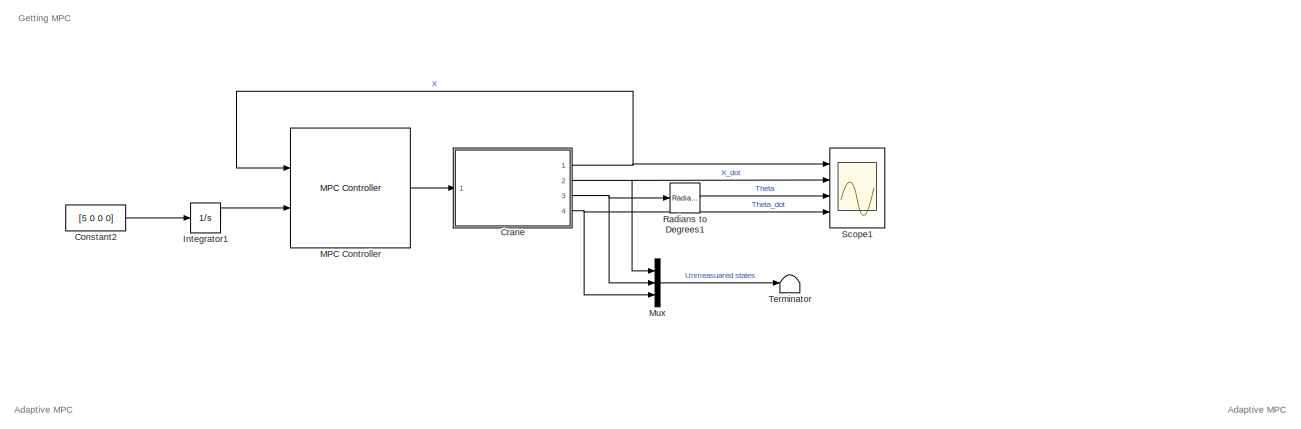
[diagram: root canvas - part 1/5, top center region]
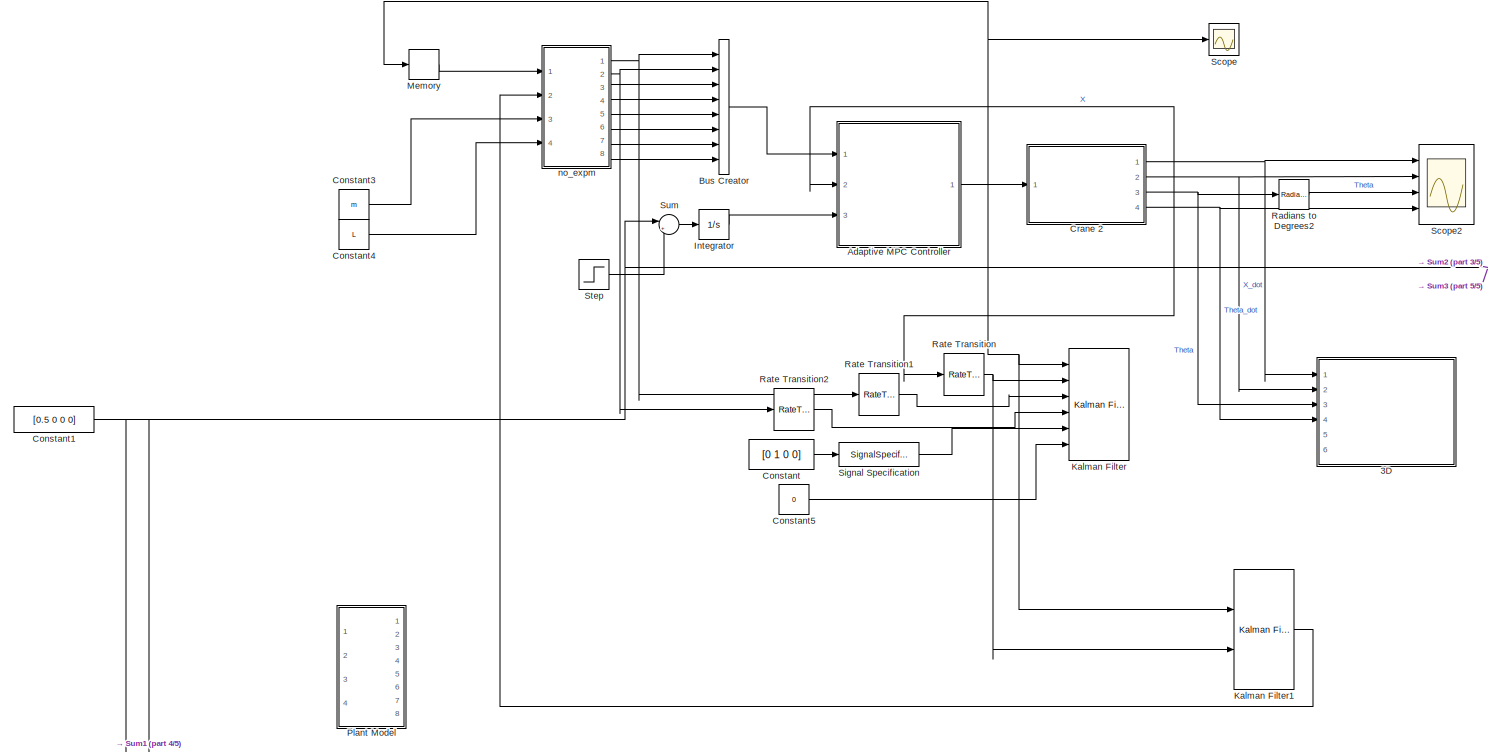
[diagram: root canvas - part 2/5, middle left region]
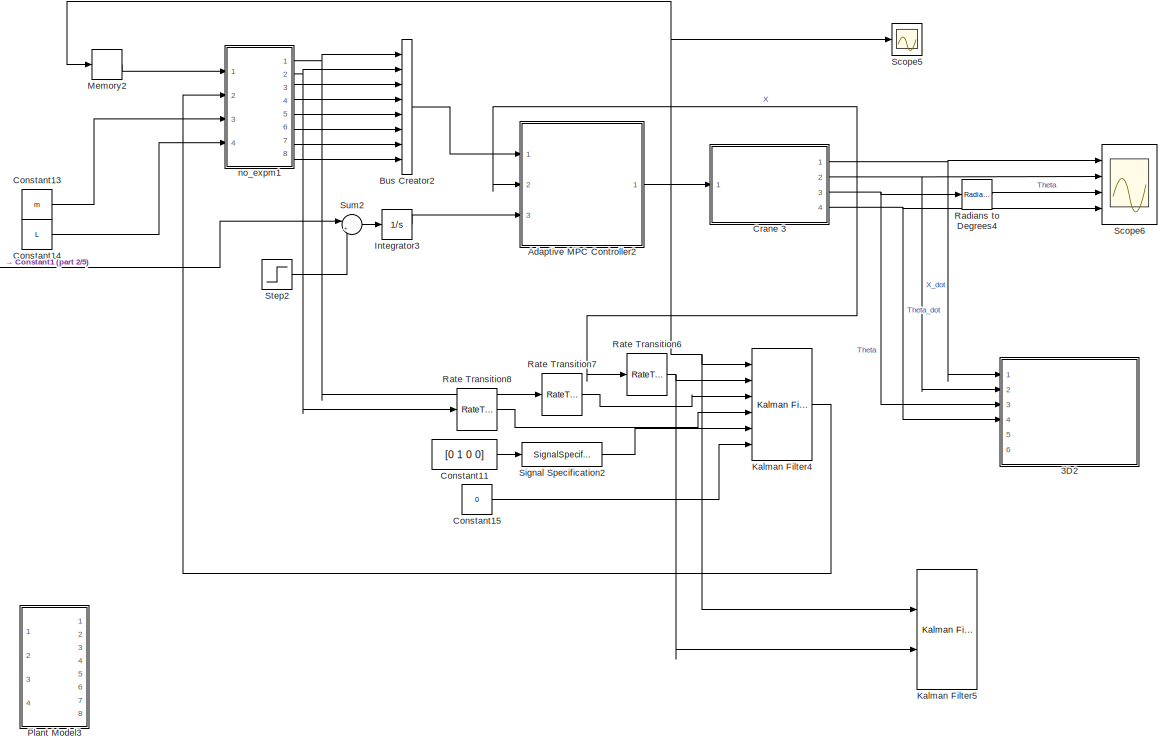
[diagram: root canvas - part 3/5, middle right region]
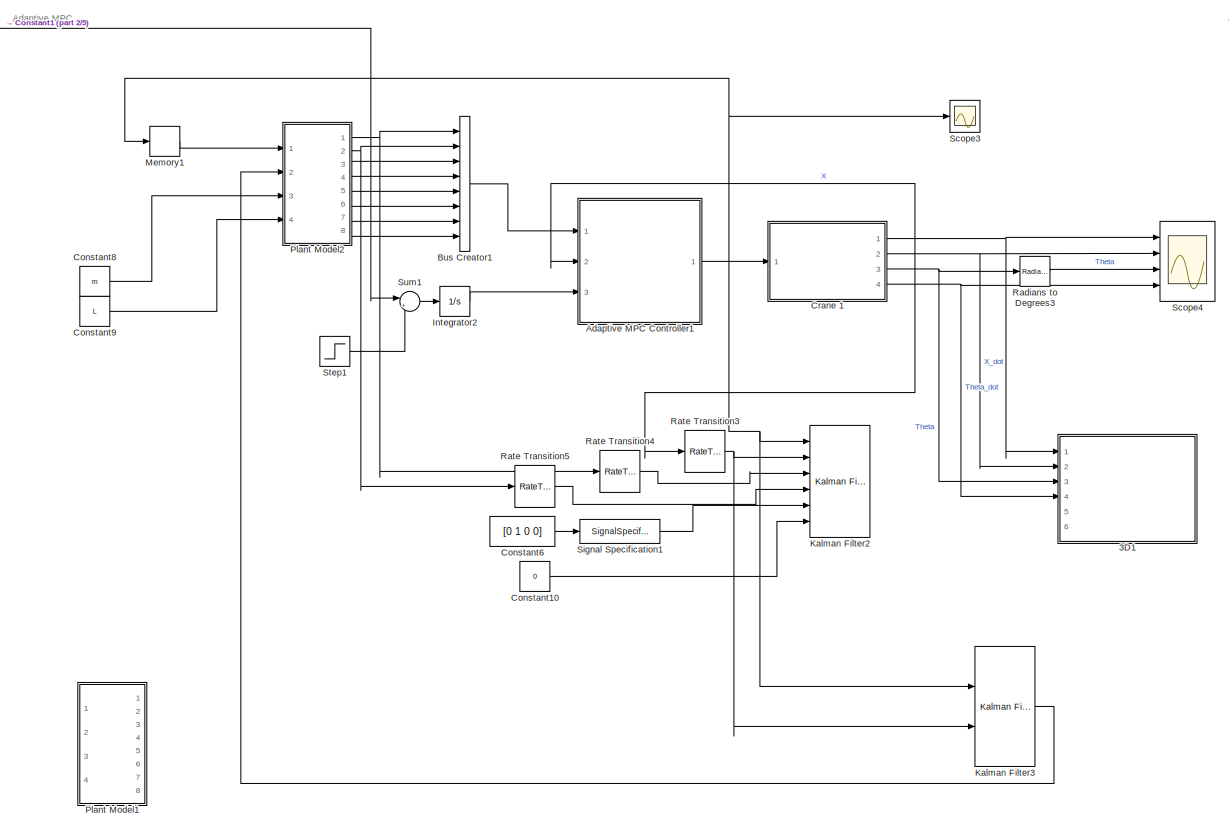
[diagram: root canvas - part 4/5, bottom left region]
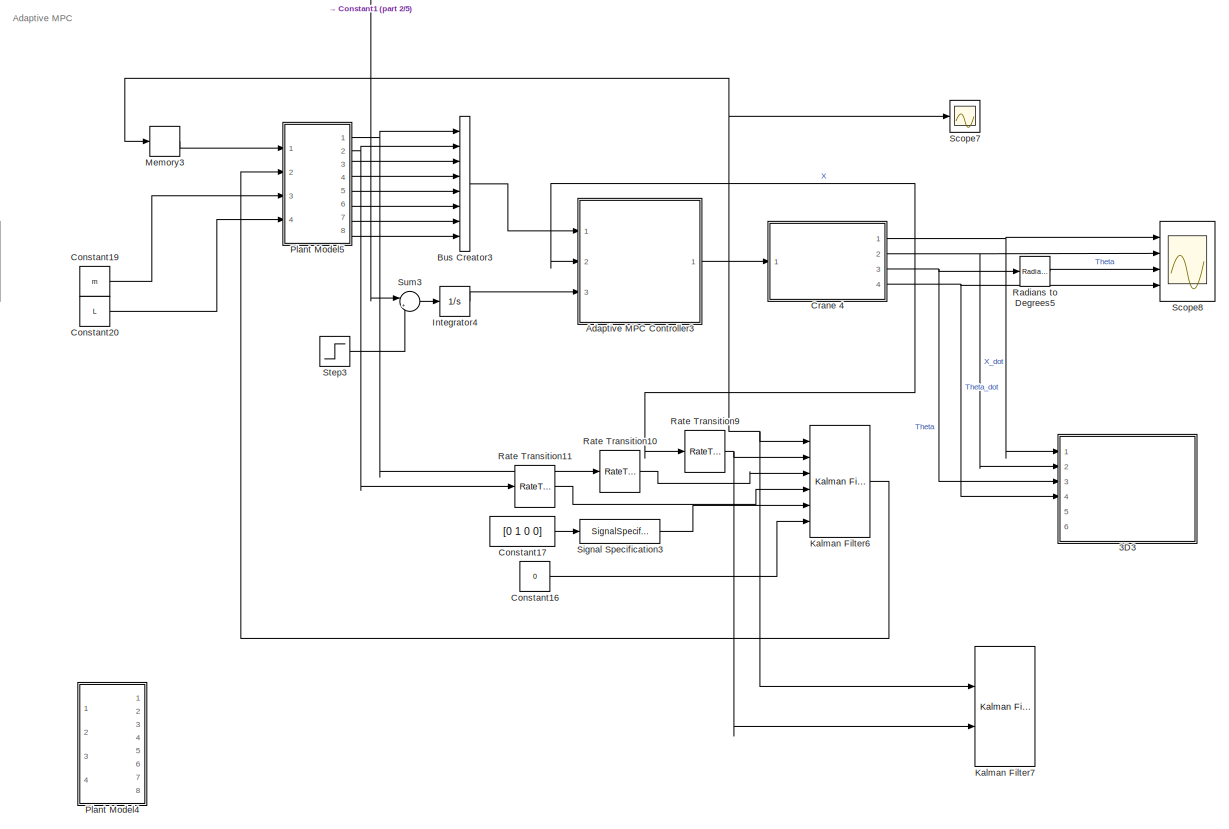
[diagram: root canvas - part 5/5, bottom right region]
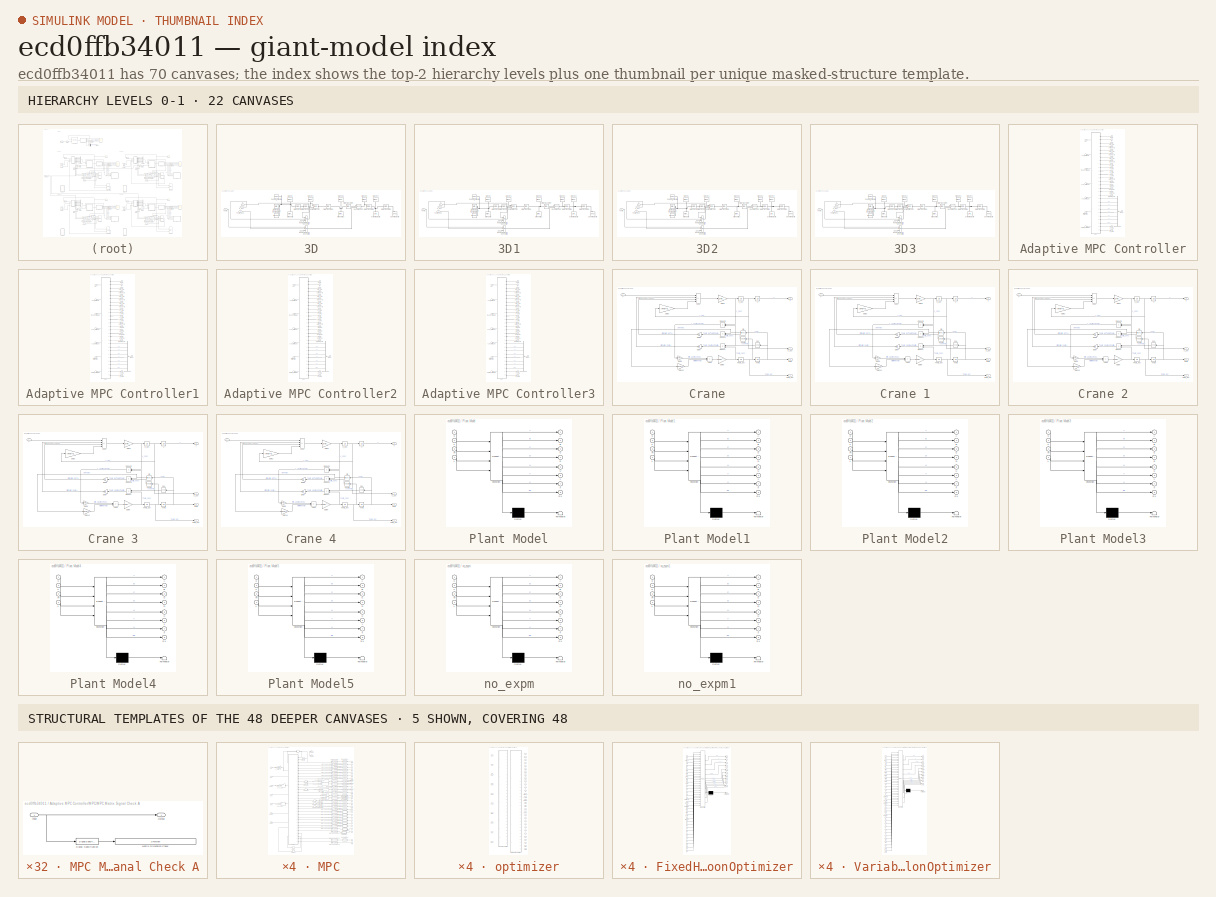
[diagram: thumbnail index - top-2 hierarchy levels (22 canvases) + 5 structural-template representatives of the remaining 48 canvases]
MODEL slx_ecd0ffb34011
KIND model
CONFIG AbsTol = auto
CONFIG EnableMultiTasking = off
CONFIG FixedStep = auto
CONFIG MaxStep = 0.1
CONFIG MinStep = auto
CONFIG RelTol = 1e-1
CONFIG SampleTimeConstraint = Unconstrained
CONFIG SolverName = VariableStepAuto
CONFIG StartTime = 0.0
CONFIG StopTime = 20
BLOCK [SubSystem] 3D
  Ports = [6]
  RequestExecContextInheritance = off
BLOCK [Reference] 3D/Brick Solid  REF=sm_lib/Body Elements/Brick Solid
  Ports = [0, 0, 0, 0, 0, 0, 1]
  SourceBlock = sm_lib/Body Elements/Brick Solid
  SourceProductName = Multibody
  SourceType = Brick Solid
BLOCK [Reference] 3D/Brick Solid1  REF=sm_lib/Body Elements/Brick Solid
  Ports = [0, 0, 0, 0, 0, 0, 1]
  SourceBlock = sm_lib/Body Elements/Brick Solid
  SourceProductName = Multibody
  SourceType = Brick Solid
BLOCK [Reference] 3D/Cylindrical Solid  REF=sm_lib/Body Elements/Cylindrical Solid
  NameLocation = right
  Ports = [0, 0, 0, 0, 0, 0, 1]
  SourceBlock = sm_lib/Body Elements/Cylindrical Solid
  SourceProductBaseCode = MS
  SourceType = Cylindrical Solid
BLOCK [Reference] 3D/Graphic  REF=sm_lib/Body Elements/Graphic
  Commented = on
  NameLocation = left
  Ports = [0, 0, 0, 0, 0, 0, 1]
  SourceBlock = sm_lib/Body Elements/Graphic
  SourceProductBaseCode = MS
  SourceType = Graphic
BLOCK [Reference] 3D/Graphic1  REF=sm_lib/Body Elements/Graphic
  Commented = on
  NameLocation = left
  Ports = [0, 0, 0, 0, 0, 0, 1]
  SourceBlock = sm_lib/Body Elements/Graphic
  SourceProductBaseCode = MS
  SourceType = Graphic
BLOCK [Reference] 3D/Graphic2  REF=sm_lib/Body Elements/Graphic
  Commented = on
  NameLocation = left
  Ports = [0, 0, 0, 0, 0, 0, 1]
  SourceBlock = sm_lib/Body Elements/Graphic
  SourceProductBaseCode = MS
  SourceType = Graphic
BLOCK [Reference] 3D/Graphic3  REF=sm_lib/Body Elements/Graphic
  Commented = on
  NameLocation = left
  Ports = [0, 0, 0, 0, 0, 0, 1]
  SourceBlock = sm_lib/Body Elements/Graphic
  SourceProductBaseCode = MS
  SourceType = Graphic
BLOCK [Reference] 3D/Graphic4  REF=sm_lib/Body Elements/Graphic
  Commented = on
  NameLocation = left
  Ports = [0, 0, 0, 0, 0, 0, 1]
  SourceBlock = sm_lib/Body Elements/Graphic
  SourceProductBaseCode = MS
  SourceType = Graphic
BLOCK [Reference] 3D/Mechanism Configuration  REF=sm_lib/Utilities/Mechanism
Configuration
  Ports = [0, 0, 0, 0, 0, 0, 1]
  SourceBlock = sm_lib/Utilities/Mechanism\nConfiguration
  SourceProductName = Multibody
  SourceType = Mechanism\nConfiguration
BLOCK [Reference] 3D/Prismatic Joint  REF=sm_lib/Joints/Prismatic
Joint
  Ports = [0, 0, 0, 0, 0, 2, 1]
  SourceBlock = sm_lib/Joints/Prismatic\nJoint
  SourceProductBaseCode = MS
  SourceType = Prismatic\nJoint
BLOCK [Reference] 3D/Revolute Joint  REF=sm_lib/Joints/Revolute Joint
  Ports = [0, 0, 0, 0, 0, 2, 1]
  SourceBlock = sm_lib/Joints/Revolute Joint
  SourceProductBaseCode = MS
  SourceType = Revolute Joint
BLOCK [Reference] 3D/Rigid Transform  REF=sm_lib/Frames and
Transforms/Rigid
Transform
  Ports = [0, 0, 0, 0, 0, 1, 1]
  SourceBlock = sm_lib/Frames and\nTransforms/Rigid\nTransform
  SourceProductName = Multibody
  SourceType = Rigid\nTransform
BLOCK [Reference] 3D/Rigid Transform1  REF=sm_lib/Frames and
Transforms/Rigid
Transform
  Ports = [0, 0, 0, 0, 0, 1, 1]
  SourceBlock = sm_lib/Frames and\nTransforms/Rigid\nTransform
  SourceProductName = Multibody
  SourceType = Rigid\nTransform
BLOCK [Reference] 3D/Rigid Transform2  REF=sm_lib/Frames and
Transforms/Rigid
Transform
  Ports = [0, 0, 0, 0, 0, 1, 1]
  SourceBlock = sm_lib/Frames and\nTransforms/Rigid\nTransform
  SourceProductName = Multibody
  SourceType = Rigid\nTransform
BLOCK [Reference] 3D/Rigid Transform3  REF=sm_lib/Frames and
Transforms/Rigid
Transform
  Ports = [0, 0, 0, 0, 0, 1, 1]
  SourceBlock = sm_lib/Frames and\nTransforms/Rigid\nTransform
  SourceProductName = Multibody
  SourceType = Rigid\nTransform
BLOCK [Reference] 3D/Rigid Transform4  REF=sm_lib/Frames and
Transforms/Rigid
Transform
  Ports = [0, 0, 0, 0, 0, 1, 1]
  SourceBlock = sm_lib/Frames and\nTransforms/Rigid\nTransform
  SourceProductName = Multibody
  SourceType = Rigid\nTransform
BLOCK [Reference] 3D/Rigid Transform5  REF=sm_lib/Frames and
Transforms/Rigid
Transform
  Ports = [0, 0, 0, 0, 0, 1, 1]
  SourceBlock = sm_lib/Frames and\nTransforms/Rigid\nTransform
  SourceProductName = Multibody
  SourceType = Rigid\nTransform
BLOCK [Reference] 3D/Simulink-PS Converter  REF=nesl_utility/Simulink-PS
Converter
  Ports = [3, 0, 0, 0, 0, 0, 1]
  SourceBlock = nesl_utility/Simulink-PS\nConverter
  SourceProductBaseCode = SS
  SourceType = Simulink-PS\nConverter
BLOCK [Reference] 3D/Simulink-PS Converter1  REF=nesl_utility/Simulink-PS
Converter
  Ports = [3, 0, 0, 0, 0, 0, 1]
  SourceBlock = nesl_utility/Simulink-PS\nConverter
  SourceProductBaseCode = SS
  SourceType = Simulink-PS\nConverter
BLOCK [Reference] 3D/Solver Configuration  REF=nesl_utility/Solver
Configuration
  Ports = [0, 0, 0, 0, 0, 0, 1]
  SourceBlock = nesl_utility/Solver\nConfiguration
  SourceProductName = Utilities
  SourceType = Solver\nConfiguration
BLOCK [Reference] 3D/Spherical Solid  REF=sm_lib/Body Elements/Spherical Solid
  NameLocation = right
  Ports = [0, 0, 0, 0, 0, 0, 1]
  SourceBlock = sm_lib/Body Elements/Spherical Solid
  SourceProductBaseCode = MS
  SourceType = Spherical Solid
BLOCK [Inport] 3D/Theta
  Port = 3
BLOCK [Inport] 3D/Theta_dot
  Port = 4
BLOCK [Reference] 3D/World Frame  REF=sm_lib/Frames and
Transforms/World Frame
  Ports = [0, 0, 0, 0, 0, 0, 1]
  SourceBlock = sm_lib/Frames and\nTransforms/World Frame
  SourceProductName = Multibody
  SourceType = World Frame
BLOCK [Inport] 3D/X
BLOCK [Inport] 3D/X_dot
  Port = 2
BLOCK [Inport] 3D/input1
  Port = 6
BLOCK [Inport] 3D/input2
  Port = 5
BLOCK [SubSystem] 3D1
  Ports = [6]
  RequestExecContextInheritance = off
BLOCK [Reference] 3D1/Brick Solid  REF=sm_lib/Body Elements/Brick Solid
  Ports = [0, 0, 0, 0, 0, 0, 1]
  SourceBlock = sm_lib/Body Elements/Brick Solid
  SourceProductName = Multibody
  SourceType = Brick Solid
BLOCK [Reference] 3D1/Brick Solid1  REF=sm_lib/Body Elements/Brick Solid
  Ports = [0, 0, 0, 0, 0, 0, 1]
  SourceBlock = sm_lib/Body Elements/Brick Solid
  SourceProductName = Multibody
  SourceType = Brick Solid
BLOCK [Reference] 3D1/Cylindrical Solid  REF=sm_lib/Body Elements/Cylindrical Solid
  NameLocation = right
  Ports = [0, 0, 0, 0, 0, 0, 1]
  SourceBlock = sm_lib/Body Elements/Cylindrical Solid
  SourceProductBaseCode = MS
  SourceType = Cylindrical Solid
BLOCK [Reference] 3D1/Graphic  REF=sm_lib/Body Elements/Graphic
  Commented = on
  NameLocation = left
  Ports = [0, 0, 0, 0, 0, 0, 1]
  SourceBlock = sm_lib/Body Elements/Graphic
  SourceProductBaseCode = MS
  SourceType = Graphic
BLOCK [Reference] 3D1/Graphic1  REF=sm_lib/Body Elements/Graphic
  Commented = on
  NameLocation = left
  Ports = [0, 0, 0, 0, 0, 0, 1]
  SourceBlock = sm_lib/Body Elements/Graphic
  SourceProductBaseCode = MS
  SourceType = Graphic
BLOCK [Reference] 3D1/Graphic2  REF=sm_lib/Body Elements/Graphic
  Commented = on
  NameLocation = left
  Ports = [0, 0, 0, 0, 0, 0, 1]
  SourceBlock = sm_lib/Body Elements/Graphic
  SourceProductBaseCode = MS
  SourceType = Graphic
BLOCK [Reference] 3D1/Graphic3  REF=sm_lib/Body Elements/Graphic
  Commented = on
  NameLocation = left
  Ports = [0, 0, 0, 0, 0, 0, 1]
  SourceBlock = sm_lib/Body Elements/Graphic
  SourceProductBaseCode = MS
  SourceType = Graphic
BLOCK [Reference] 3D1/Graphic4  REF=sm_lib/Body Elements/Graphic
  Commented = on
  NameLocation = left
  Ports = [0, 0, 0, 0, 0, 0, 1]
  SourceBlock = sm_lib/Body Elements/Graphic
  SourceProductBaseCode = MS
  SourceType = Graphic
BLOCK [Reference] 3D1/Mechanism Configuration  REF=sm_lib/Utilities/Mechanism
Configuration
  Ports = [0, 0, 0, 0, 0, 0, 1]
  SourceBlock = sm_lib/Utilities/Mechanism\nConfiguration
  SourceProductName = Multibody
  SourceType = Mechanism\nConfiguration
BLOCK [Reference] 3D1/Prismatic Joint  REF=sm_lib/Joints/Prismatic
Joint
  Ports = [0, 0, 0, 0, 0, 2, 1]
  SourceBlock = sm_lib/Joints/Prismatic\nJoint
  SourceProductBaseCode = MS
  SourceType = Prismatic\nJoint
BLOCK [Reference] 3D1/Revolute Joint  REF=sm_lib/Joints/Revolute Joint
  Ports = [0, 0, 0, 0, 0, 2, 1]
  SourceBlock = sm_lib/Joints/Revolute Joint
  SourceProductBaseCode = MS
  SourceType = Revolute Joint
BLOCK [Reference] 3D1/Rigid Transform  REF=sm_lib/Frames and
Transforms/Rigid
Transform
  Ports = [0, 0, 0, 0, 0, 1, 1]
  SourceBlock = sm_lib/Frames and\nTransforms/Rigid\nTransform
  SourceProductName = Multibody
  SourceType = Rigid\nTransform
BLOCK [Reference] 3D1/Rigid Transform1  REF=sm_lib/Frames and
Transforms/Rigid
Transform
  Ports = [0, 0, 0, 0, 0, 1, 1]
  SourceBlock = sm_lib/Frames and\nTransforms/Rigid\nTransform
  SourceProductName = Multibody
  SourceType = Rigid\nTransform
BLOCK [Reference] 3D1/Rigid Transform2  REF=sm_lib/Frames and
Transforms/Rigid
Transform
  Ports = [0, 0, 0, 0, 0, 1, 1]
  SourceBlock = sm_lib/Frames and\nTransforms/Rigid\nTransform
  SourceProductName = Multibody
  SourceType = Rigid\nTransform
BLOCK [Reference] 3D1/Rigid Transform3  REF=sm_lib/Frames and
Transforms/Rigid
Transform
  Ports = [0, 0, 0, 0, 0, 1, 1]
  SourceBlock = sm_lib/Frames and\nTransforms/Rigid\nTransform
  SourceProductName = Multibody
  SourceType = Rigid\nTransform
BLOCK [Reference] 3D1/Rigid Transform4  REF=sm_lib/Frames and
Transforms/Rigid
Transform
  Ports = [0, 0, 0, 0, 0, 1, 1]
  SourceBlock = sm_lib/Frames and\nTransforms/Rigid\nTransform
  SourceProductName = Multibody
  SourceType = Rigid\nTransform
BLOCK [Reference] 3D1/Rigid Transform5  REF=sm_lib/Frames and
Transforms/Rigid
Transform
  Ports = [0, 0, 0, 0, 0, 1, 1]
  SourceBlock = sm_lib/Frames and\nTransforms/Rigid\nTransform
  SourceProductName = Multibody
  SourceType = Rigid\nTransform
BLOCK [Reference] 3D1/Simulink-PS Converter  REF=nesl_utility/Simulink-PS
Converter
  Ports = [3, 0, 0, 0, 0, 0, 1]
  SourceBlock = nesl_utility/Simulink-PS\nConverter
  SourceProductBaseCode = SS
  SourceType = Simulink-PS\nConverter
BLOCK [Reference] 3D1/Simulink-PS Converter1  REF=nesl_utility/Simulink-PS
Converter
  Ports = [3, 0, 0, 0, 0, 0, 1]
  SourceBlock = nesl_utility/Simulink-PS\nConverter
  SourceProductBaseCode = SS
  SourceType = Simulink-PS\nConverter
BLOCK [Reference] 3D1/Solver Configuration  REF=nesl_utility/Solver
Configuration
  Ports = [0, 0, 0, 0, 0, 0, 1]
  SourceBlock = nesl_utility/Solver\nConfiguration
  SourceProductName = Utilities
  SourceType = Solver\nConfiguration
BLOCK [Reference] 3D1/Spherical Solid  REF=sm_lib/Body Elements/Spherical Solid
  NameLocation = right
  Ports = [0, 0, 0, 0, 0, 0, 1]
  SourceBlock = sm_lib/Body Elements/Spherical Solid
  SourceProductBaseCode = MS
  SourceType = Spherical Solid
BLOCK [Inport] 3D1/Theta
  Port = 3
BLOCK [Inport] 3D1/Theta_dot
  Port = 4
BLOCK [Reference] 3D1/World Frame  REF=sm_lib/Frames and
Transforms/World Frame
  Ports = [0, 0, 0, 0, 0, 0, 1]
  SourceBlock = sm_lib/Frames and\nTransforms/World Frame
  SourceProductName = Multibody
  SourceType = World Frame
BLOCK [Inport] 3D1/X
BLOCK [Inport] 3D1/X_dot
  Port = 2
BLOCK [Inport] 3D1/input1
  Port = 6
BLOCK [Inport] 3D1/input2
  Port = 5
BLOCK [SubSystem] 3D2
  Ports = [6]
  RequestExecContextInheritance = off
BLOCK [Reference] 3D2/Brick Solid  REF=sm_lib/Body Elements/Brick Solid
  Ports = [0, 0, 0, 0, 0, 0, 1]
  SourceBlock = sm_lib/Body Elements/Brick Solid
  SourceProductName = Multibody
  SourceType = Brick Solid
BLOCK [Reference] 3D2/Brick Solid1  REF=sm_lib/Body Elements/Brick Solid
  Ports = [0, 0, 0, 0, 0, 0, 1]
  SourceBlock = sm_lib/Body Elements/Brick Solid
  SourceProductName = Multibody
  SourceType = Brick Solid
BLOCK [Reference] 3D2/Cylindrical Solid  REF=sm_lib/Body Elements/Cylindrical Solid
  NameLocation = right
  Ports = [0, 0, 0, 0, 0, 0, 1]
  SourceBlock = sm_lib/Body Elements/Cylindrical Solid
  SourceProductBaseCode = MS
  SourceType = Cylindrical Solid
BLOCK [Reference] 3D2/Graphic  REF=sm_lib/Body Elements/Graphic
  Commented = on
  NameLocation = left
  Ports = [0, 0, 0, 0, 0, 0, 1]
  SourceBlock = sm_lib/Body Elements/Graphic
  SourceProductBaseCode = MS
  SourceType = Graphic
BLOCK [Reference] 3D2/Graphic1  REF=sm_lib/Body Elements/Graphic
  Commented = on
  NameLocation = left
  Ports = [0, 0, 0, 0, 0, 0, 1]
  SourceBlock = sm_lib/Body Elements/Graphic
  SourceProductBaseCode = MS
  SourceType = Graphic
BLOCK [Reference] 3D2/Graphic2  REF=sm_lib/Body Elements/Graphic
  Commented = on
  NameLocation = left
  Ports = [0, 0, 0, 0, 0, 0, 1]
  SourceBlock = sm_lib/Body Elements/Graphic
  SourceProductBaseCode = MS
  SourceType = Graphic
BLOCK [Reference] 3D2/Graphic3  REF=sm_lib/Body Elements/Graphic
  Commented = on
  NameLocation = left
  Ports = [0, 0, 0, 0, 0, 0, 1]
  SourceBlock = sm_lib/Body Elements/Graphic
  SourceProductBaseCode = MS
  SourceType = Graphic
BLOCK [Reference] 3D2/Graphic4  REF=sm_lib/Body Elements/Graphic
  Commented = on
  NameLocation = left
  Ports = [0, 0, 0, 0, 0, 0, 1]
  SourceBlock = sm_lib/Body Elements/Graphic
  SourceProductBaseCode = MS
  SourceType = Graphic
BLOCK [Reference] 3D2/Mechanism Configuration  REF=sm_lib/Utilities/Mechanism
Configuration
  Ports = [0, 0, 0, 0, 0, 0, 1]
  SourceBlock = sm_lib/Utilities/Mechanism\nConfiguration
  SourceProductName = Multibody
  SourceType = Mechanism\nConfiguration
BLOCK [Reference] 3D2/Prismatic Joint  REF=sm_lib/Joints/Prismatic
Joint
  Ports = [0, 0, 0, 0, 0, 2, 1]
  SourceBlock = sm_lib/Joints/Prismatic\nJoint
  SourceProductBaseCode = MS
  SourceType = Prismatic\nJoint
BLOCK [Reference] 3D2/Revolute Joint  REF=sm_lib/Joints/Revolute Joint
  Ports = [0, 0, 0, 0, 0, 2, 1]
  SourceBlock = sm_lib/Joints/Revolute Joint
  SourceProductBaseCode = MS
  SourceType = Revolute Joint
BLOCK [Reference] 3D2/Rigid Transform  REF=sm_lib/Frames and
Transforms/Rigid
Transform
  Ports = [0, 0, 0, 0, 0, 1, 1]
  SourceBlock = sm_lib/Frames and\nTransforms/Rigid\nTransform
  SourceProductName = Multibody
  SourceType = Rigid\nTransform
BLOCK [Reference] 3D2/Rigid Transform1  REF=sm_lib/Frames and
Transforms/Rigid
Transform
  Ports = [0, 0, 0, 0, 0, 1, 1]
  SourceBlock = sm_lib/Frames and\nTransforms/Rigid\nTransform
  SourceProductName = Multibody
  SourceType = Rigid\nTransform
BLOCK [Reference] 3D2/Rigid Transform2  REF=sm_lib/Frames and
Transforms/Rigid
Transform
  Ports = [0, 0, 0, 0, 0, 1, 1]
  SourceBlock = sm_lib/Frames and\nTransforms/Rigid\nTransform
  SourceProductName = Multibody
  SourceType = Rigid\nTransform
BLOCK [Reference] 3D2/Rigid Transform3  REF=sm_lib/Frames and
Transforms/Rigid
Transform
  Ports = [0, 0, 0, 0, 0, 1, 1]
  SourceBlock = sm_lib/Frames and\nTransforms/Rigid\nTransform
  SourceProductName = Multibody
  SourceType = Rigid\nTransform
BLOCK [Reference] 3D2/Rigid Transform4  REF=sm_lib/Frames and
Transforms/Rigid
Transform
  Ports = [0, 0, 0, 0, 0, 1, 1]
  SourceBlock = sm_lib/Frames and\nTransforms/Rigid\nTransform
  SourceProductName = Multibody
  SourceType = Rigid\nTransform
BLOCK [Reference] 3D2/Rigid Transform5  REF=sm_lib/Frames and
Transforms/Rigid
Transform
  Ports = [0, 0, 0, 0, 0, 1, 1]
  SourceBlock = sm_lib/Frames and\nTransforms/Rigid\nTransform
  SourceProductName = Multibody
  SourceType = Rigid\nTransform
BLOCK [Reference] 3D2/Simulink-PS Converter  REF=nesl_utility/Simulink-PS
Converter
  Ports = [3, 0, 0, 0, 0, 0, 1]
  SourceBlock = nesl_utility/Simulink-PS\nConverter
  SourceProductBaseCode = SS
  SourceType = Simulink-PS\nConverter
BLOCK [Reference] 3D2/Simulink-PS Converter1  REF=nesl_utility/Simulink-PS
Converter
  Ports = [3, 0, 0, 0, 0, 0, 1]
  SourceBlock = nesl_utility/Simulink-PS\nConverter
  SourceProductBaseCode = SS
  SourceType = Simulink-PS\nConverter
BLOCK [Reference] 3D2/Solver Configuration  REF=nesl_utility/Solver
Configuration
  Ports = [0, 0, 0, 0, 0, 0, 1]
  SourceBlock = nesl_utility/Solver\nConfiguration
  SourceProductName = Utilities
  SourceType = Solver\nConfiguration
BLOCK [Reference] 3D2/Spherical Solid  REF=sm_lib/Body Elements/Spherical Solid
  NameLocation = right
  Ports = [0, 0, 0, 0, 0, 0, 1]
  SourceBlock = sm_lib/Body Elements/Spherical Solid
  SourceProductBaseCode = MS
  SourceType = Spherical Solid
BLOCK [Inport] 3D2/Theta
  Port = 3
BLOCK [Inport] 3D2/Theta_dot
  Port = 4
BLOCK [Reference] 3D2/World Frame  REF=sm_lib/Frames and
Transforms/World Frame
  Ports = [0, 0, 0, 0, 0, 0, 1]
  SourceBlock = sm_lib/Frames and\nTransforms/World Frame
  SourceProductName = Multibody
  SourceType = World Frame
BLOCK [Inport] 3D2/X
BLOCK [Inport] 3D2/X_dot
  Port = 2
BLOCK [Inport] 3D2/input1
  Port = 6
BLOCK [Inport] 3D2/input2
  Port = 5
BLOCK [SubSystem] 3D3
  Ports = [6]
  RequestExecContextInheritance = off
BLOCK [Reference] 3D3/Brick Solid  REF=sm_lib/Body Elements/Brick Solid
  Ports = [0, 0, 0, 0, 0, 0, 1]
  SourceBlock = sm_lib/Body Elements/Brick Solid
  SourceProductName = Multibody
  SourceType = Brick Solid
BLOCK [Reference] 3D3/Brick Solid1  REF=sm_lib/Body Elements/Brick Solid
  Ports = [0, 0, 0, 0, 0, 0, 1]
  SourceBlock = sm_lib/Body Elements/Brick Solid
  SourceProductName = Multibody
  SourceType = Brick Solid
BLOCK [Reference] 3D3/Cylindrical Solid  REF=sm_lib/Body Elements/Cylindrical Solid
  NameLocation = right
  Ports = [0, 0, 0, 0, 0, 0, 1]
  SourceBlock = sm_lib/Body Elements/Cylindrical Solid
  SourceProductBaseCode = MS
  SourceType = Cylindrical Solid
BLOCK [Reference] 3D3/Graphic  REF=sm_lib/Body Elements/Graphic
  Commented = on
  NameLocation = left
  Ports = [0, 0, 0, 0, 0, 0, 1]
  SourceBlock = sm_lib/Body Elements/Graphic
  SourceProductBaseCode = MS
  SourceType = Graphic
BLOCK [Reference] 3D3/Graphic1  REF=sm_lib/Body Elements/Graphic
  Commented = on
  NameLocation = left
  Ports = [0, 0, 0, 0, 0, 0, 1]
  SourceBlock = sm_lib/Body Elements/Graphic
  SourceProductBaseCode = MS
  SourceType = Graphic
BLOCK [Reference] 3D3/Graphic2  REF=sm_lib/Body Elements/Graphic
  Commented = on
  NameLocation = left
  Ports = [0, 0, 0, 0, 0, 0, 1]
  SourceBlock = sm_lib/Body Elements/Graphic
  SourceProductBaseCode = MS
  SourceType = Graphic
BLOCK [Reference] 3D3/Graphic3  REF=sm_lib/Body Elements/Graphic
  Commented = on
  NameLocation = left
  Ports = [0, 0, 0, 0, 0, 0, 1]
  SourceBlock = sm_lib/Body Elements/Graphic
  SourceProductBaseCode = MS
  SourceType = Graphic
BLOCK [Reference] 3D3/Graphic4  REF=sm_lib/Body Elements/Graphic
  Commented = on
  NameLocation = left
  Ports = [0, 0, 0, 0, 0, 0, 1]
  SourceBlock = sm_lib/Body Elements/Graphic
  SourceProductBaseCode = MS
  SourceType = Graphic
BLOCK [Reference] 3D3/Mechanism Configuration  REF=sm_lib/Utilities/Mechanism
Configuration
  Ports = [0, 0, 0, 0, 0, 0, 1]
  SourceBlock = sm_lib/Utilities/Mechanism\nConfiguration
  SourceProductName = Multibody
  SourceType = Mechanism\nConfiguration
BLOCK [Reference] 3D3/Prismatic Joint  REF=sm_lib/Joints/Prismatic
Joint
  Ports = [0, 0, 0, 0, 0, 2, 1]
  SourceBlock = sm_lib/Joints/Prismatic\nJoint
  SourceProductBaseCode = MS
  SourceType = Prismatic\nJoint
BLOCK [Reference] 3D3/Revolute Joint  REF=sm_lib/Joints/Revolute Joint
  Ports = [0, 0, 0, 0, 0, 2, 1]
  SourceBlock = sm_lib/Joints/Revolute Joint
  SourceProductBaseCode = MS
  SourceType = Revolute Joint
BLOCK [Reference] 3D3/Rigid Transform  REF=sm_lib/Frames and
Transforms/Rigid
Transform
  Ports = [0, 0, 0, 0, 0, 1, 1]
  SourceBlock = sm_lib/Frames and\nTransforms/Rigid\nTransform
  SourceProductName = Multibody
  SourceType = Rigid\nTransform
BLOCK [Reference] 3D3/Rigid Transform1  REF=sm_lib/Frames and
Transforms/Rigid
Transform
  Ports = [0, 0, 0, 0, 0, 1, 1]
  SourceBlock = sm_lib/Frames and\nTransforms/Rigid\nTransform
  SourceProductName = Multibody
  SourceType = Rigid\nTransform
BLOCK [Reference] 3D3/Rigid Transform2  REF=sm_lib/Frames and
Transforms/Rigid
Transform
  Ports = [0, 0, 0, 0, 0, 1, 1]
  SourceBlock = sm_lib/Frames and\nTransforms/Rigid\nTransform
  SourceProductName = Multibody
  SourceType = Rigid\nTransform
BLOCK [Reference] 3D3/Rigid Transform3  REF=sm_lib/Frames and
Transforms/Rigid
Transform
  Ports = [0, 0, 0, 0, 0, 1, 1]
  SourceBlock = sm_lib/Frames and\nTransforms/Rigid\nTransform
  SourceProductName = Multibody
  SourceType = Rigid\nTransform
BLOCK [Reference] 3D3/Rigid Transform4  REF=sm_lib/Frames and
Transforms/Rigid
Transform
  Ports = [0, 0, 0, 0, 0, 1, 1]
  SourceBlock = sm_lib/Frames and\nTransforms/Rigid\nTransform
  SourceProductName = Multibody
  SourceType = Rigid\nTransform
BLOCK [Reference] 3D3/Rigid Transform5  REF=sm_lib/Frames and
Transforms/Rigid
Transform
  Ports = [0, 0, 0, 0, 0, 1, 1]
  SourceBlock = sm_lib/Frames and\nTransforms/Rigid\nTransform
  SourceProductName = Multibody
  SourceType = Rigid\nTransform
BLOCK [Reference] 3D3/Simulink-PS Converter  REF=nesl_utility/Simulink-PS
Converter
  Ports = [3, 0, 0, 0, 0, 0, 1]
  SourceBlock = nesl_utility/Simulink-PS\nConverter
  SourceProductBaseCode = SS
  SourceType = Simulink-PS\nConverter
BLOCK [Reference] 3D3/Simulink-PS Converter1  REF=nesl_utility/Simulink-PS
Converter
  Ports = [3, 0, 0, 0, 0, 0, 1]
  SourceBlock = nesl_utility/Simulink-PS\nConverter
  SourceProductBaseCode = SS
  SourceType = Simulink-PS\nConverter
BLOCK [Reference] 3D3/Solver Configuration  REF=nesl_utility/Solver
Configuration
  Ports = [0, 0, 0, 0, 0, 0, 1]
  SourceBlock = nesl_utility/Solver\nConfiguration
  SourceProductName = Utilities
  SourceType = Solver\nConfiguration
BLOCK [Reference] 3D3/Spherical Solid  REF=sm_lib/Body Elements/Spherical Solid
  NameLocation = right
  Ports = [0, 0, 0, 0, 0, 0, 1]
  SourceBlock = sm_lib/Body Elements/Spherical Solid
  SourceProductBaseCode = MS
  SourceType = Spherical Solid
BLOCK [Inport] 3D3/Theta
  Port = 3
BLOCK [Inport] 3D3/Theta_dot
  Port = 4
BLOCK [Reference] 3D3/World Frame  REF=sm_lib/Frames and
Transforms/World Frame
  Ports = [0, 0, 0, 0, 0, 0, 1]
  SourceBlock = sm_lib/Frames and\nTransforms/World Frame
  SourceProductName = Multibody
  SourceType = World Frame
BLOCK [Inport] 3D3/X
BLOCK [Inport] 3D3/X_dot
  Port = 2
BLOCK [Inport] 3D3/input1
  Port = 6
BLOCK [Inport] 3D3/input2
  Port = 5
BLOCK [SubSystem] Adaptive MPC Controller
  AncestorBlock = mpclib/Adaptive MPC Controller
  InitFcn = ampcblock_InitFcn
  Ports = [3, 1]
  RequestExecContextInheritance = off
  SCDEnableBlockLinearizationSpecification = on
  StartFcn = ampcblock_StartFcn
BLOCK [BusSelector] Adaptive MPC Controller/BusSelector
  OutputSignals = A,B,C,D,U,Y,X,DX
  Ports = [1, 8]
BLOCK [Constant] Adaptive MPC Controller/E_zero
  OutDataTypeStr = BlockDataType
  Value = zeros(1,1)
  VectorParams1D = off
BLOCK [Constant] Adaptive MPC Controller/F_zero
  OutDataTypeStr = BlockDataType
  Value = zeros(1,4)
  VectorParams1D = off
BLOCK [Constant] Adaptive MPC Controller/G_zero
  OutDataTypeStr = BlockDataType
  Value = zeros(1,1)
  VectorParams1D = off
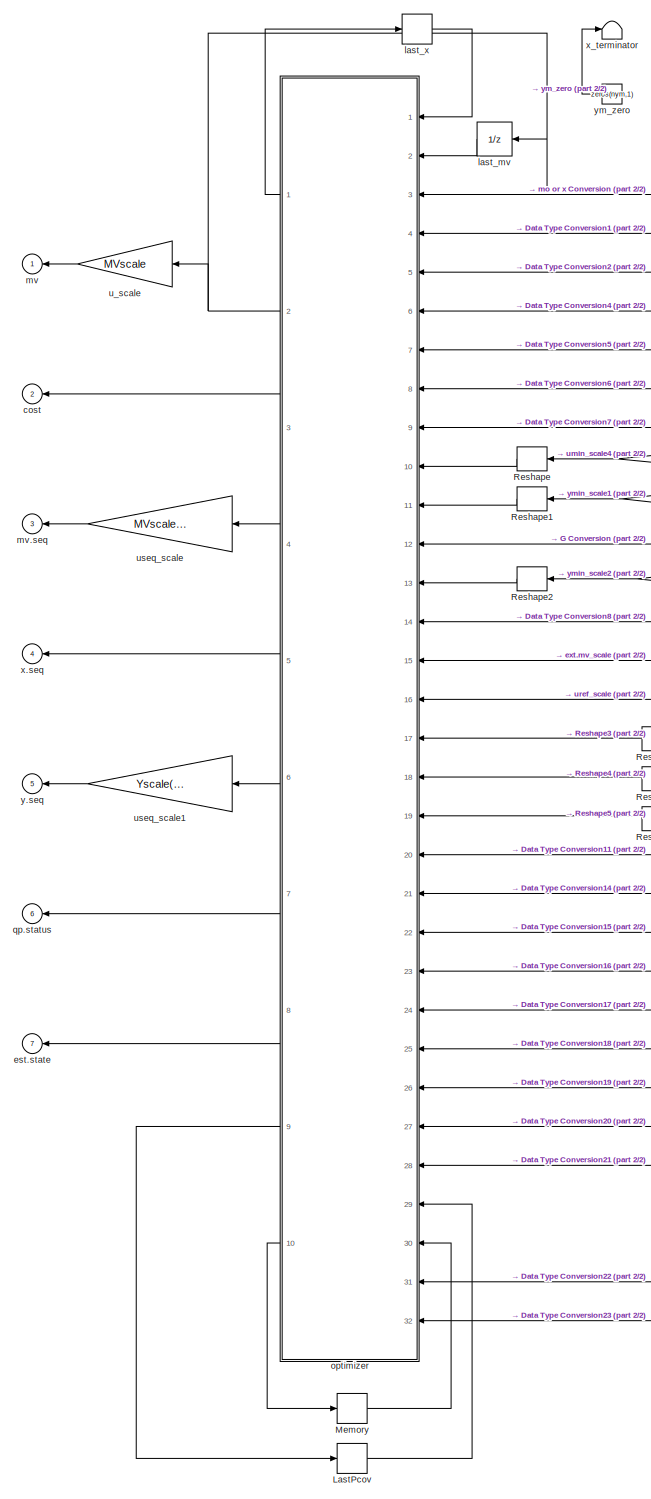
[diagram: Adaptive MPC Controller/MPC - part 1/2, left side, full height]
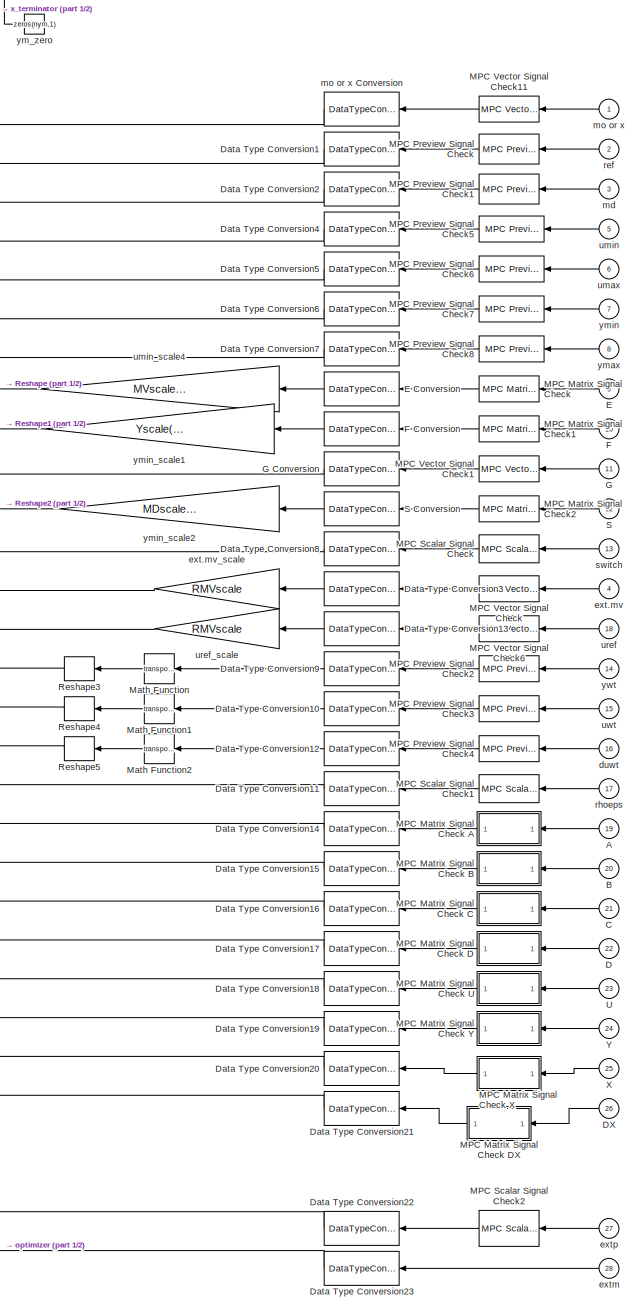
[diagram: Adaptive MPC Controller/MPC - part 2/2, right side, full height]
BLOCK [SubSystem] Adaptive MPC Controller/MPC
  Ports = [28, 7]
  RequestExecContextInheritance = off
BLOCK [Inport] Adaptive MPC Controller/MPC/A
  Port = 19
BLOCK [Inport] Adaptive MPC Controller/MPC/B
  Port = 20
BLOCK [Inport] Adaptive MPC Controller/MPC/C
  Port = 21
BLOCK [Inport] Adaptive MPC Controller/MPC/D
  Port = 22
BLOCK [Inport] Adaptive MPC Controller/MPC/DX
  Port = 26
BLOCK [DataTypeConversion] Adaptive MPC Controller/MPC/Data Type Conversion1
  OutDataTypeStr = BlockDataType
  RndMeth = Floor
  SaturateOnIntegerOverflow = off
BLOCK [DataTypeConversion] Adaptive MPC Controller/MPC/Data Type Conversion10
  OutDataTypeStr = BlockDataType
  RndMeth = Floor
  SaturateOnIntegerOverflow = off
BLOCK [DataTypeConversion] Adaptive MPC Controller/MPC/Data Type Conversion11
  OutDataTypeStr = BlockDataType
  RndMeth = Floor
  SaturateOnIntegerOverflow = off
BLOCK [DataTypeConversion] Adaptive MPC Controller/MPC/Data Type Conversion12
  OutDataTypeStr = BlockDataType
  RndMeth = Floor
  SaturateOnIntegerOverflow = off
BLOCK [DataTypeConversion] Adaptive MPC Controller/MPC/Data Type Conversion13
  OutDataTypeStr = BlockDataType
  RndMeth = Floor
  SaturateOnIntegerOverflow = off
BLOCK [DataTypeConversion] Adaptive MPC Controller/MPC/Data Type Conversion14
  OutDataTypeStr = BlockDataType
  RndMeth = Floor
  SaturateOnIntegerOverflow = off
BLOCK [DataTypeConversion] Adaptive MPC Controller/MPC/Data Type Conversion15
  OutDataTypeStr = BlockDataType
  RndMeth = Floor
  SaturateOnIntegerOverflow = off
BLOCK [DataTypeConversion] Adaptive MPC Controller/MPC/Data Type Conversion16
  OutDataTypeStr = BlockDataType
  RndMeth = Floor
  SaturateOnIntegerOverflow = off
BLOCK [DataTypeConversion] Adaptive MPC Controller/MPC/Data Type Conversion17
  OutDataTypeStr = BlockDataType
  RndMeth = Floor
  SaturateOnIntegerOverflow = off
BLOCK [DataTypeConversion] Adaptive MPC Controller/MPC/Data Type Conversion18
  OutDataTypeStr = BlockDataType
  RndMeth = Floor
  SaturateOnIntegerOverflow = off
BLOCK [DataTypeConversion] Adaptive MPC Controller/MPC/Data Type Conversion19
  OutDataTypeStr = BlockDataType
  RndMeth = Floor
  SaturateOnIntegerOverflow = off
BLOCK [DataTypeConversion] Adaptive MPC Controller/MPC/Data Type Conversion2
  OutDataTypeStr = BlockDataType
  RndMeth = Floor
  SaturateOnIntegerOverflow = off
BLOCK [DataTypeConversion] Adaptive MPC Controller/MPC/Data Type Conversion20
  OutDataTypeStr = BlockDataType
  RndMeth = Floor
  SaturateOnIntegerOverflow = off
BLOCK [DataTypeConversion] Adaptive MPC Controller/MPC/Data Type Conversion21
  OutDataTypeStr = BlockDataType
  RndMeth = Floor
  SaturateOnIntegerOverflow = off
BLOCK [DataTypeConversion] Adaptive MPC Controller/MPC/Data Type Conversion22
  OutDataTypeStr = BlockDataType
  RndMeth = Floor
  SaturateOnIntegerOverflow = off
BLOCK [DataTypeConversion] Adaptive MPC Controller/MPC/Data Type Conversion23
  OutDataTypeStr = BlockDataType
  RndMeth = Floor
  SaturateOnIntegerOverflow = off
BLOCK [DataTypeConversion] Adaptive MPC Controller/MPC/Data Type Conversion3
  OutDataTypeStr = BlockDataType
  RndMeth = Floor
  SaturateOnIntegerOverflow = off
BLOCK [DataTypeConversion] Adaptive MPC Controller/MPC/Data Type Conversion4
  OutDataTypeStr = BlockDataType
  RndMeth = Floor
  SaturateOnIntegerOverflow = off
BLOCK [DataTypeConversion] Adaptive MPC Controller/MPC/Data Type Conversion5
  OutDataTypeStr = BlockDataType
  RndMeth = Floor
  SaturateOnIntegerOverflow = off
BLOCK [DataTypeConversion] Adaptive MPC Controller/MPC/Data Type Conversion6
  OutDataTypeStr = BlockDataType
  RndMeth = Floor
  SaturateOnIntegerOverflow = off
BLOCK [DataTypeConversion] Adaptive MPC Controller/MPC/Data Type Conversion7
  OutDataTypeStr = BlockDataType
  RndMeth = Floor
  SaturateOnIntegerOverflow = off
BLOCK [DataTypeConversion] Adaptive MPC Controller/MPC/Data Type Conversion8
  OutDataTypeStr = BlockDataType
  RndMeth = Floor
  SaturateOnIntegerOverflow = off
BLOCK [DataTypeConversion] Adaptive MPC Controller/MPC/Data Type Conversion9
  OutDataTypeStr = BlockDataType
  RndMeth = Floor
  SaturateOnIntegerOverflow = off
BLOCK [Inport] Adaptive MPC Controller/MPC/E
  Port = 9
BLOCK [DataTypeConversion] Adaptive MPC Controller/MPC/E Conversion
  OutDataTypeStr = BlockDataType
  RndMeth = Floor
  SaturateOnIntegerOverflow = off
BLOCK [Inport] Adaptive MPC Controller/MPC/F
  Port = 10
BLOCK [DataTypeConversion] Adaptive MPC Controller/MPC/F Conversion
  OutDataTypeStr = BlockDataType
  RndMeth = Floor
  SaturateOnIntegerOverflow = off
BLOCK [Inport] Adaptive MPC Controller/MPC/G
  Port = 11
BLOCK [DataTypeConversion] Adaptive MPC Controller/MPC/G Conversion
  OutDataTypeStr = BlockDataType
  RndMeth = Floor
  SaturateOnIntegerOverflow = off
BLOCK [Memory] Adaptive MPC Controller/MPC/LastPcov
  InheritSampleTime = on
  InitialCondition = lastPcov
  LinearizeAsDelay = on
BLOCK [Reference] Adaptive MPC Controller/MPC/MPC Matrix Signal Check  REF=mpcsigdimcheck_private/MPC Matrix Signal Check
  Ports = [1, 1]
  SourceBlock = mpcsigdimcheck_private/MPC Matrix Signal Check
  SourceProductBaseCode = MP
  SourceType = MPCSignalDimensionCheck
BLOCK [SubSystem] Adaptive MPC Controller/MPC/MPC Matrix Signal Check A
  AncestorBlock = mpcsigdimcheck_private/MPC Matrix Signal Check
  Ports = [1, 1]
  RequestExecContextInheritance = off
BLOCK [Inport] Adaptive MPC Controller/MPC/MPC Matrix Signal Check A/Input
BLOCK [S-Function] Adaptive MPC Controller/MPC/MPC Matrix Signal Check A/Matrix Dimension Check
  EnableBusSupport = off
  FunctionName = mpcMatrixSignalCheck
  Parameters = blockname, signalname, nrow, ncol, nsteps, isltv
  Ports = [1]
  SFcnIsStateOwnerBlock = off
  SFunctionDeploymentMode = off
BLOCK [Outport] Adaptive MPC Controller/MPC/MPC Matrix Signal Check A/Output
  VectorParamsAs1DForOutWhenUnconnected = off
BLOCK [SignalSpecification] Adaptive MPC Controller/MPC/MPC Matrix Signal Check A/Signal Specification
  Dimensions = [4 4]
BLOCK [SubSystem] Adaptive MPC Controller/MPC/MPC Matrix Signal Check B
  AncestorBlock = mpcsigdimcheck_private/MPC Matrix Signal Check
  Ports = [1, 1]
  RequestExecContextInheritance = off
BLOCK [Inport] Adaptive MPC Controller/MPC/MPC Matrix Signal Check B/Input
BLOCK [S-Function] Adaptive MPC Controller/MPC/MPC Matrix Signal Check B/Matrix Dimension Check
  EnableBusSupport = off
  FunctionName = mpcMatrixSignalCheck
  Parameters = blockname, signalname, nrow, ncol, nsteps, isltv
  Ports = [1]
  SFcnIsStateOwnerBlock = off
  SFunctionDeploymentMode = off
BLOCK [Outport] Adaptive MPC Controller/MPC/MPC Matrix Signal Check B/Output
  VectorParamsAs1DForOutWhenUnconnected = off
BLOCK [SignalSpecification] Adaptive MPC Controller/MPC/MPC Matrix Signal Check B/Signal Specification
  Dimensions = [4 1]
BLOCK [SubSystem] Adaptive MPC Controller/MPC/MPC Matrix Signal Check C
  AncestorBlock = mpcsigdimcheck_private/MPC Matrix Signal Check
  Ports = [1, 1]
  RequestExecContextInheritance = off
BLOCK [Inport] Adaptive MPC Controller/MPC/MPC Matrix Signal Check C/Input
BLOCK [S-Function] Adaptive MPC Controller/MPC/MPC Matrix Signal Check C/Matrix Dimension Check
  EnableBusSupport = off
  FunctionName = mpcMatrixSignalCheck
  Parameters = blockname, signalname, nrow, ncol, nsteps, isltv
  Ports = [1]
  SFcnIsStateOwnerBlock = off
  SFunctionDeploymentMode = off
BLOCK [Outport] Adaptive MPC Controller/MPC/MPC Matrix Signal Check C/Output
  VectorParamsAs1DForOutWhenUnconnected = off
BLOCK [SignalSpecification] Adaptive MPC Controller/MPC/MPC Matrix Signal Check C/Signal Specification
  Dimensions = [4 4]
BLOCK [SubSystem] Adaptive MPC Controller/MPC/MPC Matrix Signal Check D
  AncestorBlock = mpcsigdimcheck_private/MPC Matrix Signal Check
  Ports = [1, 1]
  RequestExecContextInheritance = off
BLOCK [Inport] Adaptive MPC Controller/MPC/MPC Matrix Signal Check D/Input
BLOCK [S-Function] Adaptive MPC Controller/MPC/MPC Matrix Signal Check D/Matrix Dimension Check
  EnableBusSupport = off
  FunctionName = mpcMatrixSignalCheck
  Parameters = blockname, signalname, nrow, ncol, nsteps, isltv
  Ports = [1]
  SFcnIsStateOwnerBlock = off
  SFunctionDeploymentMode = off
BLOCK [Outport] Adaptive MPC Controller/MPC/MPC Matrix Signal Check D/Output
  VectorParamsAs1DForOutWhenUnconnected = off
BLOCK [SignalSpecification] Adaptive MPC Controller/MPC/MPC Matrix Signal Check D/Signal Specification
  Dimensions = [4 1]
BLOCK [SubSystem] Adaptive MPC Controller/MPC/MPC Matrix Signal Check DX
  AncestorBlock = mpcsigdimcheck_private/MPC Matrix Signal Check
  Ports = [1, 1]
  RequestExecContextInheritance = off
BLOCK [Inport] Adaptive MPC Controller/MPC/MPC Matrix Signal Check DX/Input
BLOCK [S-Function] Adaptive MPC Controller/MPC/MPC Matrix Signal Check DX/Matrix Dimension Check
  EnableBusSupport = off
  FunctionName = mpcMatrixSignalCheck
  Parameters = blockname, signalname, nrow, ncol, nsteps, isltv
  Ports = [1]
  SFcnIsStateOwnerBlock = off
  SFunctionDeploymentMode = off
BLOCK [Outport] Adaptive MPC Controller/MPC/MPC Matrix Signal Check DX/Output
  VectorParamsAs1DForOutWhenUnconnected = off
BLOCK [SignalSpecification] Adaptive MPC Controller/MPC/MPC Matrix Signal Check DX/Signal Specification
  Dimensions = [4 1]
BLOCK [SubSystem] Adaptive MPC Controller/MPC/MPC Matrix Signal Check U
  AncestorBlock = mpcsigdimcheck_private/MPC Matrix Signal Check
  Ports = [1, 1]
  RequestExecContextInheritance = off
BLOCK [Inport] Adaptive MPC Controller/MPC/MPC Matrix Signal Check U/Input
BLOCK [S-Function] Adaptive MPC Controller/MPC/MPC Matrix Signal Check U/Matrix Dimension Check
  EnableBusSupport = off
  FunctionName = mpcMatrixSignalCheck
  Parameters = blockname, signalname, nrow, ncol, nsteps, isltv
  Ports = [1]
  SFcnIsStateOwnerBlock = off
  SFunctionDeploymentMode = off
BLOCK [Outport] Adaptive MPC Controller/MPC/MPC Matrix Signal Check U/Output
  VectorParamsAs1DForOutWhenUnconnected = off
BLOCK [SignalSpecification] Adaptive MPC Controller/MPC/MPC Matrix Signal Check U/Signal Specification
  Dimensions = [1 1]
BLOCK [SubSystem] Adaptive MPC Controller/MPC/MPC Matrix Signal Check X
  AncestorBlock = mpcsigdimcheck_private/MPC Matrix Signal Check
  Ports = [1, 1]
  RequestExecContextInheritance = off
BLOCK [Inport] Adaptive MPC Controller/MPC/MPC Matrix Signal Check X/Input
BLOCK [S-Function] Adaptive MPC Controller/MPC/MPC Matrix Signal Check X/Matrix Dimension Check
  EnableBusSupport = off
  FunctionName = mpcMatrixSignalCheck
  Parameters = blockname, signalname, nrow, ncol, nsteps, isltv
  Ports = [1]
  SFcnIsStateOwnerBlock = off
  SFunctionDeploymentMode = off
BLOCK [Outport] Adaptive MPC Controller/MPC/MPC Matrix Signal Check X/Output
  VectorParamsAs1DForOutWhenUnconnected = off
BLOCK [SignalSpecification] Adaptive MPC Controller/MPC/MPC Matrix Signal Check X/Signal Specification
  Dimensions = [4 1]
BLOCK [SubSystem] Adaptive MPC Controller/MPC/MPC Matrix Signal Check Y
  AncestorBlock = mpcsigdimcheck_private/MPC Matrix Signal Check
  Ports = [1, 1]
  RequestExecContextInheritance = off
BLOCK [Inport] Adaptive MPC Controller/MPC/MPC Matrix Signal Check Y/Input
BLOCK [S-Function] Adaptive MPC Controller/MPC/MPC Matrix Signal Check Y/Matrix Dimension Check
  EnableBusSupport = off
  FunctionName = mpcMatrixSignalCheck
  Parameters = blockname, signalname, nrow, ncol, nsteps, isltv
  Ports = [1]
  SFcnIsStateOwnerBlock = off
  SFunctionDeploymentMode = off
BLOCK [Outport] Adaptive MPC Controller/MPC/MPC Matrix Signal Check Y/Output
  VectorParamsAs1DForOutWhenUnconnected = off
BLOCK [SignalSpecification] Adaptive MPC Controller/MPC/MPC Matrix Signal Check Y/Signal Specification
  Dimensions = [4 1]
BLOCK [Reference] Adaptive MPC Controller/MPC/MPC Matrix Signal Check1  REF=mpcsigdimcheck_private/MPC Matrix Signal Check
  Ports = [1, 1]
  SourceBlock = mpcsigdimcheck_private/MPC Matrix Signal Check
  SourceProductBaseCode = MP
  SourceType = MPCSignalDimensionCheck
BLOCK [Reference] Adaptive MPC Controller/MPC/MPC Matrix Signal Check2  REF=mpcsigdimcheck_private/MPC Matrix Signal Check
  Ports = [1, 1]
  SourceBlock = mpcsigdimcheck_private/MPC Matrix Signal Check
  SourceProductBaseCode = MP
  SourceType = MPCSignalDimensionCheck
BLOCK [Reference] Adaptive MPC Controller/MPC/MPC Preview Signal Check  REF=mpcsigdimcheck_private/MPC Preview Signal Check
  Ports = [1, 1]
  SourceBlock = mpcsigdimcheck_private/MPC Preview Signal Check
  SourceProductBaseCode = MP
  SourceType = MPCSignalDimensionCheck
BLOCK [Reference] Adaptive MPC Controller/MPC/MPC Preview Signal Check1  REF=mpcsigdimcheck_private/MPC Preview Signal Check
  Ports = [1, 1]
  SourceBlock = mpcsigdimcheck_private/MPC Preview Signal Check
  SourceProductBaseCode = MP
  SourceType = MPCSignalDimensionCheck
BLOCK [Reference] Adaptive MPC Controller/MPC/MPC Preview Signal Check2  REF=mpcsigdimcheck_private/MPC Preview Signal Check
  Ports = [1, 1]
  SourceBlock = mpcsigdimcheck_private/MPC Preview Signal Check
  SourceProductBaseCode = MP
  SourceType = MPCSignalDimensionCheck
BLOCK [Reference] Adaptive MPC Controller/MPC/MPC Preview Signal Check3  REF=mpcsigdimcheck_private/MPC Preview Signal Check
  Ports = [1, 1]
  SourceBlock = mpcsigdimcheck_private/MPC Preview Signal Check
  SourceProductBaseCode = MP
  SourceType = MPCSignalDimensionCheck
BLOCK [Reference] Adaptive MPC Controller/MPC/MPC Preview Signal Check4  REF=mpcsigdimcheck_private/MPC Preview Signal Check
  Ports = [1, 1]
  SourceBlock = mpcsigdimcheck_private/MPC Preview Signal Check
  SourceProductBaseCode = MP
  SourceType = MPCSignalDimensionCheck
BLOCK [Reference] Adaptive MPC Controller/MPC/MPC Preview Signal Check5  REF=mpcsigdimcheck_private/MPC Preview Signal Check
  Ports = [1, 1]
  SourceBlock = mpcsigdimcheck_private/MPC Preview Signal Check
  SourceProductBaseCode = MP
  SourceType = MPCSignalDimensionCheck
BLOCK [Reference] Adaptive MPC Controller/MPC/MPC Preview Signal Check6  REF=mpcsigdimcheck_private/MPC Preview Signal Check
  Ports = [1, 1]
  SourceBlock = mpcsigdimcheck_private/MPC Preview Signal Check
  SourceProductBaseCode = MP
  SourceType = MPCSignalDimensionCheck
BLOCK [Reference] Adaptive MPC Controller/MPC/MPC Preview Signal Check7  REF=mpcsigdimcheck_private/MPC Preview Signal Check
  Ports = [1, 1]
  SourceBlock = mpcsigdimcheck_private/MPC Preview Signal Check
  SourceProductBaseCode = MP
  SourceType = MPCSignalDimensionCheck
BLOCK [Reference] Adaptive MPC Controller/MPC/MPC Preview Signal Check8  REF=mpcsigdimcheck_private/MPC Preview Signal Check
  Ports = [1, 1]
  SourceBlock = mpcsigdimcheck_private/MPC Preview Signal Check
  SourceProductBaseCode = MP
  SourceType = MPCSignalDimensionCheck
BLOCK [Reference] Adaptive MPC Controller/MPC/MPC Scalar Signal Check  REF=mpcsigdimcheck_private/MPC Scalar Signal Check
  Ports = [1, 1]
  SourceBlock = mpcsigdimcheck_private/MPC Scalar Signal Check
  SourceProductBaseCode = MP
  SourceType = MPCSignalDimensionCheck
BLOCK [Reference] Adaptive MPC Controller/MPC/MPC Scalar Signal Check1  REF=mpcsigdimcheck_private/MPC Scalar Signal Check
  Ports = [1, 1]
  SourceBlock = mpcsigdimcheck_private/MPC Scalar Signal Check
  SourceProductBaseCode = MP
  SourceType = MPCSignalDimensionCheck
BLOCK [Reference] Adaptive MPC Controller/MPC/MPC Scalar Signal Check2  REF=mpcsigdimcheck_private/MPC Scalar Signal Check
  Ports = [1, 1]
  SourceBlock = mpcsigdimcheck_private/MPC Scalar Signal Check
  SourceProductBaseCode = MP
  SourceType = MPCSignalDimensionCheck
BLOCK [Reference] Adaptive MPC Controller/MPC/MPC Vector Signal Check  REF=mpcsigdimcheck_private/MPC Vector Signal Check
  Ports = [1, 1]
  SourceBlock = mpcsigdimcheck_private/MPC Vector Signal Check
  SourceProductBaseCode = MP
  SourceType = MPCSignalDimensionCheck
BLOCK [Reference] Adaptive MPC Controller/MPC/MPC Vector Signal Check1  REF=mpcsigdimcheck_private/MPC Vector Signal Check
  Ports = [1, 1]
  SourceBlock = mpcsigdimcheck_private/MPC Vector Signal Check
  SourceProductBaseCode = MP
  SourceType = MPCSignalDimensionCheck
BLOCK [Reference] Adaptive MPC Controller/MPC/MPC Vector Signal Check11  REF=mpcsigdimcheck_private/MPC Vector Signal Check
  Ports = [1, 1]
  SourceBlock = mpcsigdimcheck_private/MPC Vector Signal Check
  SourceProductBaseCode = MP
  SourceType = MPCSignalDimensionCheck
BLOCK [Reference] Adaptive MPC Controller/MPC/MPC Vector Signal Check6  REF=mpcsigdimcheck_private/MPC Vector Signal Check
  Ports = [1, 1]
  SourceBlock = mpcsigdimcheck_private/MPC Vector Signal Check
  SourceProductBaseCode = MP
  SourceType = MPCSignalDimensionCheck
BLOCK [Math] Adaptive MPC Controller/MPC/Math Function
  Operator = transpose
  Ports = [1, 1]
  SignedPower = on
BLOCK [Math] Adaptive MPC Controller/MPC/Math Function1
  Operator = transpose
  Ports = [1, 1]
  SignedPower = on
BLOCK [Math] Adaptive MPC Controller/MPC/Math Function2
  Operator = transpose
  Ports = [1, 1]
  SignedPower = on
BLOCK [Memory] Adaptive MPC Controller/MPC/Memory
  InheritSampleTime = on
  InitialCondition = iA
  LinearizeAsDelay = on
BLOCK [Reshape] Adaptive MPC Controller/MPC/Reshape
  OutputDimensionality = Customize
  OutputDimensions = double([max(nCC,1),nu])
  Ports = [1, 1]
BLOCK [Reshape] Adaptive MPC Controller/MPC/Reshape1
  OutputDimensionality = Customize
  OutputDimensions = double([max(nCC,1),ny])
  Ports = [1, 1]
BLOCK [Reshape] Adaptive MPC Controller/MPC/Reshape2
  OutputDimensionality = Customize
  OutputDimensions = double([max(nCC,1),max(nv-1,1)])
  Ports = [1, 1]
BLOCK [Reshape] Adaptive MPC Controller/MPC/Reshape3
  OutputDimensionality = Column vector (2-D)
  Ports = [1, 1]
BLOCK [Reshape] Adaptive MPC Controller/MPC/Reshape4
  OutputDimensionality = Column vector (2-D)
  Ports = [1, 1]
BLOCK [Reshape] Adaptive MPC Controller/MPC/Reshape5
  OutputDimensionality = Column vector (2-D)
  Ports = [1, 1]
BLOCK [Inport] Adaptive MPC Controller/MPC/S
  Port = 12
BLOCK [DataTypeConversion] Adaptive MPC Controller/MPC/S Conversion
  OutDataTypeStr = BlockDataType
  RndMeth = Floor
  SaturateOnIntegerOverflow = off
BLOCK [Inport] Adaptive MPC Controller/MPC/U
  Port = 23
BLOCK [Inport] Adaptive MPC Controller/MPC/X
  Port = 25
BLOCK [Inport] Adaptive MPC Controller/MPC/Y
  Port = 24
BLOCK [Outport] Adaptive MPC Controller/MPC/cost
  OutDataTypeStr = BlockDataType
  Port = 2
  VectorParamsAs1DForOutWhenUnconnected = off
BLOCK [Inport] Adaptive MPC Controller/MPC/duwt
  Port = 16
BLOCK [Outport] Adaptive MPC Controller/MPC/est.state
  OutDataTypeStr = BlockDataType
  Port = 7
  VectorParamsAs1DForOutWhenUnconnected = off
BLOCK [Inport] Adaptive MPC Controller/MPC/ext.mv
  Port = 4
BLOCK [Gain] Adaptive MPC Controller/MPC/ext.mv_scale
  Gain = RMVscale
  SampleTime = ts
BLOCK [Inport] Adaptive MPC Controller/MPC/extm
  Port = 28
BLOCK [Inport] Adaptive MPC Controller/MPC/extp
  Port = 27
BLOCK [UnitDelay] Adaptive MPC Controller/MPC/last_mv
  HasFrameUpgradeWarning = on
  InitialCondition = lastu+uoff
  SampleTime = ts
BLOCK [Memory] Adaptive MPC Controller/MPC/last_x
  InheritSampleTime = on
  InitialCondition = lastx+xoff
  LinearizeAsDelay = on
BLOCK [Inport] Adaptive MPC Controller/MPC/md
  Port = 3
BLOCK [Inport] Adaptive MPC Controller/MPC/mo or x
BLOCK [DataTypeConversion] Adaptive MPC Controller/MPC/mo or x Conversion
  OutDataTypeStr = BlockDataType
  RndMeth = Floor
  SaturateOnIntegerOverflow = off
BLOCK [Outport] Adaptive MPC Controller/MPC/mv
  OutDataTypeStr = BlockDataType
  VectorParamsAs1DForOutWhenUnconnected = off
BLOCK [Outport] Adaptive MPC Controller/MPC/mv.seq
  OutDataTypeStr = BlockDataType
  Port = 3
  VectorParamsAs1DForOutWhenUnconnected = off
BLOCK [SubSystem] Adaptive MPC Controller/MPC/optimizer
  LabelModeActiveChoice = FixedHorizon
  Ports = [32, 10]
  RequestExecContextInheritance = off
  Variant = on
  VariantControl = Variant1
  VariantControlMode = label
BLOCK [Outport] Adaptive MPC Controller/MPC/optimizer/ Pk1
  Port = 9
  VectorParamsAs1DForOutWhenUnconnected = off
BLOCK [Outport] Adaptive MPC Controller/MPC/optimizer/ cost
  Port = 3
  VectorParamsAs1DForOutWhenUnconnected = off
BLOCK [Outport] Adaptive MPC Controller/MPC/optimizer/ iAout
  Port = 10
  VectorParamsAs1DForOutWhenUnconnected = off
BLOCK [Outport] Adaptive MPC Controller/MPC/optimizer/ status
  Port = 7
  VectorParamsAs1DForOutWhenUnconnected = off
BLOCK [Outport] Adaptive MPC Controller/MPC/optimizer/ u
  Port = 2
  VectorParamsAs1DForOutWhenUnconnected = off
BLOCK [Outport] Adaptive MPC Controller/MPC/optimizer/ useq
  Port = 4
  VectorParamsAs1DForOutWhenUnconnected = off
BLOCK [Outport] Adaptive MPC Controller/MPC/optimizer/ xest
  Port = 8
  VectorParamsAs1DForOutWhenUnconnected = off
BLOCK [Outport] Adaptive MPC Controller/MPC/optimizer/ xk1
  VectorParamsAs1DForOutWhenUnconnected = off
BLOCK [Outport] Adaptive MPC Controller/MPC/optimizer/ xseq
  Port = 5
  VectorParamsAs1DForOutWhenUnconnected = off
BLOCK [Outport] Adaptive MPC Controller/MPC/optimizer/ yseq
  Port = 6
  VectorParamsAs1DForOutWhenUnconnected = off
BLOCK [Inport] Adaptive MPC Controller/MPC/optimizer/DX 
  Port = 28
BLOCK [Inport] Adaptive MPC Controller/MPC/optimizer/E 
  Port = 10
BLOCK [Inport] Adaptive MPC Controller/MPC/optimizer/F 
  Port = 11
BLOCK [SubSystem] Adaptive MPC Controller/MPC/optimizer/FixedHorizonOptimizer
  ErrorFcn = Stateflow.Translate.translate
  PermitHierarchicalResolution = ExplicitOnly
  Ports = [30, 10]
  RequestExecContextInheritance = off
  SFBlockType = MATLAB Function
  VariantControl = FixedHorizon
BLOCK [Demux] Adaptive MPC Controller/MPC/optimizer/FixedHorizonOptimizer/ Demux 
  Outputs = 1
  Ports = [1, 1]
BLOCK [S-Function] Adaptive MPC Controller/MPC/optimizer/FixedHorizonOptimizer/ SFunction 
  EnableBusSupport = on
  FunctionName = sf_sfun
  Parameters = A,ASOptions,Ac,B,C,Cid,CustomEstimation,CustomSolver,CustomSolverCodeGen,D,Did,Ecc,Fcc,Gcc,H,Hinv,Hv,I1,IPOptions,Jm,Kr,Ku1,Kut,Kv,Kx,Linv,Mlim,Mrows,Mu1,Mv,Mx,RMDscale,RMVscale,RYscale,Scc,Su1,SuJm,Sx,Uscale,UseActiveSetSolver,UseSuboptimalSolution,Wdu,Wu,Wy,Yscale,degrees,enable_value,isLTV,isQP,m,mdindex,mvindex,myindex,myoff,nCC,no_cc,no_duwt,no_md,no_mv,no_ref,no_rhoeps,no_switch,no_umax,no_u...<+196ch>  <repeated x4 — deduplicated; at blocks: SFunction>
  PortCounts = [30 11]
  Ports = [30, 11]
  SFcnIsStateOwnerBlock = off
  SFunctionDeploymentMode = off
  Tag = Stateflow S-Function 1
BLOCK [Terminator] Adaptive MPC Controller/MPC/optimizer/FixedHorizonOptimizer/ Terminator 
BLOCK [Inport] Adaptive MPC Controller/MPC/optimizer/FixedHorizonOptimizer/DX
  Port = 28
BLOCK [Inport] Adaptive MPC Controller/MPC/optimizer/FixedHorizonOptimizer/E
  Port = 10
BLOCK [Inport] Adaptive MPC Controller/MPC/optimizer/FixedHorizonOptimizer/F
  Port = 11
BLOCK [Inport] Adaptive MPC Controller/MPC/optimizer/FixedHorizonOptimizer/G
  Port = 12
BLOCK [Inport] Adaptive MPC Controller/MPC/optimizer/FixedHorizonOptimizer/MVtarget
  Port = 16
BLOCK [Inport] Adaptive MPC Controller/MPC/optimizer/FixedHorizonOptimizer/Pk
  Port = 29
BLOCK [Outport] Adaptive MPC Controller/MPC/optimizer/FixedHorizonOptimizer/Pk1
  Port = 9
  VectorParamsAs1DForOutWhenUnconnected = off
BLOCK [Inport] Adaptive MPC Controller/MPC/optimizer/FixedHorizonOptimizer/S
  Port = 13
BLOCK [Inport] Adaptive MPC Controller/MPC/optimizer/FixedHorizonOptimizer/U
  Port = 25
BLOCK [Inport] Adaptive MPC Controller/MPC/optimizer/FixedHorizonOptimizer/X
  Port = 27
BLOCK [Inport] Adaptive MPC Controller/MPC/optimizer/FixedHorizonOptimizer/Y
  Port = 26
BLOCK [Inport] Adaptive MPC Controller/MPC/optimizer/FixedHorizonOptimizer/a
  Port = 21
BLOCK [Inport] Adaptive MPC Controller/MPC/optimizer/FixedHorizonOptimizer/b
  Port = 22
BLOCK [Inport] Adaptive MPC Controller/MPC/optimizer/FixedHorizonOptimizer/c
  Port = 23
BLOCK [Outport] Adaptive MPC Controller/MPC/optimizer/FixedHorizonOptimizer/cost
  Port = 3
  VectorParamsAs1DForOutWhenUnconnected = off
BLOCK [Inport] Adaptive MPC Controller/MPC/optimizer/FixedHorizonOptimizer/d
  Port = 24
BLOCK [Inport] Adaptive MPC Controller/MPC/optimizer/FixedHorizonOptimizer/duwt
  Port = 19
BLOCK [Inport] Adaptive MPC Controller/MPC/optimizer/FixedHorizonOptimizer/ext_mv
  Port = 15
BLOCK [Inport] Adaptive MPC Controller/MPC/optimizer/FixedHorizonOptimizer/iA
  Port = 30
BLOCK [Outport] Adaptive MPC Controller/MPC/optimizer/FixedHorizonOptimizer/iAout
  Port = 10
  VectorParamsAs1DForOutWhenUnconnected = off
BLOCK [Inport] Adaptive MPC Controller/MPC/optimizer/FixedHorizonOptimizer/md
  Port = 5
BLOCK [Inport] Adaptive MPC Controller/MPC/optimizer/FixedHorizonOptimizer/old_u
  Port = 2
BLOCK [Inport] Adaptive MPC Controller/MPC/optimizer/FixedHorizonOptimizer/ref
  Port = 4
BLOCK [Inport] Adaptive MPC Controller/MPC/optimizer/FixedHorizonOptimizer/rhoeps
  Port = 20
BLOCK [Outport] Adaptive MPC Controller/MPC/optimizer/FixedHorizonOptimizer/status
  Port = 7
  VectorParamsAs1DForOutWhenUnconnected = off
BLOCK [Inport] Adaptive MPC Controller/MPC/optimizer/FixedHorizonOptimizer/switch_in
  Port = 14
BLOCK [Outport] Adaptive MPC Controller/MPC/optimizer/FixedHorizonOptimizer/u
  Port = 2
  VectorParamsAs1DForOutWhenUnconnected = off
BLOCK [Inport] Adaptive MPC Controller/MPC/optimizer/FixedHorizonOptimizer/umax
  Port = 7
BLOCK [Inport] Adaptive MPC Controller/MPC/optimizer/FixedHorizonOptimizer/umin
  Port = 6
BLOCK [Outport] Adaptive MPC Controller/MPC/optimizer/FixedHorizonOptimizer/useq
  Port = 4
  VectorParamsAs1DForOutWhenUnconnected = off
BLOCK [Inport] Adaptive MPC Controller/MPC/optimizer/FixedHorizonOptimizer/uwt
  Port = 18
BLOCK [Outport] Adaptive MPC Controller/MPC/optimizer/FixedHorizonOptimizer/xest
  Port = 8
  VectorParamsAs1DForOutWhenUnconnected = off
BLOCK [Inport] Adaptive MPC Controller/MPC/optimizer/FixedHorizonOptimizer/xk
BLOCK [Outport] Adaptive MPC Controller/MPC/optimizer/FixedHorizonOptimizer/xk1
  VectorParamsAs1DForOutWhenUnconnected = off
BLOCK [Outport] Adaptive MPC Controller/MPC/optimizer/FixedHorizonOptimizer/xseq
  Port = 5
  VectorParamsAs1DForOutWhenUnconnected = off
BLOCK [Inport] Adaptive MPC Controller/MPC/optimizer/FixedHorizonOptimizer/ym
  Port = 3
BLOCK [Inport] Adaptive MPC Controller/MPC/optimizer/FixedHorizonOptimizer/ymax
  Port = 9
BLOCK [Inport] Adaptive MPC Controller/MPC/optimizer/FixedHorizonOptimizer/ymin
  Port = 8
BLOCK [Outport] Adaptive MPC Controller/MPC/optimizer/FixedHorizonOptimizer/yseq
  Port = 6
  VectorParamsAs1DForOutWhenUnconnected = off
BLOCK [Inport] Adaptive MPC Controller/MPC/optimizer/FixedHorizonOptimizer/ywt
  Port = 17
BLOCK [Inport] Adaptive MPC Controller/MPC/optimizer/G 
  Port = 12
BLOCK [Inport] Adaptive MPC Controller/MPC/optimizer/MVtarget 
  Port = 16
BLOCK [Inport] Adaptive MPC Controller/MPC/optimizer/Pk 
  Port = 29
BLOCK [Inport] Adaptive MPC Controller/MPC/optimizer/S 
  Port = 13
BLOCK [Inport] Adaptive MPC Controller/MPC/optimizer/U 
  Port = 25
BLOCK [SubSystem] Adaptive MPC Controller/MPC/optimizer/VariableHorizonOptimizer
  ErrorFcn = Stateflow.Translate.translate
  PermitHierarchicalResolution = ExplicitOnly
  Ports = [32, 10]
  RequestExecContextInheritance = off
  SFBlockType = MATLAB Function
  VariantControl = VariableHorizon
BLOCK [Demux] Adaptive MPC Controller/MPC/optimizer/VariableHorizonOptimizer/ Demux 
  Outputs = 1
  Ports = [1, 1]
BLOCK [S-Function] Adaptive MPC Controller/MPC/optimizer/VariableHorizonOptimizer/ SFunction 
  EnableBusSupport = on
  FunctionName = sf_sfun
  Parameters = A,ASOptions,Ac,B,C,Cid,CustomEstimation,CustomSolver,CustomSolverCodeGen,D,Did,Ecc,Fcc,Gcc,H,IPOptions,Mlim,Mrows,Mu1,Mv,Mx,RMDscale,RMVscale,RYscale,Scc,Uscale,UseActiveSetSolver,UseSuboptimalSolution,Wdu,Wu,Wy,Yscale,degrees,enable_value,isLTV,isQP,m,mdindex,mvindex,myindex,myoff,nCC,no_cc,no_duwt,no_md,no_mv,no_ref,no_rhoeps,no_switch,no_umax,no_umin,no_uref,no_uwt,no_ymax,no_ymin,no_ywt,nu,nup...<+141ch>  <repeated x4 — deduplicated; at blocks: SFunction>
  PortCounts = [32 11]
  Ports = [32, 11]
  SFcnIsStateOwnerBlock = off
  SFunctionDeploymentMode = off
  Tag = Stateflow S-Function 5
BLOCK [Terminator] Adaptive MPC Controller/MPC/optimizer/VariableHorizonOptimizer/ Terminator 
BLOCK [Inport] Adaptive MPC Controller/MPC/optimizer/VariableHorizonOptimizer/DX
  Port = 28
BLOCK [Inport] Adaptive MPC Controller/MPC/optimizer/VariableHorizonOptimizer/E
  Port = 10
BLOCK [Inport] Adaptive MPC Controller/MPC/optimizer/VariableHorizonOptimizer/F
  Port = 11
BLOCK [Inport] Adaptive MPC Controller/MPC/optimizer/VariableHorizonOptimizer/G
  Port = 12
BLOCK [Inport] Adaptive MPC Controller/MPC/optimizer/VariableHorizonOptimizer/MVtarget
  Port = 16
BLOCK [Inport] Adaptive MPC Controller/MPC/optimizer/VariableHorizonOptimizer/Pk
  Port = 29
BLOCK [Outport] Adaptive MPC Controller/MPC/optimizer/VariableHorizonOptimizer/Pk1
  Port = 9
  VectorParamsAs1DForOutWhenUnconnected = off
BLOCK [Inport] Adaptive MPC Controller/MPC/optimizer/VariableHorizonOptimizer/S
  Port = 13
BLOCK [Inport] Adaptive MPC Controller/MPC/optimizer/VariableHorizonOptimizer/U
  Port = 25
BLOCK [Inport] Adaptive MPC Controller/MPC/optimizer/VariableHorizonOptimizer/X
  Port = 27
BLOCK [Inport] Adaptive MPC Controller/MPC/optimizer/VariableHorizonOptimizer/Y
  Port = 26
BLOCK [Inport] Adaptive MPC Controller/MPC/optimizer/VariableHorizonOptimizer/a
  Port = 21
BLOCK [Inport] Adaptive MPC Controller/MPC/optimizer/VariableHorizonOptimizer/b
  Port = 22
BLOCK [Inport] Adaptive MPC Controller/MPC/optimizer/VariableHorizonOptimizer/c
  Port = 23
BLOCK [Outport] Adaptive MPC Controller/MPC/optimizer/VariableHorizonOptimizer/cost
  Port = 3
  VectorParamsAs1DForOutWhenUnconnected = off
BLOCK [Inport] Adaptive MPC Controller/MPC/optimizer/VariableHorizonOptimizer/d
  Port = 24
BLOCK [Inport] Adaptive MPC Controller/MPC/optimizer/VariableHorizonOptimizer/duwt
  Port = 19
BLOCK [Inport] Adaptive MPC Controller/MPC/optimizer/VariableHorizonOptimizer/ext_mv
  Port = 15
BLOCK [Inport] Adaptive MPC Controller/MPC/optimizer/VariableHorizonOptimizer/extm
  Port = 32
BLOCK [Inport] Adaptive MPC Controller/MPC/optimizer/VariableHorizonOptimizer/extp
  Port = 31
BLOCK [Inport] Adaptive MPC Controller/MPC/optimizer/VariableHorizonOptimizer/iA
  Port = 30
BLOCK [Outport] Adaptive MPC Controller/MPC/optimizer/VariableHorizonOptimizer/iAout
  Port = 10
  VectorParamsAs1DForOutWhenUnconnected = off
BLOCK [Inport] Adaptive MPC Controller/MPC/optimizer/VariableHorizonOptimizer/md
  Port = 5
BLOCK [Inport] Adaptive MPC Controller/MPC/optimizer/VariableHorizonOptimizer/old_u
  Port = 2
BLOCK [Inport] Adaptive MPC Controller/MPC/optimizer/VariableHorizonOptimizer/ref
  Port = 4
BLOCK [Inport] Adaptive MPC Controller/MPC/optimizer/VariableHorizonOptimizer/rhoeps
  Port = 20
BLOCK [Outport] Adaptive MPC Controller/MPC/optimizer/VariableHorizonOptimizer/status
  Port = 7
  VectorParamsAs1DForOutWhenUnconnected = off
BLOCK [Inport] Adaptive MPC Controller/MPC/optimizer/VariableHorizonOptimizer/switch_in
  Port = 14
BLOCK [Outport] Adaptive MPC Controller/MPC/optimizer/VariableHorizonOptimizer/u
  Port = 2
  VectorParamsAs1DForOutWhenUnconnected = off
BLOCK [Inport] Adaptive MPC Controller/MPC/optimizer/VariableHorizonOptimizer/umax
  Port = 7
BLOCK [Inport] Adaptive MPC Controller/MPC/optimizer/VariableHorizonOptimizer/umin
  Port = 6
BLOCK [Outport] Adaptive MPC Controller/MPC/optimizer/VariableHorizonOptimizer/useq
  Port = 4
  VectorParamsAs1DForOutWhenUnconnected = off
BLOCK [Inport] Adaptive MPC Controller/MPC/optimizer/VariableHorizonOptimizer/uwt
  Port = 18
BLOCK [Outport] Adaptive MPC Controller/MPC/optimizer/VariableHorizonOptimizer/xest
  Port = 8
  VectorParamsAs1DForOutWhenUnconnected = off
BLOCK [Inport] Adaptive MPC Controller/MPC/optimizer/VariableHorizonOptimizer/xk
BLOCK [Outport] Adaptive MPC Controller/MPC/optimizer/VariableHorizonOptimizer/xk1
  VectorParamsAs1DForOutWhenUnconnected = off
BLOCK [Outport] Adaptive MPC Controller/MPC/optimizer/VariableHorizonOptimizer/xseq
  Port = 5
  VectorParamsAs1DForOutWhenUnconnected = off
BLOCK [Inport] Adaptive MPC Controller/MPC/optimizer/VariableHorizonOptimizer/ym
  Port = 3
BLOCK [Inport] Adaptive MPC Controller/MPC/optimizer/VariableHorizonOptimizer/ymax
  Port = 9
BLOCK [Inport] Adaptive MPC Controller/MPC/optimizer/VariableHorizonOptimizer/ymin
  Port = 8
BLOCK [Outport] Adaptive MPC Controller/MPC/optimizer/VariableHorizonOptimizer/yseq
  Port = 6
  VectorParamsAs1DForOutWhenUnconnected = off
BLOCK [Inport] Adaptive MPC Controller/MPC/optimizer/VariableHorizonOptimizer/ywt
  Port = 17
BLOCK [Inport] Adaptive MPC Controller/MPC/optimizer/X 
  Port = 27
BLOCK [Inport] Adaptive MPC Controller/MPC/optimizer/Y 
  Port = 26
BLOCK [Inport] Adaptive MPC Controller/MPC/optimizer/a 
  Port = 21
BLOCK [Inport] Adaptive MPC Controller/MPC/optimizer/b 
  Port = 22
BLOCK [Inport] Adaptive MPC Controller/MPC/optimizer/c 
  Port = 23
BLOCK [Inport] Adaptive MPC Controller/MPC/optimizer/d 
  Port = 24
BLOCK [Inport] Adaptive MPC Controller/MPC/optimizer/duwt 
  Port = 19
BLOCK [Inport] Adaptive MPC Controller/MPC/optimizer/ext_mv 
  Port = 15
BLOCK [Inport] Adaptive MPC Controller/MPC/optimizer/extm
  Port = 32
BLOCK [Inport] Adaptive MPC Controller/MPC/optimizer/extp
  Port = 31
BLOCK [Inport] Adaptive MPC Controller/MPC/optimizer/iA 
  Port = 30
BLOCK [Inport] Adaptive MPC Controller/MPC/optimizer/md 
  Port = 5
BLOCK [Inport] Adaptive MPC Controller/MPC/optimizer/old_u 
  Port = 2
BLOCK [Inport] Adaptive MPC Controller/MPC/optimizer/ref 
  Port = 4
BLOCK [Inport] Adaptive MPC Controller/MPC/optimizer/rhoeps 
  Port = 20
BLOCK [Inport] Adaptive MPC Controller/MPC/optimizer/switch_in 
  Port = 14
BLOCK [Inport] Adaptive MPC Controller/MPC/optimizer/umax 
  Port = 7
BLOCK [Inport] Adaptive MPC Controller/MPC/optimizer/umin 
  Port = 6
BLOCK [Inport] Adaptive MPC Controller/MPC/optimizer/uwt 
  Port = 18
BLOCK [Inport] Adaptive MPC Controller/MPC/optimizer/xk 
BLOCK [Inport] Adaptive MPC Controller/MPC/optimizer/ym 
  Port = 3
BLOCK [Inport] Adaptive MPC Controller/MPC/optimizer/ymax 
  Port = 9
BLOCK [Inport] Adaptive MPC Controller/MPC/optimizer/ymin 
  Port = 8
BLOCK [Inport] Adaptive MPC Controller/MPC/optimizer/ywt 
  Port = 17
BLOCK [Outport] Adaptive MPC Controller/MPC/qp.status
  OutDataTypeStr = BlockDataType
  Port = 6
  VectorParamsAs1DForOutWhenUnconnected = off
BLOCK [Inport] Adaptive MPC Controller/MPC/ref
  Port = 2
BLOCK [Inport] Adaptive MPC Controller/MPC/rhoeps
  Port = 17
BLOCK [Inport] Adaptive MPC Controller/MPC/switch
  Port = 13
BLOCK [Gain] Adaptive MPC Controller/MPC/u_scale
  Gain = MVscale
  SampleTime = ts
BLOCK [Inport] Adaptive MPC Controller/MPC/umax
  Port = 6
BLOCK [Inport] Adaptive MPC Controller/MPC/umin
  Port = 5
BLOCK [Gain] Adaptive MPC Controller/MPC/umin_scale4
  Gain = MVscale(:,ones(1,max(nCC,1)))'
  SampleTime = ts
BLOCK [Inport] Adaptive MPC Controller/MPC/uref
  Port = 18
BLOCK [Gain] Adaptive MPC Controller/MPC/uref_scale
  Gain = RMVscale
  SampleTime = ts
BLOCK [Gain] Adaptive MPC Controller/MPC/useq_scale
  Gain = MVscale(:,ones(1,p+1))'
  SampleTime = ts
BLOCK [Gain] Adaptive MPC Controller/MPC/useq_scale1
  Gain = Yscale(:,ones(1,p+1))'
  SampleTime = ts
BLOCK [Inport] Adaptive MPC Controller/MPC/uwt
  Port = 15
BLOCK [Outport] Adaptive MPC Controller/MPC/x.seq
  OutDataTypeStr = BlockDataType
  Port = 4
  VectorParamsAs1DForOutWhenUnconnected = off
BLOCK [Terminator] Adaptive MPC Controller/MPC/x_terminator
BLOCK [Outport] Adaptive MPC Controller/MPC/y.seq
  OutDataTypeStr = BlockDataType
  Port = 5
  VectorParamsAs1DForOutWhenUnconnected = off
BLOCK [Constant] Adaptive MPC Controller/MPC/ym_zero
  OutDataTypeStr = BlockDataType
  Value = zeros(nym,1)
BLOCK [Inport] Adaptive MPC Controller/MPC/ymax
  Port = 8
BLOCK [Inport] Adaptive MPC Controller/MPC/ymin
  Port = 7
BLOCK [Gain] Adaptive MPC Controller/MPC/ymin_scale1
  Gain = Yscale(:,ones(1,max(nCC,1)))'
  SampleTime = ts
BLOCK [Gain] Adaptive MPC Controller/MPC/ymin_scale2
  Gain = MDscale(:,ones(1,max(nCC,1)))'
  SampleTime = ts
BLOCK [Inport] Adaptive MPC Controller/MPC/ywt
  Port = 14
BLOCK [Constant] Adaptive MPC Controller/S_zero
  OutDataTypeStr = BlockDataType
  Value = zeros(1,1)
  VectorParams1D = off
BLOCK [Terminator] Adaptive MPC Controller/cost_terminator
BLOCK [Constant] Adaptive MPC Controller/du.wt_zero
  OutDataTypeStr = BlockDataType
  Value = zeros(1,1)
BLOCK [Constant] Adaptive MPC Controller/ecr.wt_zero
  OutDataTypeStr = BlockDataType
  Value = zeros(1,1)
BLOCK [Terminator] Adaptive MPC Controller/est.state_terminator
BLOCK [Constant] Adaptive MPC Controller/ext.mv_zero
  OutDataTypeStr = BlockDataType
  Value = zeros(1,1)
BLOCK [Constant] Adaptive MPC Controller/m_zero
  OutDataTypeStr = BlockDataType
  Value = zeros(1,1)
BLOCK [Constant] Adaptive MPC Controller/md_zero
  OutDataTypeStr = BlockDataType
  Value = zeros(1,1)
BLOCK [Inport] Adaptive MPC Controller/mo or x
  Port = 2
BLOCK [Inport] Adaptive MPC Controller/model
BLOCK [Outport] Adaptive MPC Controller/mv
  VectorParamsAs1DForOutWhenUnconnected = off
BLOCK [Terminator] Adaptive MPC Controller/mv.seq_terminator
BLOCK [Constant] Adaptive MPC Controller/mv.target_zero
  OutDataTypeStr = BlockDataType
  Value = zeros(1,1)
BLOCK [Constant] Adaptive MPC Controller/p_zero
  OutDataTypeStr = BlockDataType
  Value = zeros(1,1)
BLOCK [Terminator] Adaptive MPC Controller/qp.status_terminator
BLOCK [Inport] Adaptive MPC Controller/ref
  Port = 3
BLOCK [Constant] Adaptive MPC Controller/switch_zero
  OutDataTypeStr = BlockDataType
  Value = zeros(1,1)
BLOCK [Constant] Adaptive MPC Controller/u.wt_zero
  OutDataTypeStr = BlockDataType
  Value = zeros(1,1)
BLOCK [Constant] Adaptive MPC Controller/umax_zero
  OutDataTypeStr = BlockDataType
  Value = zeros(1,1)
BLOCK [Constant] Adaptive MPC Controller/umin_zero
  OutDataTypeStr = BlockDataType
  Value = zeros(1,1)
BLOCK [Terminator] Adaptive MPC Controller/x.seq_terminator
BLOCK [Terminator] Adaptive MPC Controller/y.seq_terminator
BLOCK [Constant] Adaptive MPC Controller/y.wt_zero
  OutDataTypeStr = BlockDataType
  Value = zeros(4,1)
BLOCK [Constant] Adaptive MPC Controller/ymax_zero
  OutDataTypeStr = BlockDataType
  Value = zeros(4,1)
BLOCK [Constant] Adaptive MPC Controller/ymin_zero
  OutDataTypeStr = BlockDataType
  Value = zeros(4,1)
BLOCK [SubSystem] Adaptive MPC Controller1
  AncestorBlock = mpclib/Adaptive MPC Controller
  InitFcn = ampcblock_InitFcn
  Ports = [3, 1]
  RequestExecContextInheritance = off
  SCDEnableBlockLinearizationSpecification = on
  StartFcn = ampcblock_StartFcn
BLOCK [BusSelector] Adaptive MPC Controller1/BusSelector
  OutputSignals = A,B,C,D,U,Y,X,DX
  Ports = [1, 8]
BLOCK [Constant] Adaptive MPC Controller1/E_zero
  OutDataTypeStr = BlockDataType
  Value = zeros(1,1)
  VectorParams1D = off
BLOCK [Constant] Adaptive MPC Controller1/F_zero
  OutDataTypeStr = BlockDataType
  Value = zeros(1,4)
  VectorParams1D = off
BLOCK [Constant] Adaptive MPC Controller1/G_zero
  OutDataTypeStr = BlockDataType
  Value = zeros(1,1)
  VectorParams1D = off
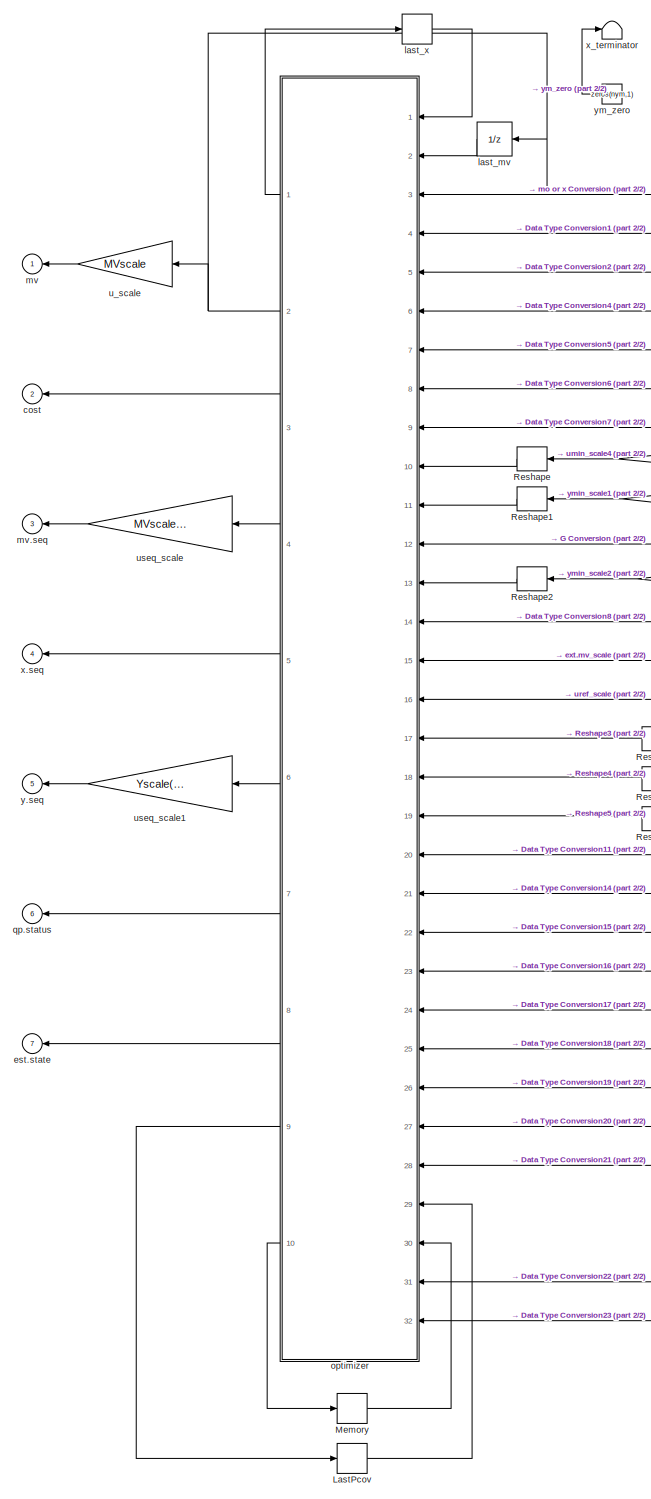
[diagram: Adaptive MPC Controller1/MPC - part 1/2, left side, full height]
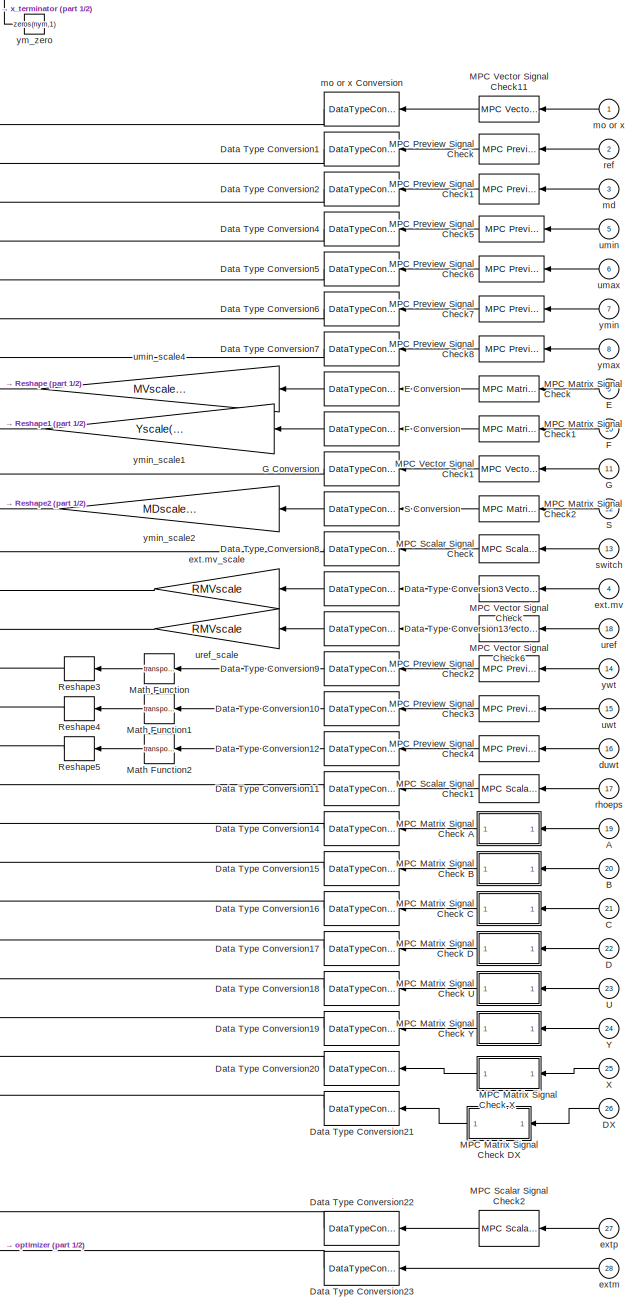
[diagram: Adaptive MPC Controller1/MPC - part 2/2, right side, full height]
BLOCK [SubSystem] Adaptive MPC Controller1/MPC
  Ports = [28, 7]
  RequestExecContextInheritance = off
BLOCK [Inport] Adaptive MPC Controller1/MPC/A
  Port = 19
BLOCK [Inport] Adaptive MPC Controller1/MPC/B
  Port = 20
BLOCK [Inport] Adaptive MPC Controller1/MPC/C
  Port = 21
BLOCK [Inport] Adaptive MPC Controller1/MPC/D
  Port = 22
BLOCK [Inport] Adaptive MPC Controller1/MPC/DX
  Port = 26
BLOCK [DataTypeConversion] Adaptive MPC Controller1/MPC/Data Type Conversion1
  OutDataTypeStr = BlockDataType
  RndMeth = Floor
  SaturateOnIntegerOverflow = off
BLOCK [DataTypeConversion] Adaptive MPC Controller1/MPC/Data Type Conversion10
  OutDataTypeStr = BlockDataType
  RndMeth = Floor
  SaturateOnIntegerOverflow = off
BLOCK [DataTypeConversion] Adaptive MPC Controller1/MPC/Data Type Conversion11
  OutDataTypeStr = BlockDataType
  RndMeth = Floor
  SaturateOnIntegerOverflow = off
BLOCK [DataTypeConversion] Adaptive MPC Controller1/MPC/Data Type Conversion12
  OutDataTypeStr = BlockDataType
  RndMeth = Floor
  SaturateOnIntegerOverflow = off
BLOCK [DataTypeConversion] Adaptive MPC Controller1/MPC/Data Type Conversion13
  OutDataTypeStr = BlockDataType
  RndMeth = Floor
  SaturateOnIntegerOverflow = off
BLOCK [DataTypeConversion] Adaptive MPC Controller1/MPC/Data Type Conversion14
  OutDataTypeStr = BlockDataType
  RndMeth = Floor
  SaturateOnIntegerOverflow = off
BLOCK [DataTypeConversion] Adaptive MPC Controller1/MPC/Data Type Conversion15
  OutDataTypeStr = BlockDataType
  RndMeth = Floor
  SaturateOnIntegerOverflow = off
BLOCK [DataTypeConversion] Adaptive MPC Controller1/MPC/Data Type Conversion16
  OutDataTypeStr = BlockDataType
  RndMeth = Floor
  SaturateOnIntegerOverflow = off
BLOCK [DataTypeConversion] Adaptive MPC Controller1/MPC/Data Type Conversion17
  OutDataTypeStr = BlockDataType
  RndMeth = Floor
  SaturateOnIntegerOverflow = off
BLOCK [DataTypeConversion] Adaptive MPC Controller1/MPC/Data Type Conversion18
  OutDataTypeStr = BlockDataType
  RndMeth = Floor
  SaturateOnIntegerOverflow = off
BLOCK [DataTypeConversion] Adaptive MPC Controller1/MPC/Data Type Conversion19
  OutDataTypeStr = BlockDataType
  RndMeth = Floor
  SaturateOnIntegerOverflow = off
BLOCK [DataTypeConversion] Adaptive MPC Controller1/MPC/Data Type Conversion2
  OutDataTypeStr = BlockDataType
  RndMeth = Floor
  SaturateOnIntegerOverflow = off
BLOCK [DataTypeConversion] Adaptive MPC Controller1/MPC/Data Type Conversion20
  OutDataTypeStr = BlockDataType
  RndMeth = Floor
  SaturateOnIntegerOverflow = off
BLOCK [DataTypeConversion] Adaptive MPC Controller1/MPC/Data Type Conversion21
  OutDataTypeStr = BlockDataType
  RndMeth = Floor
  SaturateOnIntegerOverflow = off
BLOCK [DataTypeConversion] Adaptive MPC Controller1/MPC/Data Type Conversion22
  OutDataTypeStr = BlockDataType
  RndMeth = Floor
  SaturateOnIntegerOverflow = off
BLOCK [DataTypeConversion] Adaptive MPC Controller1/MPC/Data Type Conversion23
  OutDataTypeStr = BlockDataType
  RndMeth = Floor
  SaturateOnIntegerOverflow = off
BLOCK [DataTypeConversion] Adaptive MPC Controller1/MPC/Data Type Conversion3
  OutDataTypeStr = BlockDataType
  RndMeth = Floor
  SaturateOnIntegerOverflow = off
BLOCK [DataTypeConversion] Adaptive MPC Controller1/MPC/Data Type Conversion4
  OutDataTypeStr = BlockDataType
  RndMeth = Floor
  SaturateOnIntegerOverflow = off
BLOCK [DataTypeConversion] Adaptive MPC Controller1/MPC/Data Type Conversion5
  OutDataTypeStr = BlockDataType
  RndMeth = Floor
  SaturateOnIntegerOverflow = off
BLOCK [DataTypeConversion] Adaptive MPC Controller1/MPC/Data Type Conversion6
  OutDataTypeStr = BlockDataType
  RndMeth = Floor
  SaturateOnIntegerOverflow = off
BLOCK [DataTypeConversion] Adaptive MPC Controller1/MPC/Data Type Conversion7
  OutDataTypeStr = BlockDataType
  RndMeth = Floor
  SaturateOnIntegerOverflow = off
BLOCK [DataTypeConversion] Adaptive MPC Controller1/MPC/Data Type Conversion8
  OutDataTypeStr = BlockDataType
  RndMeth = Floor
  SaturateOnIntegerOverflow = off
BLOCK [DataTypeConversion] Adaptive MPC Controller1/MPC/Data Type Conversion9
  OutDataTypeStr = BlockDataType
  RndMeth = Floor
  SaturateOnIntegerOverflow = off
BLOCK [Inport] Adaptive MPC Controller1/MPC/E
  Port = 9
BLOCK [DataTypeConversion] Adaptive MPC Controller1/MPC/E Conversion
  OutDataTypeStr = BlockDataType
  RndMeth = Floor
  SaturateOnIntegerOverflow = off
BLOCK [Inport] Adaptive MPC Controller1/MPC/F
  Port = 10
BLOCK [DataTypeConversion] Adaptive MPC Controller1/MPC/F Conversion
  OutDataTypeStr = BlockDataType
  RndMeth = Floor
  SaturateOnIntegerOverflow = off
BLOCK [Inport] Adaptive MPC Controller1/MPC/G
  Port = 11
BLOCK [DataTypeConversion] Adaptive MPC Controller1/MPC/G Conversion
  OutDataTypeStr = BlockDataType
  RndMeth = Floor
  SaturateOnIntegerOverflow = off
BLOCK [Memory] Adaptive MPC Controller1/MPC/LastPcov
  InheritSampleTime = on
  InitialCondition = lastPcov
  LinearizeAsDelay = on
BLOCK [Reference] Adaptive MPC Controller1/MPC/MPC Matrix Signal Check  REF=mpcsigdimcheck_private/MPC Matrix Signal Check
  Ports = [1, 1]
  SourceBlock = mpcsigdimcheck_private/MPC Matrix Signal Check
  SourceProductBaseCode = MP
  SourceType = MPCSignalDimensionCheck
BLOCK [SubSystem] Adaptive MPC Controller1/MPC/MPC Matrix Signal Check A
  AncestorBlock = mpcsigdimcheck_private/MPC Matrix Signal Check
  Ports = [1, 1]
  RequestExecContextInheritance = off
BLOCK [Inport] Adaptive MPC Controller1/MPC/MPC Matrix Signal Check A/Input
BLOCK [S-Function] Adaptive MPC Controller1/MPC/MPC Matrix Signal Check A/Matrix Dimension Check
  EnableBusSupport = off
  FunctionName = mpcMatrixSignalCheck
  Parameters = blockname, signalname, nrow, ncol, nsteps, isltv
  Ports = [1]
  SFcnIsStateOwnerBlock = off
  SFunctionDeploymentMode = off
BLOCK [Outport] Adaptive MPC Controller1/MPC/MPC Matrix Signal Check A/Output
  VectorParamsAs1DForOutWhenUnconnected = off
BLOCK [SignalSpecification] Adaptive MPC Controller1/MPC/MPC Matrix Signal Check A/Signal Specification
  Dimensions = [4 4]
BLOCK [SubSystem] Adaptive MPC Controller1/MPC/MPC Matrix Signal Check B
  AncestorBlock = mpcsigdimcheck_private/MPC Matrix Signal Check
  Ports = [1, 1]
  RequestExecContextInheritance = off
BLOCK [Inport] Adaptive MPC Controller1/MPC/MPC Matrix Signal Check B/Input
BLOCK [S-Function] Adaptive MPC Controller1/MPC/MPC Matrix Signal Check B/Matrix Dimension Check
  EnableBusSupport = off
  FunctionName = mpcMatrixSignalCheck
  Parameters = blockname, signalname, nrow, ncol, nsteps, isltv
  Ports = [1]
  SFcnIsStateOwnerBlock = off
  SFunctionDeploymentMode = off
BLOCK [Outport] Adaptive MPC Controller1/MPC/MPC Matrix Signal Check B/Output
  VectorParamsAs1DForOutWhenUnconnected = off
BLOCK [SignalSpecification] Adaptive MPC Controller1/MPC/MPC Matrix Signal Check B/Signal Specification
  Dimensions = [4 1]
BLOCK [SubSystem] Adaptive MPC Controller1/MPC/MPC Matrix Signal Check C
  AncestorBlock = mpcsigdimcheck_private/MPC Matrix Signal Check
  Ports = [1, 1]
  RequestExecContextInheritance = off
BLOCK [Inport] Adaptive MPC Controller1/MPC/MPC Matrix Signal Check C/Input
BLOCK [S-Function] Adaptive MPC Controller1/MPC/MPC Matrix Signal Check C/Matrix Dimension Check
  EnableBusSupport = off
  FunctionName = mpcMatrixSignalCheck
  Parameters = blockname, signalname, nrow, ncol, nsteps, isltv
  Ports = [1]
  SFcnIsStateOwnerBlock = off
  SFunctionDeploymentMode = off
BLOCK [Outport] Adaptive MPC Controller1/MPC/MPC Matrix Signal Check C/Output
  VectorParamsAs1DForOutWhenUnconnected = off
BLOCK [SignalSpecification] Adaptive MPC Controller1/MPC/MPC Matrix Signal Check C/Signal Specification
  Dimensions = [4 4]
BLOCK [SubSystem] Adaptive MPC Controller1/MPC/MPC Matrix Signal Check D
  AncestorBlock = mpcsigdimcheck_private/MPC Matrix Signal Check
  Ports = [1, 1]
  RequestExecContextInheritance = off
BLOCK [Inport] Adaptive MPC Controller1/MPC/MPC Matrix Signal Check D/Input
BLOCK [S-Function] Adaptive MPC Controller1/MPC/MPC Matrix Signal Check D/Matrix Dimension Check
  EnableBusSupport = off
  FunctionName = mpcMatrixSignalCheck
  Parameters = blockname, signalname, nrow, ncol, nsteps, isltv
  Ports = [1]
  SFcnIsStateOwnerBlock = off
  SFunctionDeploymentMode = off
BLOCK [Outport] Adaptive MPC Controller1/MPC/MPC Matrix Signal Check D/Output
  VectorParamsAs1DForOutWhenUnconnected = off
BLOCK [SignalSpecification] Adaptive MPC Controller1/MPC/MPC Matrix Signal Check D/Signal Specification
  Dimensions = [4 1]
BLOCK [SubSystem] Adaptive MPC Controller1/MPC/MPC Matrix Signal Check DX
  AncestorBlock = mpcsigdimcheck_private/MPC Matrix Signal Check
  Ports = [1, 1]
  RequestExecContextInheritance = off
BLOCK [Inport] Adaptive MPC Controller1/MPC/MPC Matrix Signal Check DX/Input
BLOCK [S-Function] Adaptive MPC Controller1/MPC/MPC Matrix Signal Check DX/Matrix Dimension Check
  EnableBusSupport = off
  FunctionName = mpcMatrixSignalCheck
  Parameters = blockname, signalname, nrow, ncol, nsteps, isltv
  Ports = [1]
  SFcnIsStateOwnerBlock = off
  SFunctionDeploymentMode = off
BLOCK [Outport] Adaptive MPC Controller1/MPC/MPC Matrix Signal Check DX/Output
  VectorParamsAs1DForOutWhenUnconnected = off
BLOCK [SignalSpecification] Adaptive MPC Controller1/MPC/MPC Matrix Signal Check DX/Signal Specification
  Dimensions = [4 1]
BLOCK [SubSystem] Adaptive MPC Controller1/MPC/MPC Matrix Signal Check U
  AncestorBlock = mpcsigdimcheck_private/MPC Matrix Signal Check
  Ports = [1, 1]
  RequestExecContextInheritance = off
BLOCK [Inport] Adaptive MPC Controller1/MPC/MPC Matrix Signal Check U/Input
BLOCK [S-Function] Adaptive MPC Controller1/MPC/MPC Matrix Signal Check U/Matrix Dimension Check
  EnableBusSupport = off
  FunctionName = mpcMatrixSignalCheck
  Parameters = blockname, signalname, nrow, ncol, nsteps, isltv
  Ports = [1]
  SFcnIsStateOwnerBlock = off
  SFunctionDeploymentMode = off
BLOCK [Outport] Adaptive MPC Controller1/MPC/MPC Matrix Signal Check U/Output
  VectorParamsAs1DForOutWhenUnconnected = off
BLOCK [SignalSpecification] Adaptive MPC Controller1/MPC/MPC Matrix Signal Check U/Signal Specification
  Dimensions = [1 1]
BLOCK [SubSystem] Adaptive MPC Controller1/MPC/MPC Matrix Signal Check X
  AncestorBlock = mpcsigdimcheck_private/MPC Matrix Signal Check
  Ports = [1, 1]
  RequestExecContextInheritance = off
BLOCK [Inport] Adaptive MPC Controller1/MPC/MPC Matrix Signal Check X/Input
BLOCK [S-Function] Adaptive MPC Controller1/MPC/MPC Matrix Signal Check X/Matrix Dimension Check
  EnableBusSupport = off
  FunctionName = mpcMatrixSignalCheck
  Parameters = blockname, signalname, nrow, ncol, nsteps, isltv
  Ports = [1]
  SFcnIsStateOwnerBlock = off
  SFunctionDeploymentMode = off
BLOCK [Outport] Adaptive MPC Controller1/MPC/MPC Matrix Signal Check X/Output
  VectorParamsAs1DForOutWhenUnconnected = off
BLOCK [SignalSpecification] Adaptive MPC Controller1/MPC/MPC Matrix Signal Check X/Signal Specification
  Dimensions = [4 1]
BLOCK [SubSystem] Adaptive MPC Controller1/MPC/MPC Matrix Signal Check Y
  AncestorBlock = mpcsigdimcheck_private/MPC Matrix Signal Check
  Ports = [1, 1]
  RequestExecContextInheritance = off
BLOCK [Inport] Adaptive MPC Controller1/MPC/MPC Matrix Signal Check Y/Input
BLOCK [S-Function] Adaptive MPC Controller1/MPC/MPC Matrix Signal Check Y/Matrix Dimension Check
  EnableBusSupport = off
  FunctionName = mpcMatrixSignalCheck
  Parameters = blockname, signalname, nrow, ncol, nsteps, isltv
  Ports = [1]
  SFcnIsStateOwnerBlock = off
  SFunctionDeploymentMode = off
BLOCK [Outport] Adaptive MPC Controller1/MPC/MPC Matrix Signal Check Y/Output
  VectorParamsAs1DForOutWhenUnconnected = off
BLOCK [SignalSpecification] Adaptive MPC Controller1/MPC/MPC Matrix Signal Check Y/Signal Specification
  Dimensions = [4 1]
BLOCK [Reference] Adaptive MPC Controller1/MPC/MPC Matrix Signal Check1  REF=mpcsigdimcheck_private/MPC Matrix Signal Check
  Ports = [1, 1]
  SourceBlock = mpcsigdimcheck_private/MPC Matrix Signal Check
  SourceProductBaseCode = MP
  SourceType = MPCSignalDimensionCheck
BLOCK [Reference] Adaptive MPC Controller1/MPC/MPC Matrix Signal Check2  REF=mpcsigdimcheck_private/MPC Matrix Signal Check
  Ports = [1, 1]
  SourceBlock = mpcsigdimcheck_private/MPC Matrix Signal Check
  SourceProductBaseCode = MP
  SourceType = MPCSignalDimensionCheck
BLOCK [Reference] Adaptive MPC Controller1/MPC/MPC Preview Signal Check  REF=mpcsigdimcheck_private/MPC Preview Signal Check
  Ports = [1, 1]
  SourceBlock = mpcsigdimcheck_private/MPC Preview Signal Check
  SourceProductBaseCode = MP
  SourceType = MPCSignalDimensionCheck
BLOCK [Reference] Adaptive MPC Controller1/MPC/MPC Preview Signal Check1  REF=mpcsigdimcheck_private/MPC Preview Signal Check
  Ports = [1, 1]
  SourceBlock = mpcsigdimcheck_private/MPC Preview Signal Check
  SourceProductBaseCode = MP
  SourceType = MPCSignalDimensionCheck
BLOCK [Reference] Adaptive MPC Controller1/MPC/MPC Preview Signal Check2  REF=mpcsigdimcheck_private/MPC Preview Signal Check
  Ports = [1, 1]
  SourceBlock = mpcsigdimcheck_private/MPC Preview Signal Check
  SourceProductBaseCode = MP
  SourceType = MPCSignalDimensionCheck
BLOCK [Reference] Adaptive MPC Controller1/MPC/MPC Preview Signal Check3  REF=mpcsigdimcheck_private/MPC Preview Signal Check
  Ports = [1, 1]
  SourceBlock = mpcsigdimcheck_private/MPC Preview Signal Check
  SourceProductBaseCode = MP
  SourceType = MPCSignalDimensionCheck
BLOCK [Reference] Adaptive MPC Controller1/MPC/MPC Preview Signal Check4  REF=mpcsigdimcheck_private/MPC Preview Signal Check
  Ports = [1, 1]
  SourceBlock = mpcsigdimcheck_private/MPC Preview Signal Check
  SourceProductBaseCode = MP
  SourceType = MPCSignalDimensionCheck
BLOCK [Reference] Adaptive MPC Controller1/MPC/MPC Preview Signal Check5  REF=mpcsigdimcheck_private/MPC Preview Signal Check
  Ports = [1, 1]
  SourceBlock = mpcsigdimcheck_private/MPC Preview Signal Check
  SourceProductBaseCode = MP
  SourceType = MPCSignalDimensionCheck
BLOCK [Reference] Adaptive MPC Controller1/MPC/MPC Preview Signal Check6  REF=mpcsigdimcheck_private/MPC Preview Signal Check
  Ports = [1, 1]
  SourceBlock = mpcsigdimcheck_private/MPC Preview Signal Check
  SourceProductBaseCode = MP
  SourceType = MPCSignalDimensionCheck
BLOCK [Reference] Adaptive MPC Controller1/MPC/MPC Preview Signal Check7  REF=mpcsigdimcheck_private/MPC Preview Signal Check
  Ports = [1, 1]
  SourceBlock = mpcsigdimcheck_private/MPC Preview Signal Check
  SourceProductBaseCode = MP
  SourceType = MPCSignalDimensionCheck
BLOCK [Reference] Adaptive MPC Controller1/MPC/MPC Preview Signal Check8  REF=mpcsigdimcheck_private/MPC Preview Signal Check
  Ports = [1, 1]
  SourceBlock = mpcsigdimcheck_private/MPC Preview Signal Check
  SourceProductBaseCode = MP
  SourceType = MPCSignalDimensionCheck
BLOCK [Reference] Adaptive MPC Controller1/MPC/MPC Scalar Signal Check  REF=mpcsigdimcheck_private/MPC Scalar Signal Check
  Ports = [1, 1]
  SourceBlock = mpcsigdimcheck_private/MPC Scalar Signal Check
  SourceProductBaseCode = MP
  SourceType = MPCSignalDimensionCheck
BLOCK [Reference] Adaptive MPC Controller1/MPC/MPC Scalar Signal Check1  REF=mpcsigdimcheck_private/MPC Scalar Signal Check
  Ports = [1, 1]
  SourceBlock = mpcsigdimcheck_private/MPC Scalar Signal Check
  SourceProductBaseCode = MP
  SourceType = MPCSignalDimensionCheck
BLOCK [Reference] Adaptive MPC Controller1/MPC/MPC Scalar Signal Check2  REF=mpcsigdimcheck_private/MPC Scalar Signal Check
  Ports = [1, 1]
  SourceBlock = mpcsigdimcheck_private/MPC Scalar Signal Check
  SourceProductBaseCode = MP
  SourceType = MPCSignalDimensionCheck
BLOCK [Reference] Adaptive MPC Controller1/MPC/MPC Vector Signal Check  REF=mpcsigdimcheck_private/MPC Vector Signal Check
  Ports = [1, 1]
  SourceBlock = mpcsigdimcheck_private/MPC Vector Signal Check
  SourceProductBaseCode = MP
  SourceType = MPCSignalDimensionCheck
BLOCK [Reference] Adaptive MPC Controller1/MPC/MPC Vector Signal Check1  REF=mpcsigdimcheck_private/MPC Vector Signal Check
  Ports = [1, 1]
  SourceBlock = mpcsigdimcheck_private/MPC Vector Signal Check
  SourceProductBaseCode = MP
  SourceType = MPCSignalDimensionCheck
BLOCK [Reference] Adaptive MPC Controller1/MPC/MPC Vector Signal Check11  REF=mpcsigdimcheck_private/MPC Vector Signal Check
  Ports = [1, 1]
  SourceBlock = mpcsigdimcheck_private/MPC Vector Signal Check
  SourceProductBaseCode = MP
  SourceType = MPCSignalDimensionCheck
BLOCK [Reference] Adaptive MPC Controller1/MPC/MPC Vector Signal Check6  REF=mpcsigdimcheck_private/MPC Vector Signal Check
  Ports = [1, 1]
  SourceBlock = mpcsigdimcheck_private/MPC Vector Signal Check
  SourceProductBaseCode = MP
  SourceType = MPCSignalDimensionCheck
BLOCK [Math] Adaptive MPC Controller1/MPC/Math Function
  Operator = transpose
  Ports = [1, 1]
  SignedPower = on
BLOCK [Math] Adaptive MPC Controller1/MPC/Math Function1
  Operator = transpose
  Ports = [1, 1]
  SignedPower = on
BLOCK [Math] Adaptive MPC Controller1/MPC/Math Function2
  Operator = transpose
  Ports = [1, 1]
  SignedPower = on
BLOCK [Memory] Adaptive MPC Controller1/MPC/Memory
  InheritSampleTime = on
  InitialCondition = iA
  LinearizeAsDelay = on
BLOCK [Reshape] Adaptive MPC Controller1/MPC/Reshape
  OutputDimensionality = Customize
  OutputDimensions = double([max(nCC,1),nu])
  Ports = [1, 1]
BLOCK [Reshape] Adaptive MPC Controller1/MPC/Reshape1
  OutputDimensionality = Customize
  OutputDimensions = double([max(nCC,1),ny])
  Ports = [1, 1]
BLOCK [Reshape] Adaptive MPC Controller1/MPC/Reshape2
  OutputDimensionality = Customize
  OutputDimensions = double([max(nCC,1),max(nv-1,1)])
  Ports = [1, 1]
BLOCK [Reshape] Adaptive MPC Controller1/MPC/Reshape3
  OutputDimensionality = Column vector (2-D)
  Ports = [1, 1]
BLOCK [Reshape] Adaptive MPC Controller1/MPC/Reshape4
  OutputDimensionality = Column vector (2-D)
  Ports = [1, 1]
BLOCK [Reshape] Adaptive MPC Controller1/MPC/Reshape5
  OutputDimensionality = Column vector (2-D)
  Ports = [1, 1]
BLOCK [Inport] Adaptive MPC Controller1/MPC/S
  Port = 12
BLOCK [DataTypeConversion] Adaptive MPC Controller1/MPC/S Conversion
  OutDataTypeStr = BlockDataType
  RndMeth = Floor
  SaturateOnIntegerOverflow = off
BLOCK [Inport] Adaptive MPC Controller1/MPC/U
  Port = 23
BLOCK [Inport] Adaptive MPC Controller1/MPC/X
  Port = 25
BLOCK [Inport] Adaptive MPC Controller1/MPC/Y
  Port = 24
BLOCK [Outport] Adaptive MPC Controller1/MPC/cost
  OutDataTypeStr = BlockDataType
  Port = 2
  VectorParamsAs1DForOutWhenUnconnected = off
BLOCK [Inport] Adaptive MPC Controller1/MPC/duwt
  Port = 16
BLOCK [Outport] Adaptive MPC Controller1/MPC/est.state
  OutDataTypeStr = BlockDataType
  Port = 7
  VectorParamsAs1DForOutWhenUnconnected = off
BLOCK [Inport] Adaptive MPC Controller1/MPC/ext.mv
  Port = 4
BLOCK [Gain] Adaptive MPC Controller1/MPC/ext.mv_scale
  Gain = RMVscale
  SampleTime = ts
BLOCK [Inport] Adaptive MPC Controller1/MPC/extm
  Port = 28
BLOCK [Inport] Adaptive MPC Controller1/MPC/extp
  Port = 27
BLOCK [UnitDelay] Adaptive MPC Controller1/MPC/last_mv
  HasFrameUpgradeWarning = on
  InitialCondition = lastu+uoff
  SampleTime = ts
BLOCK [Memory] Adaptive MPC Controller1/MPC/last_x
  InheritSampleTime = on
  InitialCondition = lastx+xoff
  LinearizeAsDelay = on
BLOCK [Inport] Adaptive MPC Controller1/MPC/md
  Port = 3
BLOCK [Inport] Adaptive MPC Controller1/MPC/mo or x
BLOCK [DataTypeConversion] Adaptive MPC Controller1/MPC/mo or x Conversion
  OutDataTypeStr = BlockDataType
  RndMeth = Floor
  SaturateOnIntegerOverflow = off
BLOCK [Outport] Adaptive MPC Controller1/MPC/mv
  OutDataTypeStr = BlockDataType
  VectorParamsAs1DForOutWhenUnconnected = off
BLOCK [Outport] Adaptive MPC Controller1/MPC/mv.seq
  OutDataTypeStr = BlockDataType
  Port = 3
  VectorParamsAs1DForOutWhenUnconnected = off
BLOCK [SubSystem] Adaptive MPC Controller1/MPC/optimizer
  LabelModeActiveChoice = FixedHorizon
  Ports = [32, 10]
  RequestExecContextInheritance = off
  Variant = on
  VariantControl = Variant1
  VariantControlMode = label
BLOCK [Outport] Adaptive MPC Controller1/MPC/optimizer/ Pk1
  Port = 9
  VectorParamsAs1DForOutWhenUnconnected = off
BLOCK [Outport] Adaptive MPC Controller1/MPC/optimizer/ cost
  Port = 3
  VectorParamsAs1DForOutWhenUnconnected = off
BLOCK [Outport] Adaptive MPC Controller1/MPC/optimizer/ iAout
  Port = 10
  VectorParamsAs1DForOutWhenUnconnected = off
BLOCK [Outport] Adaptive MPC Controller1/MPC/optimizer/ status
  Port = 7
  VectorParamsAs1DForOutWhenUnconnected = off
BLOCK [Outport] Adaptive MPC Controller1/MPC/optimizer/ u
  Port = 2
  VectorParamsAs1DForOutWhenUnconnected = off
BLOCK [Outport] Adaptive MPC Controller1/MPC/optimizer/ useq
  Port = 4
  VectorParamsAs1DForOutWhenUnconnected = off
BLOCK [Outport] Adaptive MPC Controller1/MPC/optimizer/ xest
  Port = 8
  VectorParamsAs1DForOutWhenUnconnected = off
BLOCK [Outport] Adaptive MPC Controller1/MPC/optimizer/ xk1
  VectorParamsAs1DForOutWhenUnconnected = off
BLOCK [Outport] Adaptive MPC Controller1/MPC/optimizer/ xseq
  Port = 5
  VectorParamsAs1DForOutWhenUnconnected = off
BLOCK [Outport] Adaptive MPC Controller1/MPC/optimizer/ yseq
  Port = 6
  VectorParamsAs1DForOutWhenUnconnected = off
BLOCK [Inport] Adaptive MPC Controller1/MPC/optimizer/DX 
  Port = 28
BLOCK [Inport] Adaptive MPC Controller1/MPC/optimizer/E 
  Port = 10
BLOCK [Inport] Adaptive MPC Controller1/MPC/optimizer/F 
  Port = 11
BLOCK [SubSystem] Adaptive MPC Controller1/MPC/optimizer/FixedHorizonOptimizer
  ErrorFcn = Stateflow.Translate.translate
  PermitHierarchicalResolution = ExplicitOnly
  Ports = [30, 10]
  RequestExecContextInheritance = off
  SFBlockType = MATLAB Function
  VariantControl = FixedHorizon
BLOCK [Demux] Adaptive MPC Controller1/MPC/optimizer/FixedHorizonOptimizer/ Demux 
  Outputs = 1
  Ports = [1, 1]
BLOCK [S-Function] Adaptive MPC Controller1/MPC/optimizer/FixedHorizonOptimizer/ SFunction 
  EnableBusSupport = on
  FunctionName = sf_sfun
  PortCounts = [30 11]
  Ports = [30, 11]
  SFcnIsStateOwnerBlock = off
  SFunctionDeploymentMode = off
  Tag = Stateflow S-Function 2
BLOCK [Terminator] Adaptive MPC Controller1/MPC/optimizer/FixedHorizonOptimizer/ Terminator 
BLOCK [Inport] Adaptive MPC Controller1/MPC/optimizer/FixedHorizonOptimizer/DX
  Port = 28
BLOCK [Inport] Adaptive MPC Controller1/MPC/optimizer/FixedHorizonOptimizer/E
  Port = 10
BLOCK [Inport] Adaptive MPC Controller1/MPC/optimizer/FixedHorizonOptimizer/F
  Port = 11
BLOCK [Inport] Adaptive MPC Controller1/MPC/optimizer/FixedHorizonOptimizer/G
  Port = 12
BLOCK [Inport] Adaptive MPC Controller1/MPC/optimizer/FixedHorizonOptimizer/MVtarget
  Port = 16
BLOCK [Inport] Adaptive MPC Controller1/MPC/optimizer/FixedHorizonOptimizer/Pk
  Port = 29
BLOCK [Outport] Adaptive MPC Controller1/MPC/optimizer/FixedHorizonOptimizer/Pk1
  Port = 9
  VectorParamsAs1DForOutWhenUnconnected = off
BLOCK [Inport] Adaptive MPC Controller1/MPC/optimizer/FixedHorizonOptimizer/S
  Port = 13
BLOCK [Inport] Adaptive MPC Controller1/MPC/optimizer/FixedHorizonOptimizer/U
  Port = 25
BLOCK [Inport] Adaptive MPC Controller1/MPC/optimizer/FixedHorizonOptimizer/X
  Port = 27
BLOCK [Inport] Adaptive MPC Controller1/MPC/optimizer/FixedHorizonOptimizer/Y
  Port = 26
BLOCK [Inport] Adaptive MPC Controller1/MPC/optimizer/FixedHorizonOptimizer/a
  Port = 21
BLOCK [Inport] Adaptive MPC Controller1/MPC/optimizer/FixedHorizonOptimizer/b
  Port = 22
BLOCK [Inport] Adaptive MPC Controller1/MPC/optimizer/FixedHorizonOptimizer/c
  Port = 23
BLOCK [Outport] Adaptive MPC Controller1/MPC/optimizer/FixedHorizonOptimizer/cost
  Port = 3
  VectorParamsAs1DForOutWhenUnconnected = off
BLOCK [Inport] Adaptive MPC Controller1/MPC/optimizer/FixedHorizonOptimizer/d
  Port = 24
BLOCK [Inport] Adaptive MPC Controller1/MPC/optimizer/FixedHorizonOptimizer/duwt
  Port = 19
BLOCK [Inport] Adaptive MPC Controller1/MPC/optimizer/FixedHorizonOptimizer/ext_mv
  Port = 15
BLOCK [Inport] Adaptive MPC Controller1/MPC/optimizer/FixedHorizonOptimizer/iA
  Port = 30
BLOCK [Outport] Adaptive MPC Controller1/MPC/optimizer/FixedHorizonOptimizer/iAout
  Port = 10
  VectorParamsAs1DForOutWhenUnconnected = off
BLOCK [Inport] Adaptive MPC Controller1/MPC/optimizer/FixedHorizonOptimizer/md
  Port = 5
BLOCK [Inport] Adaptive MPC Controller1/MPC/optimizer/FixedHorizonOptimizer/old_u
  Port = 2
BLOCK [Inport] Adaptive MPC Controller1/MPC/optimizer/FixedHorizonOptimizer/ref
  Port = 4
BLOCK [Inport] Adaptive MPC Controller1/MPC/optimizer/FixedHorizonOptimizer/rhoeps
  Port = 20
BLOCK [Outport] Adaptive MPC Controller1/MPC/optimizer/FixedHorizonOptimizer/status
  Port = 7
  VectorParamsAs1DForOutWhenUnconnected = off
BLOCK [Inport] Adaptive MPC Controller1/MPC/optimizer/FixedHorizonOptimizer/switch_in
  Port = 14
BLOCK [Outport] Adaptive MPC Controller1/MPC/optimizer/FixedHorizonOptimizer/u
  Port = 2
  VectorParamsAs1DForOutWhenUnconnected = off
BLOCK [Inport] Adaptive MPC Controller1/MPC/optimizer/FixedHorizonOptimizer/umax
  Port = 7
BLOCK [Inport] Adaptive MPC Controller1/MPC/optimizer/FixedHorizonOptimizer/umin
  Port = 6
BLOCK [Outport] Adaptive MPC Controller1/MPC/optimizer/FixedHorizonOptimizer/useq
  Port = 4
  VectorParamsAs1DForOutWhenUnconnected = off
BLOCK [Inport] Adaptive MPC Controller1/MPC/optimizer/FixedHorizonOptimizer/uwt
  Port = 18
BLOCK [Outport] Adaptive MPC Controller1/MPC/optimizer/FixedHorizonOptimizer/xest
  Port = 8
  VectorParamsAs1DForOutWhenUnconnected = off
BLOCK [Inport] Adaptive MPC Controller1/MPC/optimizer/FixedHorizonOptimizer/xk
BLOCK [Outport] Adaptive MPC Controller1/MPC/optimizer/FixedHorizonOptimizer/xk1
  VectorParamsAs1DForOutWhenUnconnected = off
BLOCK [Outport] Adaptive MPC Controller1/MPC/optimizer/FixedHorizonOptimizer/xseq
  Port = 5
  VectorParamsAs1DForOutWhenUnconnected = off
BLOCK [Inport] Adaptive MPC Controller1/MPC/optimizer/FixedHorizonOptimizer/ym
  Port = 3
BLOCK [Inport] Adaptive MPC Controller1/MPC/optimizer/FixedHorizonOptimizer/ymax
  Port = 9
BLOCK [Inport] Adaptive MPC Controller1/MPC/optimizer/FixedHorizonOptimizer/ymin
  Port = 8
BLOCK [Outport] Adaptive MPC Controller1/MPC/optimizer/FixedHorizonOptimizer/yseq
  Port = 6
  VectorParamsAs1DForOutWhenUnconnected = off
BLOCK [Inport] Adaptive MPC Controller1/MPC/optimizer/FixedHorizonOptimizer/ywt
  Port = 17
BLOCK [Inport] Adaptive MPC Controller1/MPC/optimizer/G 
  Port = 12
BLOCK [Inport] Adaptive MPC Controller1/MPC/optimizer/MVtarget 
  Port = 16
BLOCK [Inport] Adaptive MPC Controller1/MPC/optimizer/Pk 
  Port = 29
BLOCK [Inport] Adaptive MPC Controller1/MPC/optimizer/S 
  Port = 13
BLOCK [Inport] Adaptive MPC Controller1/MPC/optimizer/U 
  Port = 25
BLOCK [SubSystem] Adaptive MPC Controller1/MPC/optimizer/VariableHorizonOptimizer
  ErrorFcn = Stateflow.Translate.translate
  PermitHierarchicalResolution = ExplicitOnly
  Ports = [32, 10]
  RequestExecContextInheritance = off
  SFBlockType = MATLAB Function
  VariantControl = VariableHorizon
BLOCK [Demux] Adaptive MPC Controller1/MPC/optimizer/VariableHorizonOptimizer/ Demux 
  Outputs = 1
  Ports = [1, 1]
BLOCK [S-Function] Adaptive MPC Controller1/MPC/optimizer/VariableHorizonOptimizer/ SFunction 
  EnableBusSupport = on
  FunctionName = sf_sfun
  PortCounts = [32 11]
  Ports = [32, 11]
  SFcnIsStateOwnerBlock = off
  SFunctionDeploymentMode = off
  Tag = Stateflow S-Function 6
BLOCK [Terminator] Adaptive MPC Controller1/MPC/optimizer/VariableHorizonOptimizer/ Terminator 
BLOCK [Inport] Adaptive MPC Controller1/MPC/optimizer/VariableHorizonOptimizer/DX
  Port = 28
BLOCK [Inport] Adaptive MPC Controller1/MPC/optimizer/VariableHorizonOptimizer/E
  Port = 10
BLOCK [Inport] Adaptive MPC Controller1/MPC/optimizer/VariableHorizonOptimizer/F
  Port = 11
BLOCK [Inport] Adaptive MPC Controller1/MPC/optimizer/VariableHorizonOptimizer/G
  Port = 12
BLOCK [Inport] Adaptive MPC Controller1/MPC/optimizer/VariableHorizonOptimizer/MVtarget
  Port = 16
BLOCK [Inport] Adaptive MPC Controller1/MPC/optimizer/VariableHorizonOptimizer/Pk
  Port = 29
BLOCK [Outport] Adaptive MPC Controller1/MPC/optimizer/VariableHorizonOptimizer/Pk1
  Port = 9
  VectorParamsAs1DForOutWhenUnconnected = off
BLOCK [Inport] Adaptive MPC Controller1/MPC/optimizer/VariableHorizonOptimizer/S
  Port = 13
BLOCK [Inport] Adaptive MPC Controller1/MPC/optimizer/VariableHorizonOptimizer/U
  Port = 25
BLOCK [Inport] Adaptive MPC Controller1/MPC/optimizer/VariableHorizonOptimizer/X
  Port = 27
BLOCK [Inport] Adaptive MPC Controller1/MPC/optimizer/VariableHorizonOptimizer/Y
  Port = 26
BLOCK [Inport] Adaptive MPC Controller1/MPC/optimizer/VariableHorizonOptimizer/a
  Port = 21
BLOCK [Inport] Adaptive MPC Controller1/MPC/optimizer/VariableHorizonOptimizer/b
  Port = 22
BLOCK [Inport] Adaptive MPC Controller1/MPC/optimizer/VariableHorizonOptimizer/c
  Port = 23
BLOCK [Outport] Adaptive MPC Controller1/MPC/optimizer/VariableHorizonOptimizer/cost
  Port = 3
  VectorParamsAs1DForOutWhenUnconnected = off
BLOCK [Inport] Adaptive MPC Controller1/MPC/optimizer/VariableHorizonOptimizer/d
  Port = 24
BLOCK [Inport] Adaptive MPC Controller1/MPC/optimizer/VariableHorizonOptimizer/duwt
  Port = 19
BLOCK [Inport] Adaptive MPC Controller1/MPC/optimizer/VariableHorizonOptimizer/ext_mv
  Port = 15
BLOCK [Inport] Adaptive MPC Controller1/MPC/optimizer/VariableHorizonOptimizer/extm
  Port = 32
BLOCK [Inport] Adaptive MPC Controller1/MPC/optimizer/VariableHorizonOptimizer/extp
  Port = 31
BLOCK [Inport] Adaptive MPC Controller1/MPC/optimizer/VariableHorizonOptimizer/iA
  Port = 30
BLOCK [Outport] Adaptive MPC Controller1/MPC/optimizer/VariableHorizonOptimizer/iAout
  Port = 10
  VectorParamsAs1DForOutWhenUnconnected = off
BLOCK [Inport] Adaptive MPC Controller1/MPC/optimizer/VariableHorizonOptimizer/md
  Port = 5
BLOCK [Inport] Adaptive MPC Controller1/MPC/optimizer/VariableHorizonOptimizer/old_u
  Port = 2
BLOCK [Inport] Adaptive MPC Controller1/MPC/optimizer/VariableHorizonOptimizer/ref
  Port = 4
BLOCK [Inport] Adaptive MPC Controller1/MPC/optimizer/VariableHorizonOptimizer/rhoeps
  Port = 20
BLOCK [Outport] Adaptive MPC Controller1/MPC/optimizer/VariableHorizonOptimizer/status
  Port = 7
  VectorParamsAs1DForOutWhenUnconnected = off
BLOCK [Inport] Adaptive MPC Controller1/MPC/optimizer/VariableHorizonOptimizer/switch_in
  Port = 14
BLOCK [Outport] Adaptive MPC Controller1/MPC/optimizer/VariableHorizonOptimizer/u
  Port = 2
  VectorParamsAs1DForOutWhenUnconnected = off
BLOCK [Inport] Adaptive MPC Controller1/MPC/optimizer/VariableHorizonOptimizer/umax
  Port = 7
BLOCK [Inport] Adaptive MPC Controller1/MPC/optimizer/VariableHorizonOptimizer/umin
  Port = 6
BLOCK [Outport] Adaptive MPC Controller1/MPC/optimizer/VariableHorizonOptimizer/useq
  Port = 4
  VectorParamsAs1DForOutWhenUnconnected = off
BLOCK [Inport] Adaptive MPC Controller1/MPC/optimizer/VariableHorizonOptimizer/uwt
  Port = 18
BLOCK [Outport] Adaptive MPC Controller1/MPC/optimizer/VariableHorizonOptimizer/xest
  Port = 8
  VectorParamsAs1DForOutWhenUnconnected = off
BLOCK [Inport] Adaptive MPC Controller1/MPC/optimizer/VariableHorizonOptimizer/xk
BLOCK [Outport] Adaptive MPC Controller1/MPC/optimizer/VariableHorizonOptimizer/xk1
  VectorParamsAs1DForOutWhenUnconnected = off
BLOCK [Outport] Adaptive MPC Controller1/MPC/optimizer/VariableHorizonOptimizer/xseq
  Port = 5
  VectorParamsAs1DForOutWhenUnconnected = off
BLOCK [Inport] Adaptive MPC Controller1/MPC/optimizer/VariableHorizonOptimizer/ym
  Port = 3
BLOCK [Inport] Adaptive MPC Controller1/MPC/optimizer/VariableHorizonOptimizer/ymax
  Port = 9
BLOCK [Inport] Adaptive MPC Controller1/MPC/optimizer/VariableHorizonOptimizer/ymin
  Port = 8
BLOCK [Outport] Adaptive MPC Controller1/MPC/optimizer/VariableHorizonOptimizer/yseq
  Port = 6
  VectorParamsAs1DForOutWhenUnconnected = off
BLOCK [Inport] Adaptive MPC Controller1/MPC/optimizer/VariableHorizonOptimizer/ywt
  Port = 17
BLOCK [Inport] Adaptive MPC Controller1/MPC/optimizer/X 
  Port = 27
BLOCK [Inport] Adaptive MPC Controller1/MPC/optimizer/Y 
  Port = 26
BLOCK [Inport] Adaptive MPC Controller1/MPC/optimizer/a 
  Port = 21
BLOCK [Inport] Adaptive MPC Controller1/MPC/optimizer/b 
  Port = 22
BLOCK [Inport] Adaptive MPC Controller1/MPC/optimizer/c 
  Port = 23
BLOCK [Inport] Adaptive MPC Controller1/MPC/optimizer/d 
  Port = 24
BLOCK [Inport] Adaptive MPC Controller1/MPC/optimizer/duwt 
  Port = 19
BLOCK [Inport] Adaptive MPC Controller1/MPC/optimizer/ext_mv 
  Port = 15
BLOCK [Inport] Adaptive MPC Controller1/MPC/optimizer/extm
  Port = 32
BLOCK [Inport] Adaptive MPC Controller1/MPC/optimizer/extp
  Port = 31
BLOCK [Inport] Adaptive MPC Controller1/MPC/optimizer/iA 
  Port = 30
BLOCK [Inport] Adaptive MPC Controller1/MPC/optimizer/md 
  Port = 5
BLOCK [Inport] Adaptive MPC Controller1/MPC/optimizer/old_u 
  Port = 2
BLOCK [Inport] Adaptive MPC Controller1/MPC/optimizer/ref 
  Port = 4
BLOCK [Inport] Adaptive MPC Controller1/MPC/optimizer/rhoeps 
  Port = 20
BLOCK [Inport] Adaptive MPC Controller1/MPC/optimizer/switch_in 
  Port = 14
BLOCK [Inport] Adaptive MPC Controller1/MPC/optimizer/umax 
  Port = 7
BLOCK [Inport] Adaptive MPC Controller1/MPC/optimizer/umin 
  Port = 6
BLOCK [Inport] Adaptive MPC Controller1/MPC/optimizer/uwt 
  Port = 18
BLOCK [Inport] Adaptive MPC Controller1/MPC/optimizer/xk 
BLOCK [Inport] Adaptive MPC Controller1/MPC/optimizer/ym 
  Port = 3
BLOCK [Inport] Adaptive MPC Controller1/MPC/optimizer/ymax 
  Port = 9
BLOCK [Inport] Adaptive MPC Controller1/MPC/optimizer/ymin 
  Port = 8
BLOCK [Inport] Adaptive MPC Controller1/MPC/optimizer/ywt 
  Port = 17
BLOCK [Outport] Adaptive MPC Controller1/MPC/qp.status
  OutDataTypeStr = BlockDataType
  Port = 6
  VectorParamsAs1DForOutWhenUnconnected = off
BLOCK [Inport] Adaptive MPC Controller1/MPC/ref
  Port = 2
BLOCK [Inport] Adaptive MPC Controller1/MPC/rhoeps
  Port = 17
BLOCK [Inport] Adaptive MPC Controller1/MPC/switch
  Port = 13
BLOCK [Gain] Adaptive MPC Controller1/MPC/u_scale
  Gain = MVscale
  SampleTime = ts
BLOCK [Inport] Adaptive MPC Controller1/MPC/umax
  Port = 6
BLOCK [Inport] Adaptive MPC Controller1/MPC/umin
  Port = 5
BLOCK [Gain] Adaptive MPC Controller1/MPC/umin_scale4
  Gain = MVscale(:,ones(1,max(nCC,1)))'
  SampleTime = ts
BLOCK [Inport] Adaptive MPC Controller1/MPC/uref
  Port = 18
BLOCK [Gain] Adaptive MPC Controller1/MPC/uref_scale
  Gain = RMVscale
  SampleTime = ts
BLOCK [Gain] Adaptive MPC Controller1/MPC/useq_scale
  Gain = MVscale(:,ones(1,p+1))'
  SampleTime = ts
BLOCK [Gain] Adaptive MPC Controller1/MPC/useq_scale1
  Gain = Yscale(:,ones(1,p+1))'
  SampleTime = ts
BLOCK [Inport] Adaptive MPC Controller1/MPC/uwt
  Port = 15
BLOCK [Outport] Adaptive MPC Controller1/MPC/x.seq
  OutDataTypeStr = BlockDataType
  Port = 4
  VectorParamsAs1DForOutWhenUnconnected = off
BLOCK [Terminator] Adaptive MPC Controller1/MPC/x_terminator
BLOCK [Outport] Adaptive MPC Controller1/MPC/y.seq
  OutDataTypeStr = BlockDataType
  Port = 5
  VectorParamsAs1DForOutWhenUnconnected = off
BLOCK [Constant] Adaptive MPC Controller1/MPC/ym_zero
  OutDataTypeStr = BlockDataType
  Value = zeros(nym,1)
BLOCK [Inport] Adaptive MPC Controller1/MPC/ymax
  Port = 8
BLOCK [Inport] Adaptive MPC Controller1/MPC/ymin
  Port = 7
BLOCK [Gain] Adaptive MPC Controller1/MPC/ymin_scale1
  Gain = Yscale(:,ones(1,max(nCC,1)))'
  SampleTime = ts
BLOCK [Gain] Adaptive MPC Controller1/MPC/ymin_scale2
  Gain = MDscale(:,ones(1,max(nCC,1)))'
  SampleTime = ts
BLOCK [Inport] Adaptive MPC Controller1/MPC/ywt
  Port = 14
BLOCK [Constant] Adaptive MPC Controller1/S_zero
  OutDataTypeStr = BlockDataType
  Value = zeros(1,1)
  VectorParams1D = off
BLOCK [Terminator] Adaptive MPC Controller1/cost_terminator
BLOCK [Constant] Adaptive MPC Controller1/du.wt_zero
  OutDataTypeStr = BlockDataType
  Value = zeros(1,1)
BLOCK [Constant] Adaptive MPC Controller1/ecr.wt_zero
  OutDataTypeStr = BlockDataType
  Value = zeros(1,1)
BLOCK [Terminator] Adaptive MPC Controller1/est.state_terminator
BLOCK [Constant] Adaptive MPC Controller1/ext.mv_zero
  OutDataTypeStr = BlockDataType
  Value = zeros(1,1)
BLOCK [Constant] Adaptive MPC Controller1/m_zero
  OutDataTypeStr = BlockDataType
  Value = zeros(1,1)
BLOCK [Constant] Adaptive MPC Controller1/md_zero
  OutDataTypeStr = BlockDataType
  Value = zeros(1,1)
BLOCK [Inport] Adaptive MPC Controller1/mo or x
  Port = 2
BLOCK [Inport] Adaptive MPC Controller1/model
BLOCK [Outport] Adaptive MPC Controller1/mv
  VectorParamsAs1DForOutWhenUnconnected = off
BLOCK [Terminator] Adaptive MPC Controller1/mv.seq_terminator
BLOCK [Constant] Adaptive MPC Controller1/mv.target_zero
  OutDataTypeStr = BlockDataType
  Value = zeros(1,1)
BLOCK [Constant] Adaptive MPC Controller1/p_zero
  OutDataTypeStr = BlockDataType
  Value = zeros(1,1)
BLOCK [Terminator] Adaptive MPC Controller1/qp.status_terminator
BLOCK [Inport] Adaptive MPC Controller1/ref
  Port = 3
BLOCK [Constant] Adaptive MPC Controller1/switch_zero
  OutDataTypeStr = BlockDataType
  Value = zeros(1,1)
BLOCK [Constant] Adaptive MPC Controller1/u.wt_zero
  OutDataTypeStr = BlockDataType
  Value = zeros(1,1)
BLOCK [Constant] Adaptive MPC Controller1/umax_zero
  OutDataTypeStr = BlockDataType
  Value = zeros(1,1)
BLOCK [Constant] Adaptive MPC Controller1/umin_zero
  OutDataTypeStr = BlockDataType
  Value = zeros(1,1)
BLOCK [Terminator] Adaptive MPC Controller1/x.seq_terminator
BLOCK [Terminator] Adaptive MPC Controller1/y.seq_terminator
BLOCK [Constant] Adaptive MPC Controller1/y.wt_zero
  OutDataTypeStr = BlockDataType
  Value = zeros(4,1)
BLOCK [Constant] Adaptive MPC Controller1/ymax_zero
  OutDataTypeStr = BlockDataType
  Value = zeros(4,1)
BLOCK [Constant] Adaptive MPC Controller1/ymin_zero
  OutDataTypeStr = BlockDataType
  Value = zeros(4,1)
BLOCK [SubSystem] Adaptive MPC Controller2
  AncestorBlock = mpclib/Adaptive MPC Controller
  InitFcn = ampcblock_InitFcn
  Ports = [3, 1]
  RequestExecContextInheritance = off
  SCDEnableBlockLinearizationSpecification = on
  StartFcn = ampcblock_StartFcn
BLOCK [BusSelector] Adaptive MPC Controller2/BusSelector
  OutputSignals = A,B,C,D,U,Y,X,DX
  Ports = [1, 8]
BLOCK [Constant] Adaptive MPC Controller2/E_zero
  OutDataTypeStr = BlockDataType
  Value = zeros(1,1)
  VectorParams1D = off
BLOCK [Constant] Adaptive MPC Controller2/F_zero
  OutDataTypeStr = BlockDataType
  Value = zeros(1,4)
  VectorParams1D = off
BLOCK [Constant] Adaptive MPC Controller2/G_zero
  OutDataTypeStr = BlockDataType
  Value = zeros(1,1)
  VectorParams1D = off
BLOCK [SubSystem] Adaptive MPC Controller2/MPC
  Ports = [28, 7]
  RequestExecContextInheritance = off
BLOCK [Inport] Adaptive MPC Controller2/MPC/A
  Port = 19
BLOCK [Inport] Adaptive MPC Controller2/MPC/B
  Port = 20
BLOCK [Inport] Adaptive MPC Controller2/MPC/C
  Port = 21
BLOCK [Inport] Adaptive MPC Controller2/MPC/D
  Port = 22
BLOCK [Inport] Adaptive MPC Controller2/MPC/DX
  Port = 26
BLOCK [DataTypeConversion] Adaptive MPC Controller2/MPC/Data Type Conversion1
  OutDataTypeStr = BlockDataType
  RndMeth = Floor
  SaturateOnIntegerOverflow = off
BLOCK [DataTypeConversion] Adaptive MPC Controller2/MPC/Data Type Conversion10
  OutDataTypeStr = BlockDataType
  RndMeth = Floor
  SaturateOnIntegerOverflow = off
BLOCK [DataTypeConversion] Adaptive MPC Controller2/MPC/Data Type Conversion11
  OutDataTypeStr = BlockDataType
  RndMeth = Floor
  SaturateOnIntegerOverflow = off
BLOCK [DataTypeConversion] Adaptive MPC Controller2/MPC/Data Type Conversion12
  OutDataTypeStr = BlockDataType
  RndMeth = Floor
  SaturateOnIntegerOverflow = off
BLOCK [DataTypeConversion] Adaptive MPC Controller2/MPC/Data Type Conversion13
  OutDataTypeStr = BlockDataType
  RndMeth = Floor
  SaturateOnIntegerOverflow = off
BLOCK [DataTypeConversion] Adaptive MPC Controller2/MPC/Data Type Conversion14
  OutDataTypeStr = BlockDataType
  RndMeth = Floor
  SaturateOnIntegerOverflow = off
BLOCK [DataTypeConversion] Adaptive MPC Controller2/MPC/Data Type Conversion15
  OutDataTypeStr = BlockDataType
  RndMeth = Floor
  SaturateOnIntegerOverflow = off
BLOCK [DataTypeConversion] Adaptive MPC Controller2/MPC/Data Type Conversion16
  OutDataTypeStr = BlockDataType
  RndMeth = Floor
  SaturateOnIntegerOverflow = off
BLOCK [DataTypeConversion] Adaptive MPC Controller2/MPC/Data Type Conversion17
  OutDataTypeStr = BlockDataType
  RndMeth = Floor
  SaturateOnIntegerOverflow = off
BLOCK [DataTypeConversion] Adaptive MPC Controller2/MPC/Data Type Conversion18
  OutDataTypeStr = BlockDataType
  RndMeth = Floor
  SaturateOnIntegerOverflow = off
BLOCK [DataTypeConversion] Adaptive MPC Controller2/MPC/Data Type Conversion19
  OutDataTypeStr = BlockDataType
  RndMeth = Floor
  SaturateOnIntegerOverflow = off
BLOCK [DataTypeConversion] Adaptive MPC Controller2/MPC/Data Type Conversion2
  OutDataTypeStr = BlockDataType
  RndMeth = Floor
  SaturateOnIntegerOverflow = off
BLOCK [DataTypeConversion] Adaptive MPC Controller2/MPC/Data Type Conversion20
  OutDataTypeStr = BlockDataType
  RndMeth = Floor
  SaturateOnIntegerOverflow = off
BLOCK [DataTypeConversion] Adaptive MPC Controller2/MPC/Data Type Conversion21
  OutDataTypeStr = BlockDataType
  RndMeth = Floor
  SaturateOnIntegerOverflow = off
BLOCK [DataTypeConversion] Adaptive MPC Controller2/MPC/Data Type Conversion22
  OutDataTypeStr = BlockDataType
  RndMeth = Floor
  SaturateOnIntegerOverflow = off
BLOCK [DataTypeConversion] Adaptive MPC Controller2/MPC/Data Type Conversion23
  OutDataTypeStr = BlockDataType
  RndMeth = Floor
  SaturateOnIntegerOverflow = off
BLOCK [DataTypeConversion] Adaptive MPC Controller2/MPC/Data Type Conversion3
  OutDataTypeStr = BlockDataType
  RndMeth = Floor
  SaturateOnIntegerOverflow = off
BLOCK [DataTypeConversion] Adaptive MPC Controller2/MPC/Data Type Conversion4
  OutDataTypeStr = BlockDataType
  RndMeth = Floor
  SaturateOnIntegerOverflow = off
BLOCK [DataTypeConversion] Adaptive MPC Controller2/MPC/Data Type Conversion5
  OutDataTypeStr = BlockDataType
  RndMeth = Floor
  SaturateOnIntegerOverflow = off
BLOCK [DataTypeConversion] Adaptive MPC Controller2/MPC/Data Type Conversion6
  OutDataTypeStr = BlockDataType
  RndMeth = Floor
  SaturateOnIntegerOverflow = off
BLOCK [DataTypeConversion] Adaptive MPC Controller2/MPC/Data Type Conversion7
  OutDataTypeStr = BlockDataType
  RndMeth = Floor
  SaturateOnIntegerOverflow = off
BLOCK [DataTypeConversion] Adaptive MPC Controller2/MPC/Data Type Conversion8
  OutDataTypeStr = BlockDataType
  RndMeth = Floor
  SaturateOnIntegerOverflow = off
BLOCK [DataTypeConversion] Adaptive MPC Controller2/MPC/Data Type Conversion9
  OutDataTypeStr = BlockDataType
  RndMeth = Floor
  SaturateOnIntegerOverflow = off
BLOCK [Inport] Adaptive MPC Controller2/MPC/E
  Port = 9
BLOCK [DataTypeConversion] Adaptive MPC Controller2/MPC/E Conversion
  OutDataTypeStr = BlockDataType
  RndMeth = Floor
  SaturateOnIntegerOverflow = off
BLOCK [Inport] Adaptive MPC Controller2/MPC/F
  Port = 10
BLOCK [DataTypeConversion] Adaptive MPC Controller2/MPC/F Conversion
  OutDataTypeStr = BlockDataType
  RndMeth = Floor
  SaturateOnIntegerOverflow = off
BLOCK [Inport] Adaptive MPC Controller2/MPC/G
  Port = 11
BLOCK [DataTypeConversion] Adaptive MPC Controller2/MPC/G Conversion
  OutDataTypeStr = BlockDataType
  RndMeth = Floor
  SaturateOnIntegerOverflow = off
BLOCK [Memory] Adaptive MPC Controller2/MPC/LastPcov
  InheritSampleTime = on
  InitialCondition = lastPcov
  LinearizeAsDelay = on
BLOCK [Reference] Adaptive MPC Controller2/MPC/MPC Matrix Signal Check  REF=mpcsigdimcheck_private/MPC Matrix Signal Check
  Ports = [1, 1]
  SourceBlock = mpcsigdimcheck_private/MPC Matrix Signal Check
  SourceProductBaseCode = MP
  SourceType = MPCSignalDimensionCheck
BLOCK [SubSystem] Adaptive MPC Controller2/MPC/MPC Matrix Signal Check A
  AncestorBlock = mpcsigdimcheck_private/MPC Matrix Signal Check
  Ports = [1, 1]
  RequestExecContextInheritance = off
BLOCK [Inport] Adaptive MPC Controller2/MPC/MPC Matrix Signal Check A/Input
BLOCK [S-Function] Adaptive MPC Controller2/MPC/MPC Matrix Signal Check A/Matrix Dimension Check
  EnableBusSupport = off
  FunctionName = mpcMatrixSignalCheck
  Parameters = blockname, signalname, nrow, ncol, nsteps, isltv
  Ports = [1]
  SFcnIsStateOwnerBlock = off
  SFunctionDeploymentMode = off
BLOCK [Outport] Adaptive MPC Controller2/MPC/MPC Matrix Signal Check A/Output
  VectorParamsAs1DForOutWhenUnconnected = off
BLOCK [SignalSpecification] Adaptive MPC Controller2/MPC/MPC Matrix Signal Check A/Signal Specification
  Dimensions = [4 4]
BLOCK [SubSystem] Adaptive MPC Controller2/MPC/MPC Matrix Signal Check B
  AncestorBlock = mpcsigdimcheck_private/MPC Matrix Signal Check
  Ports = [1, 1]
  RequestExecContextInheritance = off
BLOCK [Inport] Adaptive MPC Controller2/MPC/MPC Matrix Signal Check B/Input
BLOCK [S-Function] Adaptive MPC Controller2/MPC/MPC Matrix Signal Check B/Matrix Dimension Check
  EnableBusSupport = off
  FunctionName = mpcMatrixSignalCheck
  Parameters = blockname, signalname, nrow, ncol, nsteps, isltv
  Ports = [1]
  SFcnIsStateOwnerBlock = off
  SFunctionDeploymentMode = off
BLOCK [Outport] Adaptive MPC Controller2/MPC/MPC Matrix Signal Check B/Output
  VectorParamsAs1DForOutWhenUnconnected = off
BLOCK [SignalSpecification] Adaptive MPC Controller2/MPC/MPC Matrix Signal Check B/Signal Specification
  Dimensions = [4 1]
BLOCK [SubSystem] Adaptive MPC Controller2/MPC/MPC Matrix Signal Check C
  AncestorBlock = mpcsigdimcheck_private/MPC Matrix Signal Check
  Ports = [1, 1]
  RequestExecContextInheritance = off
BLOCK [Inport] Adaptive MPC Controller2/MPC/MPC Matrix Signal Check C/Input
BLOCK [S-Function] Adaptive MPC Controller2/MPC/MPC Matrix Signal Check C/Matrix Dimension Check
  EnableBusSupport = off
  FunctionName = mpcMatrixSignalCheck
  Parameters = blockname, signalname, nrow, ncol, nsteps, isltv
  Ports = [1]
  SFcnIsStateOwnerBlock = off
  SFunctionDeploymentMode = off
BLOCK [Outport] Adaptive MPC Controller2/MPC/MPC Matrix Signal Check C/Output
  VectorParamsAs1DForOutWhenUnconnected = off
BLOCK [SignalSpecification] Adaptive MPC Controller2/MPC/MPC Matrix Signal Check C/Signal Specification
  Dimensions = [4 4]
BLOCK [SubSystem] Adaptive MPC Controller2/MPC/MPC Matrix Signal Check D
  AncestorBlock = mpcsigdimcheck_private/MPC Matrix Signal Check
  Ports = [1, 1]
  RequestExecContextInheritance = off
BLOCK [Inport] Adaptive MPC Controller2/MPC/MPC Matrix Signal Check D/Input
BLOCK [S-Function] Adaptive MPC Controller2/MPC/MPC Matrix Signal Check D/Matrix Dimension Check
  EnableBusSupport = off
  FunctionName = mpcMatrixSignalCheck
  Parameters = blockname, signalname, nrow, ncol, nsteps, isltv
  Ports = [1]
  SFcnIsStateOwnerBlock = off
  SFunctionDeploymentMode = off
BLOCK [Outport] Adaptive MPC Controller2/MPC/MPC Matrix Signal Check D/Output
  VectorParamsAs1DForOutWhenUnconnected = off
BLOCK [SignalSpecification] Adaptive MPC Controller2/MPC/MPC Matrix Signal Check D/Signal Specification
  Dimensions = [4 1]
BLOCK [SubSystem] Adaptive MPC Controller2/MPC/MPC Matrix Signal Check DX
  AncestorBlock = mpcsigdimcheck_private/MPC Matrix Signal Check
  Ports = [1, 1]
  RequestExecContextInheritance = off
BLOCK [Inport] Adaptive MPC Controller2/MPC/MPC Matrix Signal Check DX/Input
BLOCK [S-Function] Adaptive MPC Controller2/MPC/MPC Matrix Signal Check DX/Matrix Dimension Check
  EnableBusSupport = off
  FunctionName = mpcMatrixSignalCheck
  Parameters = blockname, signalname, nrow, ncol, nsteps, isltv
  Ports = [1]
  SFcnIsStateOwnerBlock = off
  SFunctionDeploymentMode = off
BLOCK [Outport] Adaptive MPC Controller2/MPC/MPC Matrix Signal Check DX/Output
  VectorParamsAs1DForOutWhenUnconnected = off
BLOCK [SignalSpecification] Adaptive MPC Controller2/MPC/MPC Matrix Signal Check DX/Signal Specification
  Dimensions = [4 1]
BLOCK [SubSystem] Adaptive MPC Controller2/MPC/MPC Matrix Signal Check U
  AncestorBlock = mpcsigdimcheck_private/MPC Matrix Signal Check
  Ports = [1, 1]
  RequestExecContextInheritance = off
BLOCK [Inport] Adaptive MPC Controller2/MPC/MPC Matrix Signal Check U/Input
BLOCK [S-Function] Adaptive MPC Controller2/MPC/MPC Matrix Signal Check U/Matrix Dimension Check
  EnableBusSupport = off
  FunctionName = mpcMatrixSignalCheck
  Parameters = blockname, signalname, nrow, ncol, nsteps, isltv
  Ports = [1]
  SFcnIsStateOwnerBlock = off
  SFunctionDeploymentMode = off
BLOCK [Outport] Adaptive MPC Controller2/MPC/MPC Matrix Signal Check U/Output
  VectorParamsAs1DForOutWhenUnconnected = off
BLOCK [SignalSpecification] Adaptive MPC Controller2/MPC/MPC Matrix Signal Check U/Signal Specification
  Dimensions = [1 1]
BLOCK [SubSystem] Adaptive MPC Controller2/MPC/MPC Matrix Signal Check X
  AncestorBlock = mpcsigdimcheck_private/MPC Matrix Signal Check
  Ports = [1, 1]
  RequestExecContextInheritance = off
BLOCK [Inport] Adaptive MPC Controller2/MPC/MPC Matrix Signal Check X/Input
BLOCK [S-Function] Adaptive MPC Controller2/MPC/MPC Matrix Signal Check X/Matrix Dimension Check
  EnableBusSupport = off
  FunctionName = mpcMatrixSignalCheck
  Parameters = blockname, signalname, nrow, ncol, nsteps, isltv
  Ports = [1]
  SFcnIsStateOwnerBlock = off
  SFunctionDeploymentMode = off
BLOCK [Outport] Adaptive MPC Controller2/MPC/MPC Matrix Signal Check X/Output
  VectorParamsAs1DForOutWhenUnconnected = off
BLOCK [SignalSpecification] Adaptive MPC Controller2/MPC/MPC Matrix Signal Check X/Signal Specification
  Dimensions = [4 1]
BLOCK [SubSystem] Adaptive MPC Controller2/MPC/MPC Matrix Signal Check Y
  AncestorBlock = mpcsigdimcheck_private/MPC Matrix Signal Check
  Ports = [1, 1]
  RequestExecContextInheritance = off
BLOCK [Inport] Adaptive MPC Controller2/MPC/MPC Matrix Signal Check Y/Input
BLOCK [S-Function] Adaptive MPC Controller2/MPC/MPC Matrix Signal Check Y/Matrix Dimension Check
  EnableBusSupport = off
  FunctionName = mpcMatrixSignalCheck
  Parameters = blockname, signalname, nrow, ncol, nsteps, isltv
  Ports = [1]
  SFcnIsStateOwnerBlock = off
  SFunctionDeploymentMode = off
BLOCK [Outport] Adaptive MPC Controller2/MPC/MPC Matrix Signal Check Y/Output
  VectorParamsAs1DForOutWhenUnconnected = off
BLOCK [SignalSpecification] Adaptive MPC Controller2/MPC/MPC Matrix Signal Check Y/Signal Specification
  Dimensions = [4 1]
BLOCK [Reference] Adaptive MPC Controller2/MPC/MPC Matrix Signal Check1  REF=mpcsigdimcheck_private/MPC Matrix Signal Check
  Ports = [1, 1]
  SourceBlock = mpcsigdimcheck_private/MPC Matrix Signal Check
  SourceProductBaseCode = MP
  SourceType = MPCSignalDimensionCheck
BLOCK [Reference] Adaptive MPC Controller2/MPC/MPC Matrix Signal Check2  REF=mpcsigdimcheck_private/MPC Matrix Signal Check
  Ports = [1, 1]
  SourceBlock = mpcsigdimcheck_private/MPC Matrix Signal Check
  SourceProductBaseCode = MP
  SourceType = MPCSignalDimensionCheck
BLOCK [Reference] Adaptive MPC Controller2/MPC/MPC Preview Signal Check  REF=mpcsigdimcheck_private/MPC Preview Signal Check
  Ports = [1, 1]
  SourceBlock = mpcsigdimcheck_private/MPC Preview Signal Check
  SourceProductBaseCode = MP
  SourceType = MPCSignalDimensionCheck
BLOCK [Reference] Adaptive MPC Controller2/MPC/MPC Preview Signal Check1  REF=mpcsigdimcheck_private/MPC Preview Signal Check
  Ports = [1, 1]
  SourceBlock = mpcsigdimcheck_private/MPC Preview Signal Check
  SourceProductBaseCode = MP
  SourceType = MPCSignalDimensionCheck
BLOCK [Reference] Adaptive MPC Controller2/MPC/MPC Preview Signal Check2  REF=mpcsigdimcheck_private/MPC Preview Signal Check
  Ports = [1, 1]
  SourceBlock = mpcsigdimcheck_private/MPC Preview Signal Check
  SourceProductBaseCode = MP
  SourceType = MPCSignalDimensionCheck
BLOCK [Reference] Adaptive MPC Controller2/MPC/MPC Preview Signal Check3  REF=mpcsigdimcheck_private/MPC Preview Signal Check
  Ports = [1, 1]
  SourceBlock = mpcsigdimcheck_private/MPC Preview Signal Check
  SourceProductBaseCode = MP
  SourceType = MPCSignalDimensionCheck
BLOCK [Reference] Adaptive MPC Controller2/MPC/MPC Preview Signal Check4  REF=mpcsigdimcheck_private/MPC Preview Signal Check
  Ports = [1, 1]
  SourceBlock = mpcsigdimcheck_private/MPC Preview Signal Check
  SourceProductBaseCode = MP
  SourceType = MPCSignalDimensionCheck
BLOCK [Reference] Adaptive MPC Controller2/MPC/MPC Preview Signal Check5  REF=mpcsigdimcheck_private/MPC Preview Signal Check
  Ports = [1, 1]
  SourceBlock = mpcsigdimcheck_private/MPC Preview Signal Check
  SourceProductBaseCode = MP
  SourceType = MPCSignalDimensionCheck
BLOCK [Reference] Adaptive MPC Controller2/MPC/MPC Preview Signal Check6  REF=mpcsigdimcheck_private/MPC Preview Signal Check
  Ports = [1, 1]
  SourceBlock = mpcsigdimcheck_private/MPC Preview Signal Check
  SourceProductBaseCode = MP
  SourceType = MPCSignalDimensionCheck
BLOCK [Reference] Adaptive MPC Controller2/MPC/MPC Preview Signal Check7  REF=mpcsigdimcheck_private/MPC Preview Signal Check
  Ports = [1, 1]
  SourceBlock = mpcsigdimcheck_private/MPC Preview Signal Check
  SourceProductBaseCode = MP
  SourceType = MPCSignalDimensionCheck
BLOCK [Reference] Adaptive MPC Controller2/MPC/MPC Preview Signal Check8  REF=mpcsigdimcheck_private/MPC Preview Signal Check
  Ports = [1, 1]
  SourceBlock = mpcsigdimcheck_private/MPC Preview Signal Check
  SourceProductBaseCode = MP
  SourceType = MPCSignalDimensionCheck
BLOCK [Reference] Adaptive MPC Controller2/MPC/MPC Scalar Signal Check  REF=mpcsigdimcheck_private/MPC Scalar Signal Check
  Ports = [1, 1]
  SourceBlock = mpcsigdimcheck_private/MPC Scalar Signal Check
  SourceProductBaseCode = MP
  SourceType = MPCSignalDimensionCheck
BLOCK [Reference] Adaptive MPC Controller2/MPC/MPC Scalar Signal Check1  REF=mpcsigdimcheck_private/MPC Scalar Signal Check
  Ports = [1, 1]
  SourceBlock = mpcsigdimcheck_private/MPC Scalar Signal Check
  SourceProductBaseCode = MP
  SourceType = MPCSignalDimensionCheck
BLOCK [Reference] Adaptive MPC Controller2/MPC/MPC Scalar Signal Check2  REF=mpcsigdimcheck_private/MPC Scalar Signal Check
  Ports = [1, 1]
  SourceBlock = mpcsigdimcheck_private/MPC Scalar Signal Check
  SourceProductBaseCode = MP
  SourceType = MPCSignalDimensionCheck
BLOCK [Reference] Adaptive MPC Controller2/MPC/MPC Vector Signal Check  REF=mpcsigdimcheck_private/MPC Vector Signal Check
  Ports = [1, 1]
  SourceBlock = mpcsigdimcheck_private/MPC Vector Signal Check
  SourceProductBaseCode = MP
  SourceType = MPCSignalDimensionCheck
BLOCK [Reference] Adaptive MPC Controller2/MPC/MPC Vector Signal Check1  REF=mpcsigdimcheck_private/MPC Vector Signal Check
  Ports = [1, 1]
  SourceBlock = mpcsigdimcheck_private/MPC Vector Signal Check
  SourceProductBaseCode = MP
  SourceType = MPCSignalDimensionCheck
BLOCK [Reference] Adaptive MPC Controller2/MPC/MPC Vector Signal Check11  REF=mpcsigdimcheck_private/MPC Vector Signal Check
  Ports = [1, 1]
  SourceBlock = mpcsigdimcheck_private/MPC Vector Signal Check
  SourceProductBaseCode = MP
  SourceType = MPCSignalDimensionCheck
BLOCK [Reference] Adaptive MPC Controller2/MPC/MPC Vector Signal Check6  REF=mpcsigdimcheck_private/MPC Vector Signal Check
  Ports = [1, 1]
  SourceBlock = mpcsigdimcheck_private/MPC Vector Signal Check
  SourceProductBaseCode = MP
  SourceType = MPCSignalDimensionCheck
BLOCK [Math] Adaptive MPC Controller2/MPC/Math Function
  Operator = transpose
  Ports = [1, 1]
  SignedPower = on
BLOCK [Math] Adaptive MPC Controller2/MPC/Math Function1
  Operator = transpose
  Ports = [1, 1]
  SignedPower = on
BLOCK [Math] Adaptive MPC Controller2/MPC/Math Function2
  Operator = transpose
  Ports = [1, 1]
  SignedPower = on
BLOCK [Memory] Adaptive MPC Controller2/MPC/Memory
  InheritSampleTime = on
  InitialCondition = iA
  LinearizeAsDelay = on
BLOCK [Reshape] Adaptive MPC Controller2/MPC/Reshape
  OutputDimensionality = Customize
  OutputDimensions = double([max(nCC,1),nu])
  Ports = [1, 1]
BLOCK [Reshape] Adaptive MPC Controller2/MPC/Reshape1
  OutputDimensionality = Customize
  OutputDimensions = double([max(nCC,1),ny])
  Ports = [1, 1]
BLOCK [Reshape] Adaptive MPC Controller2/MPC/Reshape2
  OutputDimensionality = Customize
  OutputDimensions = double([max(nCC,1),max(nv-1,1)])
  Ports = [1, 1]
BLOCK [Reshape] Adaptive MPC Controller2/MPC/Reshape3
  OutputDimensionality = Column vector (2-D)
  Ports = [1, 1]
BLOCK [Reshape] Adaptive MPC Controller2/MPC/Reshape4
  OutputDimensionality = Column vector (2-D)
  Ports = [1, 1]
BLOCK [Reshape] Adaptive MPC Controller2/MPC/Reshape5
  OutputDimensionality = Column vector (2-D)
  Ports = [1, 1]
BLOCK [Inport] Adaptive MPC Controller2/MPC/S
  Port = 12
BLOCK [DataTypeConversion] Adaptive MPC Controller2/MPC/S Conversion
  OutDataTypeStr = BlockDataType
  RndMeth = Floor
  SaturateOnIntegerOverflow = off
BLOCK [Inport] Adaptive MPC Controller2/MPC/U
  Port = 23
BLOCK [Inport] Adaptive MPC Controller2/MPC/X
  Port = 25
BLOCK [Inport] Adaptive MPC Controller2/MPC/Y
  Port = 24
BLOCK [Outport] Adaptive MPC Controller2/MPC/cost
  OutDataTypeStr = BlockDataType
  Port = 2
  VectorParamsAs1DForOutWhenUnconnected = off
BLOCK [Inport] Adaptive MPC Controller2/MPC/duwt
  Port = 16
BLOCK [Outport] Adaptive MPC Controller2/MPC/est.state
  OutDataTypeStr = BlockDataType
  Port = 7
  VectorParamsAs1DForOutWhenUnconnected = off
BLOCK [Inport] Adaptive MPC Controller2/MPC/ext.mv
  Port = 4
BLOCK [Gain] Adaptive MPC Controller2/MPC/ext.mv_scale
  Gain = RMVscale
  SampleTime = ts
BLOCK [Inport] Adaptive MPC Controller2/MPC/extm
  Port = 28
BLOCK [Inport] Adaptive MPC Controller2/MPC/extp
  Port = 27
BLOCK [UnitDelay] Adaptive MPC Controller2/MPC/last_mv
  HasFrameUpgradeWarning = on
  InitialCondition = lastu+uoff
  SampleTime = ts
BLOCK [Memory] Adaptive MPC Controller2/MPC/last_x
  InheritSampleTime = on
  InitialCondition = lastx+xoff
  LinearizeAsDelay = on
BLOCK [Inport] Adaptive MPC Controller2/MPC/md
  Port = 3
BLOCK [Inport] Adaptive MPC Controller2/MPC/mo or x
BLOCK [DataTypeConversion] Adaptive MPC Controller2/MPC/mo or x Conversion
  OutDataTypeStr = BlockDataType
  RndMeth = Floor
  SaturateOnIntegerOverflow = off
BLOCK [Outport] Adaptive MPC Controller2/MPC/mv
  OutDataTypeStr = BlockDataType
  VectorParamsAs1DForOutWhenUnconnected = off
BLOCK [Outport] Adaptive MPC Controller2/MPC/mv.seq
  OutDataTypeStr = BlockDataType
  Port = 3
  VectorParamsAs1DForOutWhenUnconnected = off
BLOCK [SubSystem] Adaptive MPC Controller2/MPC/optimizer
  LabelModeActiveChoice = FixedHorizon
  Ports = [32, 10]
  RequestExecContextInheritance = off
  Variant = on
  VariantControl = Variant1
  VariantControlMode = label
BLOCK [Outport] Adaptive MPC Controller2/MPC/optimizer/ Pk1
  Port = 9
  VectorParamsAs1DForOutWhenUnconnected = off
BLOCK [Outport] Adaptive MPC Controller2/MPC/optimizer/ cost
  Port = 3
  VectorParamsAs1DForOutWhenUnconnected = off
BLOCK [Outport] Adaptive MPC Controller2/MPC/optimizer/ iAout
  Port = 10
  VectorParamsAs1DForOutWhenUnconnected = off
BLOCK [Outport] Adaptive MPC Controller2/MPC/optimizer/ status
  Port = 7
  VectorParamsAs1DForOutWhenUnconnected = off
BLOCK [Outport] Adaptive MPC Controller2/MPC/optimizer/ u
  Port = 2
  VectorParamsAs1DForOutWhenUnconnected = off
BLOCK [Outport] Adaptive MPC Controller2/MPC/optimizer/ useq
  Port = 4
  VectorParamsAs1DForOutWhenUnconnected = off
BLOCK [Outport] Adaptive MPC Controller2/MPC/optimizer/ xest
  Port = 8
  VectorParamsAs1DForOutWhenUnconnected = off
BLOCK [Outport] Adaptive MPC Controller2/MPC/optimizer/ xk1
  VectorParamsAs1DForOutWhenUnconnected = off
BLOCK [Outport] Adaptive MPC Controller2/MPC/optimizer/ xseq
  Port = 5
  VectorParamsAs1DForOutWhenUnconnected = off
BLOCK [Outport] Adaptive MPC Controller2/MPC/optimizer/ yseq
  Port = 6
  VectorParamsAs1DForOutWhenUnconnected = off
BLOCK [Inport] Adaptive MPC Controller2/MPC/optimizer/DX 
  Port = 28
BLOCK [Inport] Adaptive MPC Controller2/MPC/optimizer/E 
  Port = 10
BLOCK [Inport] Adaptive MPC Controller2/MPC/optimizer/F 
  Port = 11
BLOCK [SubSystem] Adaptive MPC Controller2/MPC/optimizer/FixedHorizonOptimizer
  ErrorFcn = Stateflow.Translate.translate
  PermitHierarchicalResolution = ExplicitOnly
  Ports = [30, 10]
  RequestExecContextInheritance = off
  SFBlockType = MATLAB Function
  VariantControl = FixedHorizon
BLOCK [Demux] Adaptive MPC Controller2/MPC/optimizer/FixedHorizonOptimizer/ Demux 
  Outputs = 1
  Ports = [1, 1]
BLOCK [S-Function] Adaptive MPC Controller2/MPC/optimizer/FixedHorizonOptimizer/ SFunction 
  EnableBusSupport = on
  FunctionName = sf_sfun
  PortCounts = [30 11]
  Ports = [30, 11]
  SFcnIsStateOwnerBlock = off
  SFunctionDeploymentMode = off
  Tag = Stateflow S-Function 9
BLOCK [Terminator] Adaptive MPC Controller2/MPC/optimizer/FixedHorizonOptimizer/ Terminator 
BLOCK [Inport] Adaptive MPC Controller2/MPC/optimizer/FixedHorizonOptimizer/DX
  Port = 28
BLOCK [Inport] Adaptive MPC Controller2/MPC/optimizer/FixedHorizonOptimizer/E
  Port = 10
BLOCK [Inport] Adaptive MPC Controller2/MPC/optimizer/FixedHorizonOptimizer/F
  Port = 11
BLOCK [Inport] Adaptive MPC Controller2/MPC/optimizer/FixedHorizonOptimizer/G
  Port = 12
BLOCK [Inport] Adaptive MPC Controller2/MPC/optimizer/FixedHorizonOptimizer/MVtarget
  Port = 16
BLOCK [Inport] Adaptive MPC Controller2/MPC/optimizer/FixedHorizonOptimizer/Pk
  Port = 29
BLOCK [Outport] Adaptive MPC Controller2/MPC/optimizer/FixedHorizonOptimizer/Pk1
  Port = 9
  VectorParamsAs1DForOutWhenUnconnected = off
BLOCK [Inport] Adaptive MPC Controller2/MPC/optimizer/FixedHorizonOptimizer/S
  Port = 13
BLOCK [Inport] Adaptive MPC Controller2/MPC/optimizer/FixedHorizonOptimizer/U
  Port = 25
BLOCK [Inport] Adaptive MPC Controller2/MPC/optimizer/FixedHorizonOptimizer/X
  Port = 27
BLOCK [Inport] Adaptive MPC Controller2/MPC/optimizer/FixedHorizonOptimizer/Y
  Port = 26
BLOCK [Inport] Adaptive MPC Controller2/MPC/optimizer/FixedHorizonOptimizer/a
  Port = 21
BLOCK [Inport] Adaptive MPC Controller2/MPC/optimizer/FixedHorizonOptimizer/b
  Port = 22
BLOCK [Inport] Adaptive MPC Controller2/MPC/optimizer/FixedHorizonOptimizer/c
  Port = 23
BLOCK [Outport] Adaptive MPC Controller2/MPC/optimizer/FixedHorizonOptimizer/cost
  Port = 3
  VectorParamsAs1DForOutWhenUnconnected = off
BLOCK [Inport] Adaptive MPC Controller2/MPC/optimizer/FixedHorizonOptimizer/d
  Port = 24
BLOCK [Inport] Adaptive MPC Controller2/MPC/optimizer/FixedHorizonOptimizer/duwt
  Port = 19
BLOCK [Inport] Adaptive MPC Controller2/MPC/optimizer/FixedHorizonOptimizer/ext_mv
  Port = 15
BLOCK [Inport] Adaptive MPC Controller2/MPC/optimizer/FixedHorizonOptimizer/iA
  Port = 30
BLOCK [Outport] Adaptive MPC Controller2/MPC/optimizer/FixedHorizonOptimizer/iAout
  Port = 10
  VectorParamsAs1DForOutWhenUnconnected = off
BLOCK [Inport] Adaptive MPC Controller2/MPC/optimizer/FixedHorizonOptimizer/md
  Port = 5
BLOCK [Inport] Adaptive MPC Controller2/MPC/optimizer/FixedHorizonOptimizer/old_u
  Port = 2
BLOCK [Inport] Adaptive MPC Controller2/MPC/optimizer/FixedHorizonOptimizer/ref
  Port = 4
BLOCK [Inport] Adaptive MPC Controller2/MPC/optimizer/FixedHorizonOptimizer/rhoeps
  Port = 20
BLOCK [Outport] Adaptive MPC Controller2/MPC/optimizer/FixedHorizonOptimizer/status
  Port = 7
  VectorParamsAs1DForOutWhenUnconnected = off
BLOCK [Inport] Adaptive MPC Controller2/MPC/optimizer/FixedHorizonOptimizer/switch_in
  Port = 14
BLOCK [Outport] Adaptive MPC Controller2/MPC/optimizer/FixedHorizonOptimizer/u
  Port = 2
  VectorParamsAs1DForOutWhenUnconnected = off
BLOCK [Inport] Adaptive MPC Controller2/MPC/optimizer/FixedHorizonOptimizer/umax
  Port = 7
BLOCK [Inport] Adaptive MPC Controller2/MPC/optimizer/FixedHorizonOptimizer/umin
  Port = 6
BLOCK [Outport] Adaptive MPC Controller2/MPC/optimizer/FixedHorizonOptimizer/useq
  Port = 4
  VectorParamsAs1DForOutWhenUnconnected = off
BLOCK [Inport] Adaptive MPC Controller2/MPC/optimizer/FixedHorizonOptimizer/uwt
  Port = 18
BLOCK [Outport] Adaptive MPC Controller2/MPC/optimizer/FixedHorizonOptimizer/xest
  Port = 8
  VectorParamsAs1DForOutWhenUnconnected = off
BLOCK [Inport] Adaptive MPC Controller2/MPC/optimizer/FixedHorizonOptimizer/xk
BLOCK [Outport] Adaptive MPC Controller2/MPC/optimizer/FixedHorizonOptimizer/xk1
  VectorParamsAs1DForOutWhenUnconnected = off
BLOCK [Outport] Adaptive MPC Controller2/MPC/optimizer/FixedHorizonOptimizer/xseq
  Port = 5
  VectorParamsAs1DForOutWhenUnconnected = off
BLOCK [Inport] Adaptive MPC Controller2/MPC/optimizer/FixedHorizonOptimizer/ym
  Port = 3
BLOCK [Inport] Adaptive MPC Controller2/MPC/optimizer/FixedHorizonOptimizer/ymax
  Port = 9
BLOCK [Inport] Adaptive MPC Controller2/MPC/optimizer/FixedHorizonOptimizer/ymin
  Port = 8
BLOCK [Outport] Adaptive MPC Controller2/MPC/optimizer/FixedHorizonOptimizer/yseq
  Port = 6
  VectorParamsAs1DForOutWhenUnconnected = off
BLOCK [Inport] Adaptive MPC Controller2/MPC/optimizer/FixedHorizonOptimizer/ywt
  Port = 17
BLOCK [Inport] Adaptive MPC Controller2/MPC/optimizer/G 
  Port = 12
BLOCK [Inport] Adaptive MPC Controller2/MPC/optimizer/MVtarget 
  Port = 16
BLOCK [Inport] Adaptive MPC Controller2/MPC/optimizer/Pk 
  Port = 29
BLOCK [Inport] Adaptive MPC Controller2/MPC/optimizer/S 
  Port = 13
BLOCK [Inport] Adaptive MPC Controller2/MPC/optimizer/U 
  Port = 25
BLOCK [SubSystem] Adaptive MPC Controller2/MPC/optimizer/VariableHorizonOptimizer
  ErrorFcn = Stateflow.Translate.translate
  PermitHierarchicalResolution = ExplicitOnly
  Ports = [32, 10]
  RequestExecContextInheritance = off
  SFBlockType = MATLAB Function
  VariantControl = VariableHorizon
BLOCK [Demux] Adaptive MPC Controller2/MPC/optimizer/VariableHorizonOptimizer/ Demux 
  Outputs = 1
  Ports = [1, 1]
BLOCK [S-Function] Adaptive MPC Controller2/MPC/optimizer/VariableHorizonOptimizer/ SFunction 
  EnableBusSupport = on
  FunctionName = sf_sfun
  PortCounts = [32 11]
  Ports = [32, 11]
  SFcnIsStateOwnerBlock = off
  SFunctionDeploymentMode = off
  Tag = Stateflow S-Function 10
BLOCK [Terminator] Adaptive MPC Controller2/MPC/optimizer/VariableHorizonOptimizer/ Terminator 
BLOCK [Inport] Adaptive MPC Controller2/MPC/optimizer/VariableHorizonOptimizer/DX
  Port = 28
BLOCK [Inport] Adaptive MPC Controller2/MPC/optimizer/VariableHorizonOptimizer/E
  Port = 10
BLOCK [Inport] Adaptive MPC Controller2/MPC/optimizer/VariableHorizonOptimizer/F
  Port = 11
BLOCK [Inport] Adaptive MPC Controller2/MPC/optimizer/VariableHorizonOptimizer/G
  Port = 12
BLOCK [Inport] Adaptive MPC Controller2/MPC/optimizer/VariableHorizonOptimizer/MVtarget
  Port = 16
BLOCK [Inport] Adaptive MPC Controller2/MPC/optimizer/VariableHorizonOptimizer/Pk
  Port = 29
BLOCK [Outport] Adaptive MPC Controller2/MPC/optimizer/VariableHorizonOptimizer/Pk1
  Port = 9
  VectorParamsAs1DForOutWhenUnconnected = off
BLOCK [Inport] Adaptive MPC Controller2/MPC/optimizer/VariableHorizonOptimizer/S
  Port = 13
BLOCK [Inport] Adaptive MPC Controller2/MPC/optimizer/VariableHorizonOptimizer/U
  Port = 25
BLOCK [Inport] Adaptive MPC Controller2/MPC/optimizer/VariableHorizonOptimizer/X
  Port = 27
BLOCK [Inport] Adaptive MPC Controller2/MPC/optimizer/VariableHorizonOptimizer/Y
  Port = 26
BLOCK [Inport] Adaptive MPC Controller2/MPC/optimizer/VariableHorizonOptimizer/a
  Port = 21
BLOCK [Inport] Adaptive MPC Controller2/MPC/optimizer/VariableHorizonOptimizer/b
  Port = 22
BLOCK [Inport] Adaptive MPC Controller2/MPC/optimizer/VariableHorizonOptimizer/c
  Port = 23
BLOCK [Outport] Adaptive MPC Controller2/MPC/optimizer/VariableHorizonOptimizer/cost
  Port = 3
  VectorParamsAs1DForOutWhenUnconnected = off
BLOCK [Inport] Adaptive MPC Controller2/MPC/optimizer/VariableHorizonOptimizer/d
  Port = 24
BLOCK [Inport] Adaptive MPC Controller2/MPC/optimizer/VariableHorizonOptimizer/duwt
  Port = 19
BLOCK [Inport] Adaptive MPC Controller2/MPC/optimizer/VariableHorizonOptimizer/ext_mv
  Port = 15
BLOCK [Inport] Adaptive MPC Controller2/MPC/optimizer/VariableHorizonOptimizer/extm
  Port = 32
BLOCK [Inport] Adaptive MPC Controller2/MPC/optimizer/VariableHorizonOptimizer/extp
  Port = 31
BLOCK [Inport] Adaptive MPC Controller2/MPC/optimizer/VariableHorizonOptimizer/iA
  Port = 30
BLOCK [Outport] Adaptive MPC Controller2/MPC/optimizer/VariableHorizonOptimizer/iAout
  Port = 10
  VectorParamsAs1DForOutWhenUnconnected = off
BLOCK [Inport] Adaptive MPC Controller2/MPC/optimizer/VariableHorizonOptimizer/md
  Port = 5
BLOCK [Inport] Adaptive MPC Controller2/MPC/optimizer/VariableHorizonOptimizer/old_u
  Port = 2
BLOCK [Inport] Adaptive MPC Controller2/MPC/optimizer/VariableHorizonOptimizer/ref
  Port = 4
BLOCK [Inport] Adaptive MPC Controller2/MPC/optimizer/VariableHorizonOptimizer/rhoeps
  Port = 20
BLOCK [Outport] Adaptive MPC Controller2/MPC/optimizer/VariableHorizonOptimizer/status
  Port = 7
  VectorParamsAs1DForOutWhenUnconnected = off
BLOCK [Inport] Adaptive MPC Controller2/MPC/optimizer/VariableHorizonOptimizer/switch_in
  Port = 14
BLOCK [Outport] Adaptive MPC Controller2/MPC/optimizer/VariableHorizonOptimizer/u
  Port = 2
  VectorParamsAs1DForOutWhenUnconnected = off
BLOCK [Inport] Adaptive MPC Controller2/MPC/optimizer/VariableHorizonOptimizer/umax
  Port = 7
BLOCK [Inport] Adaptive MPC Controller2/MPC/optimizer/VariableHorizonOptimizer/umin
  Port = 6
BLOCK [Outport] Adaptive MPC Controller2/MPC/optimizer/VariableHorizonOptimizer/useq
  Port = 4
  VectorParamsAs1DForOutWhenUnconnected = off
BLOCK [Inport] Adaptive MPC Controller2/MPC/optimizer/VariableHorizonOptimizer/uwt
  Port = 18
BLOCK [Outport] Adaptive MPC Controller2/MPC/optimizer/VariableHorizonOptimizer/xest
  Port = 8
  VectorParamsAs1DForOutWhenUnconnected = off
BLOCK [Inport] Adaptive MPC Controller2/MPC/optimizer/VariableHorizonOptimizer/xk
BLOCK [Outport] Adaptive MPC Controller2/MPC/optimizer/VariableHorizonOptimizer/xk1
  VectorParamsAs1DForOutWhenUnconnected = off
BLOCK [Outport] Adaptive MPC Controller2/MPC/optimizer/VariableHorizonOptimizer/xseq
  Port = 5
  VectorParamsAs1DForOutWhenUnconnected = off
BLOCK [Inport] Adaptive MPC Controller2/MPC/optimizer/VariableHorizonOptimizer/ym
  Port = 3
BLOCK [Inport] Adaptive MPC Controller2/MPC/optimizer/VariableHorizonOptimizer/ymax
  Port = 9
BLOCK [Inport] Adaptive MPC Controller2/MPC/optimizer/VariableHorizonOptimizer/ymin
  Port = 8
BLOCK [Outport] Adaptive MPC Controller2/MPC/optimizer/VariableHorizonOptimizer/yseq
  Port = 6
  VectorParamsAs1DForOutWhenUnconnected = off
BLOCK [Inport] Adaptive MPC Controller2/MPC/optimizer/VariableHorizonOptimizer/ywt
  Port = 17
BLOCK [Inport] Adaptive MPC Controller2/MPC/optimizer/X 
  Port = 27
BLOCK [Inport] Adaptive MPC Controller2/MPC/optimizer/Y 
  Port = 26
BLOCK [Inport] Adaptive MPC Controller2/MPC/optimizer/a 
  Port = 21
BLOCK [Inport] Adaptive MPC Controller2/MPC/optimizer/b 
  Port = 22
BLOCK [Inport] Adaptive MPC Controller2/MPC/optimizer/c 
  Port = 23
BLOCK [Inport] Adaptive MPC Controller2/MPC/optimizer/d 
  Port = 24
BLOCK [Inport] Adaptive MPC Controller2/MPC/optimizer/duwt 
  Port = 19
BLOCK [Inport] Adaptive MPC Controller2/MPC/optimizer/ext_mv 
  Port = 15
BLOCK [Inport] Adaptive MPC Controller2/MPC/optimizer/extm
  Port = 32
BLOCK [Inport] Adaptive MPC Controller2/MPC/optimizer/extp
  Port = 31
BLOCK [Inport] Adaptive MPC Controller2/MPC/optimizer/iA 
  Port = 30
BLOCK [Inport] Adaptive MPC Controller2/MPC/optimizer/md 
  Port = 5
BLOCK [Inport] Adaptive MPC Controller2/MPC/optimizer/old_u 
  Port = 2
BLOCK [Inport] Adaptive MPC Controller2/MPC/optimizer/ref 
  Port = 4
BLOCK [Inport] Adaptive MPC Controller2/MPC/optimizer/rhoeps 
  Port = 20
BLOCK [Inport] Adaptive MPC Controller2/MPC/optimizer/switch_in 
  Port = 14
BLOCK [Inport] Adaptive MPC Controller2/MPC/optimizer/umax 
  Port = 7
BLOCK [Inport] Adaptive MPC Controller2/MPC/optimizer/umin 
  Port = 6
BLOCK [Inport] Adaptive MPC Controller2/MPC/optimizer/uwt 
  Port = 18
BLOCK [Inport] Adaptive MPC Controller2/MPC/optimizer/xk 
BLOCK [Inport] Adaptive MPC Controller2/MPC/optimizer/ym 
  Port = 3
BLOCK [Inport] Adaptive MPC Controller2/MPC/optimizer/ymax 
  Port = 9
BLOCK [Inport] Adaptive MPC Controller2/MPC/optimizer/ymin 
  Port = 8
BLOCK [Inport] Adaptive MPC Controller2/MPC/optimizer/ywt 
  Port = 17
BLOCK [Outport] Adaptive MPC Controller2/MPC/qp.status
  OutDataTypeStr = BlockDataType
  Port = 6
  VectorParamsAs1DForOutWhenUnconnected = off
BLOCK [Inport] Adaptive MPC Controller2/MPC/ref
  Port = 2
BLOCK [Inport] Adaptive MPC Controller2/MPC/rhoeps
  Port = 17
BLOCK [Inport] Adaptive MPC Controller2/MPC/switch
  Port = 13
BLOCK [Gain] Adaptive MPC Controller2/MPC/u_scale
  Gain = MVscale
  SampleTime = ts
BLOCK [Inport] Adaptive MPC Controller2/MPC/umax
  Port = 6
BLOCK [Inport] Adaptive MPC Controller2/MPC/umin
  Port = 5
BLOCK [Gain] Adaptive MPC Controller2/MPC/umin_scale4
  Gain = MVscale(:,ones(1,max(nCC,1)))'
  SampleTime = ts
BLOCK [Inport] Adaptive MPC Controller2/MPC/uref
  Port = 18
BLOCK [Gain] Adaptive MPC Controller2/MPC/uref_scale
  Gain = RMVscale
  SampleTime = ts
BLOCK [Gain] Adaptive MPC Controller2/MPC/useq_scale
  Gain = MVscale(:,ones(1,p+1))'
  SampleTime = ts
BLOCK [Gain] Adaptive MPC Controller2/MPC/useq_scale1
  Gain = Yscale(:,ones(1,p+1))'
  SampleTime = ts
BLOCK [Inport] Adaptive MPC Controller2/MPC/uwt
  Port = 15
BLOCK [Outport] Adaptive MPC Controller2/MPC/x.seq
  OutDataTypeStr = BlockDataType
  Port = 4
  VectorParamsAs1DForOutWhenUnconnected = off
BLOCK [Terminator] Adaptive MPC Controller2/MPC/x_terminator
BLOCK [Outport] Adaptive MPC Controller2/MPC/y.seq
  OutDataTypeStr = BlockDataType
  Port = 5
  VectorParamsAs1DForOutWhenUnconnected = off
BLOCK [Constant] Adaptive MPC Controller2/MPC/ym_zero
  OutDataTypeStr = BlockDataType
  Value = zeros(nym,1)
BLOCK [Inport] Adaptive MPC Controller2/MPC/ymax
  Port = 8
BLOCK [Inport] Adaptive MPC Controller2/MPC/ymin
  Port = 7
BLOCK [Gain] Adaptive MPC Controller2/MPC/ymin_scale1
  Gain = Yscale(:,ones(1,max(nCC,1)))'
  SampleTime = ts
BLOCK [Gain] Adaptive MPC Controller2/MPC/ymin_scale2
  Gain = MDscale(:,ones(1,max(nCC,1)))'
  SampleTime = ts
BLOCK [Inport] Adaptive MPC Controller2/MPC/ywt
  Port = 14
BLOCK [Constant] Adaptive MPC Controller2/S_zero
  OutDataTypeStr = BlockDataType
  Value = zeros(1,1)
  VectorParams1D = off
BLOCK [Terminator] Adaptive MPC Controller2/cost_terminator
BLOCK [Constant] Adaptive MPC Controller2/du.wt_zero
  OutDataTypeStr = BlockDataType
  Value = zeros(1,1)
BLOCK [Constant] Adaptive MPC Controller2/ecr.wt_zero
  OutDataTypeStr = BlockDataType
  Value = zeros(1,1)
BLOCK [Terminator] Adaptive MPC Controller2/est.state_terminator
BLOCK [Constant] Adaptive MPC Controller2/ext.mv_zero
  OutDataTypeStr = BlockDataType
  Value = zeros(1,1)
BLOCK [Constant] Adaptive MPC Controller2/m_zero
  OutDataTypeStr = BlockDataType
  Value = zeros(1,1)
BLOCK [Constant] Adaptive MPC Controller2/md_zero
  OutDataTypeStr = BlockDataType
  Value = zeros(1,1)
BLOCK [Inport] Adaptive MPC Controller2/mo or x
  Port = 2
BLOCK [Inport] Adaptive MPC Controller2/model
BLOCK [Outport] Adaptive MPC Controller2/mv
  VectorParamsAs1DForOutWhenUnconnected = off
BLOCK [Terminator] Adaptive MPC Controller2/mv.seq_terminator
BLOCK [Constant] Adaptive MPC Controller2/mv.target_zero
  OutDataTypeStr = BlockDataType
  Value = zeros(1,1)
BLOCK [Constant] Adaptive MPC Controller2/p_zero
  OutDataTypeStr = BlockDataType
  Value = zeros(1,1)
BLOCK [Terminator] Adaptive MPC Controller2/qp.status_terminator
BLOCK [Inport] Adaptive MPC Controller2/ref
  Port = 3
BLOCK [Constant] Adaptive MPC Controller2/switch_zero
  OutDataTypeStr = BlockDataType
  Value = zeros(1,1)
BLOCK [Constant] Adaptive MPC Controller2/u.wt_zero
  OutDataTypeStr = BlockDataType
  Value = zeros(1,1)
BLOCK [Constant] Adaptive MPC Controller2/umax_zero
  OutDataTypeStr = BlockDataType
  Value = zeros(1,1)
BLOCK [Constant] Adaptive MPC Controller2/umin_zero
  OutDataTypeStr = BlockDataType
  Value = zeros(1,1)
BLOCK [Terminator] Adaptive MPC Controller2/x.seq_terminator
BLOCK [Terminator] Adaptive MPC Controller2/y.seq_terminator
BLOCK [Constant] Adaptive MPC Controller2/y.wt_zero
  OutDataTypeStr = BlockDataType
  Value = zeros(4,1)
BLOCK [Constant] Adaptive MPC Controller2/ymax_zero
  OutDataTypeStr = BlockDataType
  Value = zeros(4,1)
BLOCK [Constant] Adaptive MPC Controller2/ymin_zero
  OutDataTypeStr = BlockDataType
  Value = zeros(4,1)
BLOCK [SubSystem] Adaptive MPC Controller3
  AncestorBlock = mpclib/Adaptive MPC Controller
  InitFcn = ampcblock_InitFcn
  Ports = [3, 1]
  RequestExecContextInheritance = off
  SCDEnableBlockLinearizationSpecification = on
  StartFcn = ampcblock_StartFcn
BLOCK [BusSelector] Adaptive MPC Controller3/BusSelector
  OutputSignals = A,B,C,D,U,Y,X,DX
  Ports = [1, 8]
BLOCK [Constant] Adaptive MPC Controller3/E_zero
  OutDataTypeStr = BlockDataType
  Value = zeros(1,1)
  VectorParams1D = off
BLOCK [Constant] Adaptive MPC Controller3/F_zero
  OutDataTypeStr = BlockDataType
  Value = zeros(1,4)
  VectorParams1D = off
BLOCK [Constant] Adaptive MPC Controller3/G_zero
  OutDataTypeStr = BlockDataType
  Value = zeros(1,1)
  VectorParams1D = off
BLOCK [SubSystem] Adaptive MPC Controller3/MPC
  Ports = [28, 7]
  RequestExecContextInheritance = off
BLOCK [Inport] Adaptive MPC Controller3/MPC/A
  Port = 19
BLOCK [Inport] Adaptive MPC Controller3/MPC/B
  Port = 20
BLOCK [Inport] Adaptive MPC Controller3/MPC/C
  Port = 21
BLOCK [Inport] Adaptive MPC Controller3/MPC/D
  Port = 22
BLOCK [Inport] Adaptive MPC Controller3/MPC/DX
  Port = 26
BLOCK [DataTypeConversion] Adaptive MPC Controller3/MPC/Data Type Conversion1
  OutDataTypeStr = BlockDataType
  RndMeth = Floor
  SaturateOnIntegerOverflow = off
BLOCK [DataTypeConversion] Adaptive MPC Controller3/MPC/Data Type Conversion10
  OutDataTypeStr = BlockDataType
  RndMeth = Floor
  SaturateOnIntegerOverflow = off
BLOCK [DataTypeConversion] Adaptive MPC Controller3/MPC/Data Type Conversion11
  OutDataTypeStr = BlockDataType
  RndMeth = Floor
  SaturateOnIntegerOverflow = off
BLOCK [DataTypeConversion] Adaptive MPC Controller3/MPC/Data Type Conversion12
  OutDataTypeStr = BlockDataType
  RndMeth = Floor
  SaturateOnIntegerOverflow = off
BLOCK [DataTypeConversion] Adaptive MPC Controller3/MPC/Data Type Conversion13
  OutDataTypeStr = BlockDataType
  RndMeth = Floor
  SaturateOnIntegerOverflow = off
BLOCK [DataTypeConversion] Adaptive MPC Controller3/MPC/Data Type Conversion14
  OutDataTypeStr = BlockDataType
  RndMeth = Floor
  SaturateOnIntegerOverflow = off
BLOCK [DataTypeConversion] Adaptive MPC Controller3/MPC/Data Type Conversion15
  OutDataTypeStr = BlockDataType
  RndMeth = Floor
  SaturateOnIntegerOverflow = off
BLOCK [DataTypeConversion] Adaptive MPC Controller3/MPC/Data Type Conversion16
  OutDataTypeStr = BlockDataType
  RndMeth = Floor
  SaturateOnIntegerOverflow = off
BLOCK [DataTypeConversion] Adaptive MPC Controller3/MPC/Data Type Conversion17
  OutDataTypeStr = BlockDataType
  RndMeth = Floor
  SaturateOnIntegerOverflow = off
BLOCK [DataTypeConversion] Adaptive MPC Controller3/MPC/Data Type Conversion18
  OutDataTypeStr = BlockDataType
  RndMeth = Floor
  SaturateOnIntegerOverflow = off
BLOCK [DataTypeConversion] Adaptive MPC Controller3/MPC/Data Type Conversion19
  OutDataTypeStr = BlockDataType
  RndMeth = Floor
  SaturateOnIntegerOverflow = off
BLOCK [DataTypeConversion] Adaptive MPC Controller3/MPC/Data Type Conversion2
  OutDataTypeStr = BlockDataType
  RndMeth = Floor
  SaturateOnIntegerOverflow = off
BLOCK [DataTypeConversion] Adaptive MPC Controller3/MPC/Data Type Conversion20
  OutDataTypeStr = BlockDataType
  RndMeth = Floor
  SaturateOnIntegerOverflow = off
BLOCK [DataTypeConversion] Adaptive MPC Controller3/MPC/Data Type Conversion21
  OutDataTypeStr = BlockDataType
  RndMeth = Floor
  SaturateOnIntegerOverflow = off
BLOCK [DataTypeConversion] Adaptive MPC Controller3/MPC/Data Type Conversion22
  OutDataTypeStr = BlockDataType
  RndMeth = Floor
  SaturateOnIntegerOverflow = off
BLOCK [DataTypeConversion] Adaptive MPC Controller3/MPC/Data Type Conversion23
  OutDataTypeStr = BlockDataType
  RndMeth = Floor
  SaturateOnIntegerOverflow = off
BLOCK [DataTypeConversion] Adaptive MPC Controller3/MPC/Data Type Conversion3
  OutDataTypeStr = BlockDataType
  RndMeth = Floor
  SaturateOnIntegerOverflow = off
BLOCK [DataTypeConversion] Adaptive MPC Controller3/MPC/Data Type Conversion4
  OutDataTypeStr = BlockDataType
  RndMeth = Floor
  SaturateOnIntegerOverflow = off
BLOCK [DataTypeConversion] Adaptive MPC Controller3/MPC/Data Type Conversion5
  OutDataTypeStr = BlockDataType
  RndMeth = Floor
  SaturateOnIntegerOverflow = off
BLOCK [DataTypeConversion] Adaptive MPC Controller3/MPC/Data Type Conversion6
  OutDataTypeStr = BlockDataType
  RndMeth = Floor
  SaturateOnIntegerOverflow = off
BLOCK [DataTypeConversion] Adaptive MPC Controller3/MPC/Data Type Conversion7
  OutDataTypeStr = BlockDataType
  RndMeth = Floor
  SaturateOnIntegerOverflow = off
BLOCK [DataTypeConversion] Adaptive MPC Controller3/MPC/Data Type Conversion8
  OutDataTypeStr = BlockDataType
  RndMeth = Floor
  SaturateOnIntegerOverflow = off
BLOCK [DataTypeConversion] Adaptive MPC Controller3/MPC/Data Type Conversion9
  OutDataTypeStr = BlockDataType
  RndMeth = Floor
  SaturateOnIntegerOverflow = off
BLOCK [Inport] Adaptive MPC Controller3/MPC/E
  Port = 9
BLOCK [DataTypeConversion] Adaptive MPC Controller3/MPC/E Conversion
  OutDataTypeStr = BlockDataType
  RndMeth = Floor
  SaturateOnIntegerOverflow = off
BLOCK [Inport] Adaptive MPC Controller3/MPC/F
  Port = 10
BLOCK [DataTypeConversion] Adaptive MPC Controller3/MPC/F Conversion
  OutDataTypeStr = BlockDataType
  RndMeth = Floor
  SaturateOnIntegerOverflow = off
BLOCK [Inport] Adaptive MPC Controller3/MPC/G
  Port = 11
BLOCK [DataTypeConversion] Adaptive MPC Controller3/MPC/G Conversion
  OutDataTypeStr = BlockDataType
  RndMeth = Floor
  SaturateOnIntegerOverflow = off
BLOCK [Memory] Adaptive MPC Controller3/MPC/LastPcov
  InheritSampleTime = on
  InitialCondition = lastPcov
  LinearizeAsDelay = on
BLOCK [Reference] Adaptive MPC Controller3/MPC/MPC Matrix Signal Check  REF=mpcsigdimcheck_private/MPC Matrix Signal Check
  Ports = [1, 1]
  SourceBlock = mpcsigdimcheck_private/MPC Matrix Signal Check
  SourceProductBaseCode = MP
  SourceType = MPCSignalDimensionCheck
BLOCK [SubSystem] Adaptive MPC Controller3/MPC/MPC Matrix Signal Check A
  AncestorBlock = mpcsigdimcheck_private/MPC Matrix Signal Check
  Ports = [1, 1]
  RequestExecContextInheritance = off
BLOCK [Inport] Adaptive MPC Controller3/MPC/MPC Matrix Signal Check A/Input
BLOCK [S-Function] Adaptive MPC Controller3/MPC/MPC Matrix Signal Check A/Matrix Dimension Check
  EnableBusSupport = off
  FunctionName = mpcMatrixSignalCheck
  Parameters = blockname, signalname, nrow, ncol, nsteps, isltv
  Ports = [1]
  SFcnIsStateOwnerBlock = off
  SFunctionDeploymentMode = off
BLOCK [Outport] Adaptive MPC Controller3/MPC/MPC Matrix Signal Check A/Output
  VectorParamsAs1DForOutWhenUnconnected = off
BLOCK [SignalSpecification] Adaptive MPC Controller3/MPC/MPC Matrix Signal Check A/Signal Specification
  Dimensions = [4 4]
BLOCK [SubSystem] Adaptive MPC Controller3/MPC/MPC Matrix Signal Check B
  AncestorBlock = mpcsigdimcheck_private/MPC Matrix Signal Check
  Ports = [1, 1]
  RequestExecContextInheritance = off
BLOCK [Inport] Adaptive MPC Controller3/MPC/MPC Matrix Signal Check B/Input
BLOCK [S-Function] Adaptive MPC Controller3/MPC/MPC Matrix Signal Check B/Matrix Dimension Check
  EnableBusSupport = off
  FunctionName = mpcMatrixSignalCheck
  Parameters = blockname, signalname, nrow, ncol, nsteps, isltv
  Ports = [1]
  SFcnIsStateOwnerBlock = off
  SFunctionDeploymentMode = off
BLOCK [Outport] Adaptive MPC Controller3/MPC/MPC Matrix Signal Check B/Output
  VectorParamsAs1DForOutWhenUnconnected = off
BLOCK [SignalSpecification] Adaptive MPC Controller3/MPC/MPC Matrix Signal Check B/Signal Specification
  Dimensions = [4 1]
BLOCK [SubSystem] Adaptive MPC Controller3/MPC/MPC Matrix Signal Check C
  AncestorBlock = mpcsigdimcheck_private/MPC Matrix Signal Check
  Ports = [1, 1]
  RequestExecContextInheritance = off
BLOCK [Inport] Adaptive MPC Controller3/MPC/MPC Matrix Signal Check C/Input
BLOCK [S-Function] Adaptive MPC Controller3/MPC/MPC Matrix Signal Check C/Matrix Dimension Check
  EnableBusSupport = off
  FunctionName = mpcMatrixSignalCheck
  Parameters = blockname, signalname, nrow, ncol, nsteps, isltv
  Ports = [1]
  SFcnIsStateOwnerBlock = off
  SFunctionDeploymentMode = off
BLOCK [Outport] Adaptive MPC Controller3/MPC/MPC Matrix Signal Check C/Output
  VectorParamsAs1DForOutWhenUnconnected = off
BLOCK [SignalSpecification] Adaptive MPC Controller3/MPC/MPC Matrix Signal Check C/Signal Specification
  Dimensions = [4 4]
BLOCK [SubSystem] Adaptive MPC Controller3/MPC/MPC Matrix Signal Check D
  AncestorBlock = mpcsigdimcheck_private/MPC Matrix Signal Check
  Ports = [1, 1]
  RequestExecContextInheritance = off
BLOCK [Inport] Adaptive MPC Controller3/MPC/MPC Matrix Signal Check D/Input
BLOCK [S-Function] Adaptive MPC Controller3/MPC/MPC Matrix Signal Check D/Matrix Dimension Check
  EnableBusSupport = off
  FunctionName = mpcMatrixSignalCheck
  Parameters = blockname, signalname, nrow, ncol, nsteps, isltv
  Ports = [1]
  SFcnIsStateOwnerBlock = off
  SFunctionDeploymentMode = off
BLOCK [Outport] Adaptive MPC Controller3/MPC/MPC Matrix Signal Check D/Output
  VectorParamsAs1DForOutWhenUnconnected = off
BLOCK [SignalSpecification] Adaptive MPC Controller3/MPC/MPC Matrix Signal Check D/Signal Specification
  Dimensions = [4 1]
BLOCK [SubSystem] Adaptive MPC Controller3/MPC/MPC Matrix Signal Check DX
  AncestorBlock = mpcsigdimcheck_private/MPC Matrix Signal Check
  Ports = [1, 1]
  RequestExecContextInheritance = off
BLOCK [Inport] Adaptive MPC Controller3/MPC/MPC Matrix Signal Check DX/Input
BLOCK [S-Function] Adaptive MPC Controller3/MPC/MPC Matrix Signal Check DX/Matrix Dimension Check
  EnableBusSupport = off
  FunctionName = mpcMatrixSignalCheck
  Parameters = blockname, signalname, nrow, ncol, nsteps, isltv
  Ports = [1]
  SFcnIsStateOwnerBlock = off
  SFunctionDeploymentMode = off
BLOCK [Outport] Adaptive MPC Controller3/MPC/MPC Matrix Signal Check DX/Output
  VectorParamsAs1DForOutWhenUnconnected = off
BLOCK [SignalSpecification] Adaptive MPC Controller3/MPC/MPC Matrix Signal Check DX/Signal Specification
  Dimensions = [4 1]
BLOCK [SubSystem] Adaptive MPC Controller3/MPC/MPC Matrix Signal Check U
  AncestorBlock = mpcsigdimcheck_private/MPC Matrix Signal Check
  Ports = [1, 1]
  RequestExecContextInheritance = off
BLOCK [Inport] Adaptive MPC Controller3/MPC/MPC Matrix Signal Check U/Input
BLOCK [S-Function] Adaptive MPC Controller3/MPC/MPC Matrix Signal Check U/Matrix Dimension Check
  EnableBusSupport = off
  FunctionName = mpcMatrixSignalCheck
  Parameters = blockname, signalname, nrow, ncol, nsteps, isltv
  Ports = [1]
  SFcnIsStateOwnerBlock = off
  SFunctionDeploymentMode = off
BLOCK [Outport] Adaptive MPC Controller3/MPC/MPC Matrix Signal Check U/Output
  VectorParamsAs1DForOutWhenUnconnected = off
BLOCK [SignalSpecification] Adaptive MPC Controller3/MPC/MPC Matrix Signal Check U/Signal Specification
  Dimensions = [1 1]
BLOCK [SubSystem] Adaptive MPC Controller3/MPC/MPC Matrix Signal Check X
  AncestorBlock = mpcsigdimcheck_private/MPC Matrix Signal Check
  Ports = [1, 1]
  RequestExecContextInheritance = off
BLOCK [Inport] Adaptive MPC Controller3/MPC/MPC Matrix Signal Check X/Input
BLOCK [S-Function] Adaptive MPC Controller3/MPC/MPC Matrix Signal Check X/Matrix Dimension Check
  EnableBusSupport = off
  FunctionName = mpcMatrixSignalCheck
  Parameters = blockname, signalname, nrow, ncol, nsteps, isltv
  Ports = [1]
  SFcnIsStateOwnerBlock = off
  SFunctionDeploymentMode = off
BLOCK [Outport] Adaptive MPC Controller3/MPC/MPC Matrix Signal Check X/Output
  VectorParamsAs1DForOutWhenUnconnected = off
BLOCK [SignalSpecification] Adaptive MPC Controller3/MPC/MPC Matrix Signal Check X/Signal Specification
  Dimensions = [4 1]
BLOCK [SubSystem] Adaptive MPC Controller3/MPC/MPC Matrix Signal Check Y
  AncestorBlock = mpcsigdimcheck_private/MPC Matrix Signal Check
  Ports = [1, 1]
  RequestExecContextInheritance = off
BLOCK [Inport] Adaptive MPC Controller3/MPC/MPC Matrix Signal Check Y/Input
BLOCK [S-Function] Adaptive MPC Controller3/MPC/MPC Matrix Signal Check Y/Matrix Dimension Check
  EnableBusSupport = off
  FunctionName = mpcMatrixSignalCheck
  Parameters = blockname, signalname, nrow, ncol, nsteps, isltv
  Ports = [1]
  SFcnIsStateOwnerBlock = off
  SFunctionDeploymentMode = off
BLOCK [Outport] Adaptive MPC Controller3/MPC/MPC Matrix Signal Check Y/Output
  VectorParamsAs1DForOutWhenUnconnected = off
BLOCK [SignalSpecification] Adaptive MPC Controller3/MPC/MPC Matrix Signal Check Y/Signal Specification
  Dimensions = [4 1]
BLOCK [Reference] Adaptive MPC Controller3/MPC/MPC Matrix Signal Check1  REF=mpcsigdimcheck_private/MPC Matrix Signal Check
  Ports = [1, 1]
  SourceBlock = mpcsigdimcheck_private/MPC Matrix Signal Check
  SourceProductBaseCode = MP
  SourceType = MPCSignalDimensionCheck
BLOCK [Reference] Adaptive MPC Controller3/MPC/MPC Matrix Signal Check2  REF=mpcsigdimcheck_private/MPC Matrix Signal Check
  Ports = [1, 1]
  SourceBlock = mpcsigdimcheck_private/MPC Matrix Signal Check
  SourceProductBaseCode = MP
  SourceType = MPCSignalDimensionCheck
BLOCK [Reference] Adaptive MPC Controller3/MPC/MPC Preview Signal Check  REF=mpcsigdimcheck_private/MPC Preview Signal Check
  Ports = [1, 1]
  SourceBlock = mpcsigdimcheck_private/MPC Preview Signal Check
  SourceProductBaseCode = MP
  SourceType = MPCSignalDimensionCheck
BLOCK [Reference] Adaptive MPC Controller3/MPC/MPC Preview Signal Check1  REF=mpcsigdimcheck_private/MPC Preview Signal Check
  Ports = [1, 1]
  SourceBlock = mpcsigdimcheck_private/MPC Preview Signal Check
  SourceProductBaseCode = MP
  SourceType = MPCSignalDimensionCheck
BLOCK [Reference] Adaptive MPC Controller3/MPC/MPC Preview Signal Check2  REF=mpcsigdimcheck_private/MPC Preview Signal Check
  Ports = [1, 1]
  SourceBlock = mpcsigdimcheck_private/MPC Preview Signal Check
  SourceProductBaseCode = MP
  SourceType = MPCSignalDimensionCheck
BLOCK [Reference] Adaptive MPC Controller3/MPC/MPC Preview Signal Check3  REF=mpcsigdimcheck_private/MPC Preview Signal Check
  Ports = [1, 1]
  SourceBlock = mpcsigdimcheck_private/MPC Preview Signal Check
  SourceProductBaseCode = MP
  SourceType = MPCSignalDimensionCheck
BLOCK [Reference] Adaptive MPC Controller3/MPC/MPC Preview Signal Check4  REF=mpcsigdimcheck_private/MPC Preview Signal Check
  Ports = [1, 1]
  SourceBlock = mpcsigdimcheck_private/MPC Preview Signal Check
  SourceProductBaseCode = MP
  SourceType = MPCSignalDimensionCheck
BLOCK [Reference] Adaptive MPC Controller3/MPC/MPC Preview Signal Check5  REF=mpcsigdimcheck_private/MPC Preview Signal Check
  Ports = [1, 1]
  SourceBlock = mpcsigdimcheck_private/MPC Preview Signal Check
  SourceProductBaseCode = MP
  SourceType = MPCSignalDimensionCheck
BLOCK [Reference] Adaptive MPC Controller3/MPC/MPC Preview Signal Check6  REF=mpcsigdimcheck_private/MPC Preview Signal Check
  Ports = [1, 1]
  SourceBlock = mpcsigdimcheck_private/MPC Preview Signal Check
  SourceProductBaseCode = MP
  SourceType = MPCSignalDimensionCheck
BLOCK [Reference] Adaptive MPC Controller3/MPC/MPC Preview Signal Check7  REF=mpcsigdimcheck_private/MPC Preview Signal Check
  Ports = [1, 1]
  SourceBlock = mpcsigdimcheck_private/MPC Preview Signal Check
  SourceProductBaseCode = MP
  SourceType = MPCSignalDimensionCheck
BLOCK [Reference] Adaptive MPC Controller3/MPC/MPC Preview Signal Check8  REF=mpcsigdimcheck_private/MPC Preview Signal Check
  Ports = [1, 1]
  SourceBlock = mpcsigdimcheck_private/MPC Preview Signal Check
  SourceProductBaseCode = MP
  SourceType = MPCSignalDimensionCheck
BLOCK [Reference] Adaptive MPC Controller3/MPC/MPC Scalar Signal Check  REF=mpcsigdimcheck_private/MPC Scalar Signal Check
  Ports = [1, 1]
  SourceBlock = mpcsigdimcheck_private/MPC Scalar Signal Check
  SourceProductBaseCode = MP
  SourceType = MPCSignalDimensionCheck
BLOCK [Reference] Adaptive MPC Controller3/MPC/MPC Scalar Signal Check1  REF=mpcsigdimcheck_private/MPC Scalar Signal Check
  Ports = [1, 1]
  SourceBlock = mpcsigdimcheck_private/MPC Scalar Signal Check
  SourceProductBaseCode = MP
  SourceType = MPCSignalDimensionCheck
BLOCK [Reference] Adaptive MPC Controller3/MPC/MPC Scalar Signal Check2  REF=mpcsigdimcheck_private/MPC Scalar Signal Check
  Ports = [1, 1]
  SourceBlock = mpcsigdimcheck_private/MPC Scalar Signal Check
  SourceProductBaseCode = MP
  SourceType = MPCSignalDimensionCheck
BLOCK [Reference] Adaptive MPC Controller3/MPC/MPC Vector Signal Check  REF=mpcsigdimcheck_private/MPC Vector Signal Check
  Ports = [1, 1]
  SourceBlock = mpcsigdimcheck_private/MPC Vector Signal Check
  SourceProductBaseCode = MP
  SourceType = MPCSignalDimensionCheck
BLOCK [Reference] Adaptive MPC Controller3/MPC/MPC Vector Signal Check1  REF=mpcsigdimcheck_private/MPC Vector Signal Check
  Ports = [1, 1]
  SourceBlock = mpcsigdimcheck_private/MPC Vector Signal Check
  SourceProductBaseCode = MP
  SourceType = MPCSignalDimensionCheck
BLOCK [Reference] Adaptive MPC Controller3/MPC/MPC Vector Signal Check11  REF=mpcsigdimcheck_private/MPC Vector Signal Check
  Ports = [1, 1]
  SourceBlock = mpcsigdimcheck_private/MPC Vector Signal Check
  SourceProductBaseCode = MP
  SourceType = MPCSignalDimensionCheck
BLOCK [Reference] Adaptive MPC Controller3/MPC/MPC Vector Signal Check6  REF=mpcsigdimcheck_private/MPC Vector Signal Check
  Ports = [1, 1]
  SourceBlock = mpcsigdimcheck_private/MPC Vector Signal Check
  SourceProductBaseCode = MP
  SourceType = MPCSignalDimensionCheck
BLOCK [Math] Adaptive MPC Controller3/MPC/Math Function
  Operator = transpose
  Ports = [1, 1]
  SignedPower = on
BLOCK [Math] Adaptive MPC Controller3/MPC/Math Function1
  Operator = transpose
  Ports = [1, 1]
  SignedPower = on
BLOCK [Math] Adaptive MPC Controller3/MPC/Math Function2
  Operator = transpose
  Ports = [1, 1]
  SignedPower = on
BLOCK [Memory] Adaptive MPC Controller3/MPC/Memory
  InheritSampleTime = on
  InitialCondition = iA
  LinearizeAsDelay = on
BLOCK [Reshape] Adaptive MPC Controller3/MPC/Reshape
  OutputDimensionality = Customize
  OutputDimensions = double([max(nCC,1),nu])
  Ports = [1, 1]
BLOCK [Reshape] Adaptive MPC Controller3/MPC/Reshape1
  OutputDimensionality = Customize
  OutputDimensions = double([max(nCC,1),ny])
  Ports = [1, 1]
BLOCK [Reshape] Adaptive MPC Controller3/MPC/Reshape2
  OutputDimensionality = Customize
  OutputDimensions = double([max(nCC,1),max(nv-1,1)])
  Ports = [1, 1]
BLOCK [Reshape] Adaptive MPC Controller3/MPC/Reshape3
  OutputDimensionality = Column vector (2-D)
  Ports = [1, 1]
BLOCK [Reshape] Adaptive MPC Controller3/MPC/Reshape4
  OutputDimensionality = Column vector (2-D)
  Ports = [1, 1]
BLOCK [Reshape] Adaptive MPC Controller3/MPC/Reshape5
  OutputDimensionality = Column vector (2-D)
  Ports = [1, 1]
BLOCK [Inport] Adaptive MPC Controller3/MPC/S
  Port = 12
BLOCK [DataTypeConversion] Adaptive MPC Controller3/MPC/S Conversion
  OutDataTypeStr = BlockDataType
  RndMeth = Floor
  SaturateOnIntegerOverflow = off
BLOCK [Inport] Adaptive MPC Controller3/MPC/U
  Port = 23
BLOCK [Inport] Adaptive MPC Controller3/MPC/X
  Port = 25
BLOCK [Inport] Adaptive MPC Controller3/MPC/Y
  Port = 24
BLOCK [Outport] Adaptive MPC Controller3/MPC/cost
  OutDataTypeStr = BlockDataType
  Port = 2
  VectorParamsAs1DForOutWhenUnconnected = off
BLOCK [Inport] Adaptive MPC Controller3/MPC/duwt
  Port = 16
BLOCK [Outport] Adaptive MPC Controller3/MPC/est.state
  OutDataTypeStr = BlockDataType
  Port = 7
  VectorParamsAs1DForOutWhenUnconnected = off
BLOCK [Inport] Adaptive MPC Controller3/MPC/ext.mv
  Port = 4
BLOCK [Gain] Adaptive MPC Controller3/MPC/ext.mv_scale
  Gain = RMVscale
  SampleTime = ts
BLOCK [Inport] Adaptive MPC Controller3/MPC/extm
  Port = 28
BLOCK [Inport] Adaptive MPC Controller3/MPC/extp
  Port = 27
BLOCK [UnitDelay] Adaptive MPC Controller3/MPC/last_mv
  HasFrameUpgradeWarning = on
  InitialCondition = lastu+uoff
  SampleTime = ts
BLOCK [Memory] Adaptive MPC Controller3/MPC/last_x
  InheritSampleTime = on
  InitialCondition = lastx+xoff
  LinearizeAsDelay = on
BLOCK [Inport] Adaptive MPC Controller3/MPC/md
  Port = 3
BLOCK [Inport] Adaptive MPC Controller3/MPC/mo or x
BLOCK [DataTypeConversion] Adaptive MPC Controller3/MPC/mo or x Conversion
  OutDataTypeStr = BlockDataType
  RndMeth = Floor
  SaturateOnIntegerOverflow = off
BLOCK [Outport] Adaptive MPC Controller3/MPC/mv
  OutDataTypeStr = BlockDataType
  VectorParamsAs1DForOutWhenUnconnected = off
BLOCK [Outport] Adaptive MPC Controller3/MPC/mv.seq
  OutDataTypeStr = BlockDataType
  Port = 3
  VectorParamsAs1DForOutWhenUnconnected = off
BLOCK [SubSystem] Adaptive MPC Controller3/MPC/optimizer
  LabelModeActiveChoice = FixedHorizon
  Ports = [32, 10]
  RequestExecContextInheritance = off
  Variant = on
  VariantControl = Variant1
  VariantControlMode = label
BLOCK [Outport] Adaptive MPC Controller3/MPC/optimizer/ Pk1
  Port = 9
  VectorParamsAs1DForOutWhenUnconnected = off
BLOCK [Outport] Adaptive MPC Controller3/MPC/optimizer/ cost
  Port = 3
  VectorParamsAs1DForOutWhenUnconnected = off
BLOCK [Outport] Adaptive MPC Controller3/MPC/optimizer/ iAout
  Port = 10
  VectorParamsAs1DForOutWhenUnconnected = off
BLOCK [Outport] Adaptive MPC Controller3/MPC/optimizer/ status
  Port = 7
  VectorParamsAs1DForOutWhenUnconnected = off
BLOCK [Outport] Adaptive MPC Controller3/MPC/optimizer/ u
  Port = 2
  VectorParamsAs1DForOutWhenUnconnected = off
BLOCK [Outport] Adaptive MPC Controller3/MPC/optimizer/ useq
  Port = 4
  VectorParamsAs1DForOutWhenUnconnected = off
BLOCK [Outport] Adaptive MPC Controller3/MPC/optimizer/ xest
  Port = 8
  VectorParamsAs1DForOutWhenUnconnected = off
BLOCK [Outport] Adaptive MPC Controller3/MPC/optimizer/ xk1
  VectorParamsAs1DForOutWhenUnconnected = off
BLOCK [Outport] Adaptive MPC Controller3/MPC/optimizer/ xseq
  Port = 5
  VectorParamsAs1DForOutWhenUnconnected = off
BLOCK [Outport] Adaptive MPC Controller3/MPC/optimizer/ yseq
  Port = 6
  VectorParamsAs1DForOutWhenUnconnected = off
BLOCK [Inport] Adaptive MPC Controller3/MPC/optimizer/DX 
  Port = 28
BLOCK [Inport] Adaptive MPC Controller3/MPC/optimizer/E 
  Port = 10
BLOCK [Inport] Adaptive MPC Controller3/MPC/optimizer/F 
  Port = 11
BLOCK [SubSystem] Adaptive MPC Controller3/MPC/optimizer/FixedHorizonOptimizer
  ErrorFcn = Stateflow.Translate.translate
  PermitHierarchicalResolution = ExplicitOnly
  Ports = [30, 10]
  RequestExecContextInheritance = off
  SFBlockType = MATLAB Function
  VariantControl = FixedHorizon
BLOCK [Demux] Adaptive MPC Controller3/MPC/optimizer/FixedHorizonOptimizer/ Demux 
  Outputs = 1
  Ports = [1, 1]
BLOCK [S-Function] Adaptive MPC Controller3/MPC/optimizer/FixedHorizonOptimizer/ SFunction 
  EnableBusSupport = on
  FunctionName = sf_sfun
  PortCounts = [30 11]
  Ports = [30, 11]
  SFcnIsStateOwnerBlock = off
  SFunctionDeploymentMode = off
  Tag = Stateflow S-Function 13
BLOCK [Terminator] Adaptive MPC Controller3/MPC/optimizer/FixedHorizonOptimizer/ Terminator 
BLOCK [Inport] Adaptive MPC Controller3/MPC/optimizer/FixedHorizonOptimizer/DX
  Port = 28
BLOCK [Inport] Adaptive MPC Controller3/MPC/optimizer/FixedHorizonOptimizer/E
  Port = 10
BLOCK [Inport] Adaptive MPC Controller3/MPC/optimizer/FixedHorizonOptimizer/F
  Port = 11
BLOCK [Inport] Adaptive MPC Controller3/MPC/optimizer/FixedHorizonOptimizer/G
  Port = 12
BLOCK [Inport] Adaptive MPC Controller3/MPC/optimizer/FixedHorizonOptimizer/MVtarget
  Port = 16
BLOCK [Inport] Adaptive MPC Controller3/MPC/optimizer/FixedHorizonOptimizer/Pk
  Port = 29
BLOCK [Outport] Adaptive MPC Controller3/MPC/optimizer/FixedHorizonOptimizer/Pk1
  Port = 9
  VectorParamsAs1DForOutWhenUnconnected = off
BLOCK [Inport] Adaptive MPC Controller3/MPC/optimizer/FixedHorizonOptimizer/S
  Port = 13
BLOCK [Inport] Adaptive MPC Controller3/MPC/optimizer/FixedHorizonOptimizer/U
  Port = 25
BLOCK [Inport] Adaptive MPC Controller3/MPC/optimizer/FixedHorizonOptimizer/X
  Port = 27
BLOCK [Inport] Adaptive MPC Controller3/MPC/optimizer/FixedHorizonOptimizer/Y
  Port = 26
BLOCK [Inport] Adaptive MPC Controller3/MPC/optimizer/FixedHorizonOptimizer/a
  Port = 21
BLOCK [Inport] Adaptive MPC Controller3/MPC/optimizer/FixedHorizonOptimizer/b
  Port = 22
BLOCK [Inport] Adaptive MPC Controller3/MPC/optimizer/FixedHorizonOptimizer/c
  Port = 23
BLOCK [Outport] Adaptive MPC Controller3/MPC/optimizer/FixedHorizonOptimizer/cost
  Port = 3
  VectorParamsAs1DForOutWhenUnconnected = off
BLOCK [Inport] Adaptive MPC Controller3/MPC/optimizer/FixedHorizonOptimizer/d
  Port = 24
BLOCK [Inport] Adaptive MPC Controller3/MPC/optimizer/FixedHorizonOptimizer/duwt
  Port = 19
BLOCK [Inport] Adaptive MPC Controller3/MPC/optimizer/FixedHorizonOptimizer/ext_mv
  Port = 15
BLOCK [Inport] Adaptive MPC Controller3/MPC/optimizer/FixedHorizonOptimizer/iA
  Port = 30
BLOCK [Outport] Adaptive MPC Controller3/MPC/optimizer/FixedHorizonOptimizer/iAout
  Port = 10
  VectorParamsAs1DForOutWhenUnconnected = off
BLOCK [Inport] Adaptive MPC Controller3/MPC/optimizer/FixedHorizonOptimizer/md
  Port = 5
BLOCK [Inport] Adaptive MPC Controller3/MPC/optimizer/FixedHorizonOptimizer/old_u
  Port = 2
BLOCK [Inport] Adaptive MPC Controller3/MPC/optimizer/FixedHorizonOptimizer/ref
  Port = 4
BLOCK [Inport] Adaptive MPC Controller3/MPC/optimizer/FixedHorizonOptimizer/rhoeps
  Port = 20
BLOCK [Outport] Adaptive MPC Controller3/MPC/optimizer/FixedHorizonOptimizer/status
  Port = 7
  VectorParamsAs1DForOutWhenUnconnected = off
BLOCK [Inport] Adaptive MPC Controller3/MPC/optimizer/FixedHorizonOptimizer/switch_in
  Port = 14
BLOCK [Outport] Adaptive MPC Controller3/MPC/optimizer/FixedHorizonOptimizer/u
  Port = 2
  VectorParamsAs1DForOutWhenUnconnected = off
BLOCK [Inport] Adaptive MPC Controller3/MPC/optimizer/FixedHorizonOptimizer/umax
  Port = 7
BLOCK [Inport] Adaptive MPC Controller3/MPC/optimizer/FixedHorizonOptimizer/umin
  Port = 6
BLOCK [Outport] Adaptive MPC Controller3/MPC/optimizer/FixedHorizonOptimizer/useq
  Port = 4
  VectorParamsAs1DForOutWhenUnconnected = off
BLOCK [Inport] Adaptive MPC Controller3/MPC/optimizer/FixedHorizonOptimizer/uwt
  Port = 18
BLOCK [Outport] Adaptive MPC Controller3/MPC/optimizer/FixedHorizonOptimizer/xest
  Port = 8
  VectorParamsAs1DForOutWhenUnconnected = off
BLOCK [Inport] Adaptive MPC Controller3/MPC/optimizer/FixedHorizonOptimizer/xk
BLOCK [Outport] Adaptive MPC Controller3/MPC/optimizer/FixedHorizonOptimizer/xk1
  VectorParamsAs1DForOutWhenUnconnected = off
BLOCK [Outport] Adaptive MPC Controller3/MPC/optimizer/FixedHorizonOptimizer/xseq
  Port = 5
  VectorParamsAs1DForOutWhenUnconnected = off
BLOCK [Inport] Adaptive MPC Controller3/MPC/optimizer/FixedHorizonOptimizer/ym
  Port = 3
BLOCK [Inport] Adaptive MPC Controller3/MPC/optimizer/FixedHorizonOptimizer/ymax
  Port = 9
BLOCK [Inport] Adaptive MPC Controller3/MPC/optimizer/FixedHorizonOptimizer/ymin
  Port = 8
BLOCK [Outport] Adaptive MPC Controller3/MPC/optimizer/FixedHorizonOptimizer/yseq
  Port = 6
  VectorParamsAs1DForOutWhenUnconnected = off
BLOCK [Inport] Adaptive MPC Controller3/MPC/optimizer/FixedHorizonOptimizer/ywt
  Port = 17
BLOCK [Inport] Adaptive MPC Controller3/MPC/optimizer/G 
  Port = 12
BLOCK [Inport] Adaptive MPC Controller3/MPC/optimizer/MVtarget 
  Port = 16
BLOCK [Inport] Adaptive MPC Controller3/MPC/optimizer/Pk 
  Port = 29
BLOCK [Inport] Adaptive MPC Controller3/MPC/optimizer/S 
  Port = 13
BLOCK [Inport] Adaptive MPC Controller3/MPC/optimizer/U 
  Port = 25
BLOCK [SubSystem] Adaptive MPC Controller3/MPC/optimizer/VariableHorizonOptimizer
  ErrorFcn = Stateflow.Translate.translate
  PermitHierarchicalResolution = ExplicitOnly
  Ports = [32, 10]
  RequestExecContextInheritance = off
  SFBlockType = MATLAB Function
  VariantControl = VariableHorizon
BLOCK [Demux] Adaptive MPC Controller3/MPC/optimizer/VariableHorizonOptimizer/ Demux 
  Outputs = 1
  Ports = [1, 1]
BLOCK [S-Function] Adaptive MPC Controller3/MPC/optimizer/VariableHorizonOptimizer/ SFunction 
  EnableBusSupport = on
  FunctionName = sf_sfun
  PortCounts = [32 11]
  Ports = [32, 11]
  SFcnIsStateOwnerBlock = off
  SFunctionDeploymentMode = off
  Tag = Stateflow S-Function 14
BLOCK [Terminator] Adaptive MPC Controller3/MPC/optimizer/VariableHorizonOptimizer/ Terminator 
BLOCK [Inport] Adaptive MPC Controller3/MPC/optimizer/VariableHorizonOptimizer/DX
  Port = 28
BLOCK [Inport] Adaptive MPC Controller3/MPC/optimizer/VariableHorizonOptimizer/E
  Port = 10
BLOCK [Inport] Adaptive MPC Controller3/MPC/optimizer/VariableHorizonOptimizer/F
  Port = 11
BLOCK [Inport] Adaptive MPC Controller3/MPC/optimizer/VariableHorizonOptimizer/G
  Port = 12
BLOCK [Inport] Adaptive MPC Controller3/MPC/optimizer/VariableHorizonOptimizer/MVtarget
  Port = 16
BLOCK [Inport] Adaptive MPC Controller3/MPC/optimizer/VariableHorizonOptimizer/Pk
  Port = 29
BLOCK [Outport] Adaptive MPC Controller3/MPC/optimizer/VariableHorizonOptimizer/Pk1
  Port = 9
  VectorParamsAs1DForOutWhenUnconnected = off
BLOCK [Inport] Adaptive MPC Controller3/MPC/optimizer/VariableHorizonOptimizer/S
  Port = 13
BLOCK [Inport] Adaptive MPC Controller3/MPC/optimizer/VariableHorizonOptimizer/U
  Port = 25
BLOCK [Inport] Adaptive MPC Controller3/MPC/optimizer/VariableHorizonOptimizer/X
  Port = 27
BLOCK [Inport] Adaptive MPC Controller3/MPC/optimizer/VariableHorizonOptimizer/Y
  Port = 26
BLOCK [Inport] Adaptive MPC Controller3/MPC/optimizer/VariableHorizonOptimizer/a
  Port = 21
BLOCK [Inport] Adaptive MPC Controller3/MPC/optimizer/VariableHorizonOptimizer/b
  Port = 22
BLOCK [Inport] Adaptive MPC Controller3/MPC/optimizer/VariableHorizonOptimizer/c
  Port = 23
BLOCK [Outport] Adaptive MPC Controller3/MPC/optimizer/VariableHorizonOptimizer/cost
  Port = 3
  VectorParamsAs1DForOutWhenUnconnected = off
BLOCK [Inport] Adaptive MPC Controller3/MPC/optimizer/VariableHorizonOptimizer/d
  Port = 24
BLOCK [Inport] Adaptive MPC Controller3/MPC/optimizer/VariableHorizonOptimizer/duwt
  Port = 19
BLOCK [Inport] Adaptive MPC Controller3/MPC/optimizer/VariableHorizonOptimizer/ext_mv
  Port = 15
BLOCK [Inport] Adaptive MPC Controller3/MPC/optimizer/VariableHorizonOptimizer/extm
  Port = 32
BLOCK [Inport] Adaptive MPC Controller3/MPC/optimizer/VariableHorizonOptimizer/extp
  Port = 31
BLOCK [Inport] Adaptive MPC Controller3/MPC/optimizer/VariableHorizonOptimizer/iA
  Port = 30
BLOCK [Outport] Adaptive MPC Controller3/MPC/optimizer/VariableHorizonOptimizer/iAout
  Port = 10
  VectorParamsAs1DForOutWhenUnconnected = off
BLOCK [Inport] Adaptive MPC Controller3/MPC/optimizer/VariableHorizonOptimizer/md
  Port = 5
BLOCK [Inport] Adaptive MPC Controller3/MPC/optimizer/VariableHorizonOptimizer/old_u
  Port = 2
BLOCK [Inport] Adaptive MPC Controller3/MPC/optimizer/VariableHorizonOptimizer/ref
  Port = 4
BLOCK [Inport] Adaptive MPC Controller3/MPC/optimizer/VariableHorizonOptimizer/rhoeps
  Port = 20
BLOCK [Outport] Adaptive MPC Controller3/MPC/optimizer/VariableHorizonOptimizer/status
  Port = 7
  VectorParamsAs1DForOutWhenUnconnected = off
BLOCK [Inport] Adaptive MPC Controller3/MPC/optimizer/VariableHorizonOptimizer/switch_in
  Port = 14
BLOCK [Outport] Adaptive MPC Controller3/MPC/optimizer/VariableHorizonOptimizer/u
  Port = 2
  VectorParamsAs1DForOutWhenUnconnected = off
BLOCK [Inport] Adaptive MPC Controller3/MPC/optimizer/VariableHorizonOptimizer/umax
  Port = 7
BLOCK [Inport] Adaptive MPC Controller3/MPC/optimizer/VariableHorizonOptimizer/umin
  Port = 6
BLOCK [Outport] Adaptive MPC Controller3/MPC/optimizer/VariableHorizonOptimizer/useq
  Port = 4
  VectorParamsAs1DForOutWhenUnconnected = off
BLOCK [Inport] Adaptive MPC Controller3/MPC/optimizer/VariableHorizonOptimizer/uwt
  Port = 18
BLOCK [Outport] Adaptive MPC Controller3/MPC/optimizer/VariableHorizonOptimizer/xest
  Port = 8
  VectorParamsAs1DForOutWhenUnconnected = off
BLOCK [Inport] Adaptive MPC Controller3/MPC/optimizer/VariableHorizonOptimizer/xk
BLOCK [Outport] Adaptive MPC Controller3/MPC/optimizer/VariableHorizonOptimizer/xk1
  VectorParamsAs1DForOutWhenUnconnected = off
BLOCK [Outport] Adaptive MPC Controller3/MPC/optimizer/VariableHorizonOptimizer/xseq
  Port = 5
  VectorParamsAs1DForOutWhenUnconnected = off
BLOCK [Inport] Adaptive MPC Controller3/MPC/optimizer/VariableHorizonOptimizer/ym
  Port = 3
BLOCK [Inport] Adaptive MPC Controller3/MPC/optimizer/VariableHorizonOptimizer/ymax
  Port = 9
BLOCK [Inport] Adaptive MPC Controller3/MPC/optimizer/VariableHorizonOptimizer/ymin
  Port = 8
BLOCK [Outport] Adaptive MPC Controller3/MPC/optimizer/VariableHorizonOptimizer/yseq
  Port = 6
  VectorParamsAs1DForOutWhenUnconnected = off
BLOCK [Inport] Adaptive MPC Controller3/MPC/optimizer/VariableHorizonOptimizer/ywt
  Port = 17
BLOCK [Inport] Adaptive MPC Controller3/MPC/optimizer/X 
  Port = 27
BLOCK [Inport] Adaptive MPC Controller3/MPC/optimizer/Y 
  Port = 26
BLOCK [Inport] Adaptive MPC Controller3/MPC/optimizer/a 
  Port = 21
BLOCK [Inport] Adaptive MPC Controller3/MPC/optimizer/b 
  Port = 22
BLOCK [Inport] Adaptive MPC Controller3/MPC/optimizer/c 
  Port = 23
BLOCK [Inport] Adaptive MPC Controller3/MPC/optimizer/d 
  Port = 24
BLOCK [Inport] Adaptive MPC Controller3/MPC/optimizer/duwt 
  Port = 19
BLOCK [Inport] Adaptive MPC Controller3/MPC/optimizer/ext_mv 
  Port = 15
BLOCK [Inport] Adaptive MPC Controller3/MPC/optimizer/extm
  Port = 32
BLOCK [Inport] Adaptive MPC Controller3/MPC/optimizer/extp
  Port = 31
BLOCK [Inport] Adaptive MPC Controller3/MPC/optimizer/iA 
  Port = 30
BLOCK [Inport] Adaptive MPC Controller3/MPC/optimizer/md 
  Port = 5
BLOCK [Inport] Adaptive MPC Controller3/MPC/optimizer/old_u 
  Port = 2
BLOCK [Inport] Adaptive MPC Controller3/MPC/optimizer/ref 
  Port = 4
BLOCK [Inport] Adaptive MPC Controller3/MPC/optimizer/rhoeps 
  Port = 20
BLOCK [Inport] Adaptive MPC Controller3/MPC/optimizer/switch_in 
  Port = 14
BLOCK [Inport] Adaptive MPC Controller3/MPC/optimizer/umax 
  Port = 7
BLOCK [Inport] Adaptive MPC Controller3/MPC/optimizer/umin 
  Port = 6
BLOCK [Inport] Adaptive MPC Controller3/MPC/optimizer/uwt 
  Port = 18
BLOCK [Inport] Adaptive MPC Controller3/MPC/optimizer/xk 
BLOCK [Inport] Adaptive MPC Controller3/MPC/optimizer/ym 
  Port = 3
BLOCK [Inport] Adaptive MPC Controller3/MPC/optimizer/ymax 
  Port = 9
BLOCK [Inport] Adaptive MPC Controller3/MPC/optimizer/ymin 
  Port = 8
BLOCK [Inport] Adaptive MPC Controller3/MPC/optimizer/ywt 
  Port = 17
BLOCK [Outport] Adaptive MPC Controller3/MPC/qp.status
  OutDataTypeStr = BlockDataType
  Port = 6
  VectorParamsAs1DForOutWhenUnconnected = off
BLOCK [Inport] Adaptive MPC Controller3/MPC/ref
  Port = 2
BLOCK [Inport] Adaptive MPC Controller3/MPC/rhoeps
  Port = 17
BLOCK [Inport] Adaptive MPC Controller3/MPC/switch
  Port = 13
BLOCK [Gain] Adaptive MPC Controller3/MPC/u_scale
  Gain = MVscale
  SampleTime = ts
BLOCK [Inport] Adaptive MPC Controller3/MPC/umax
  Port = 6
BLOCK [Inport] Adaptive MPC Controller3/MPC/umin
  Port = 5
BLOCK [Gain] Adaptive MPC Controller3/MPC/umin_scale4
  Gain = MVscale(:,ones(1,max(nCC,1)))'
  SampleTime = ts
BLOCK [Inport] Adaptive MPC Controller3/MPC/uref
  Port = 18
BLOCK [Gain] Adaptive MPC Controller3/MPC/uref_scale
  Gain = RMVscale
  SampleTime = ts
BLOCK [Gain] Adaptive MPC Controller3/MPC/useq_scale
  Gain = MVscale(:,ones(1,p+1))'
  SampleTime = ts
BLOCK [Gain] Adaptive MPC Controller3/MPC/useq_scale1
  Gain = Yscale(:,ones(1,p+1))'
  SampleTime = ts
BLOCK [Inport] Adaptive MPC Controller3/MPC/uwt
  Port = 15
BLOCK [Outport] Adaptive MPC Controller3/MPC/x.seq
  OutDataTypeStr = BlockDataType
  Port = 4
  VectorParamsAs1DForOutWhenUnconnected = off
BLOCK [Terminator] Adaptive MPC Controller3/MPC/x_terminator
BLOCK [Outport] Adaptive MPC Controller3/MPC/y.seq
  OutDataTypeStr = BlockDataType
  Port = 5
  VectorParamsAs1DForOutWhenUnconnected = off
BLOCK [Constant] Adaptive MPC Controller3/MPC/ym_zero
  OutDataTypeStr = BlockDataType
  Value = zeros(nym,1)
BLOCK [Inport] Adaptive MPC Controller3/MPC/ymax
  Port = 8
BLOCK [Inport] Adaptive MPC Controller3/MPC/ymin
  Port = 7
BLOCK [Gain] Adaptive MPC Controller3/MPC/ymin_scale1
  Gain = Yscale(:,ones(1,max(nCC,1)))'
  SampleTime = ts
BLOCK [Gain] Adaptive MPC Controller3/MPC/ymin_scale2
  Gain = MDscale(:,ones(1,max(nCC,1)))'
  SampleTime = ts
BLOCK [Inport] Adaptive MPC Controller3/MPC/ywt
  Port = 14
BLOCK [Constant] Adaptive MPC Controller3/S_zero
  OutDataTypeStr = BlockDataType
  Value = zeros(1,1)
  VectorParams1D = off
BLOCK [Terminator] Adaptive MPC Controller3/cost_terminator
BLOCK [Constant] Adaptive MPC Controller3/du.wt_zero
  OutDataTypeStr = BlockDataType
  Value = zeros(1,1)
BLOCK [Constant] Adaptive MPC Controller3/ecr.wt_zero
  OutDataTypeStr = BlockDataType
  Value = zeros(1,1)
BLOCK [Terminator] Adaptive MPC Controller3/est.state_terminator
BLOCK [Constant] Adaptive MPC Controller3/ext.mv_zero
  OutDataTypeStr = BlockDataType
  Value = zeros(1,1)
BLOCK [Constant] Adaptive MPC Controller3/m_zero
  OutDataTypeStr = BlockDataType
  Value = zeros(1,1)
BLOCK [Constant] Adaptive MPC Controller3/md_zero
  OutDataTypeStr = BlockDataType
  Value = zeros(1,1)
BLOCK [Inport] Adaptive MPC Controller3/mo or x
  Port = 2
BLOCK [Inport] Adaptive MPC Controller3/model
BLOCK [Outport] Adaptive MPC Controller3/mv
  VectorParamsAs1DForOutWhenUnconnected = off
BLOCK [Terminator] Adaptive MPC Controller3/mv.seq_terminator
BLOCK [Constant] Adaptive MPC Controller3/mv.target_zero
  OutDataTypeStr = BlockDataType
  Value = zeros(1,1)
BLOCK [Constant] Adaptive MPC Controller3/p_zero
  OutDataTypeStr = BlockDataType
  Value = zeros(1,1)
BLOCK [Terminator] Adaptive MPC Controller3/qp.status_terminator
BLOCK [Inport] Adaptive MPC Controller3/ref
  Port = 3
BLOCK [Constant] Adaptive MPC Controller3/switch_zero
  OutDataTypeStr = BlockDataType
  Value = zeros(1,1)
BLOCK [Constant] Adaptive MPC Controller3/u.wt_zero
  OutDataTypeStr = BlockDataType
  Value = zeros(1,1)
BLOCK [Constant] Adaptive MPC Controller3/umax_zero
  OutDataTypeStr = BlockDataType
  Value = zeros(1,1)
BLOCK [Constant] Adaptive MPC Controller3/umin_zero
  OutDataTypeStr = BlockDataType
  Value = zeros(1,1)
BLOCK [Terminator] Adaptive MPC Controller3/x.seq_terminator
BLOCK [Terminator] Adaptive MPC Controller3/y.seq_terminator
BLOCK [Constant] Adaptive MPC Controller3/y.wt_zero
  OutDataTypeStr = BlockDataType
  Value = zeros(4,1)
BLOCK [Constant] Adaptive MPC Controller3/ymax_zero
  OutDataTypeStr = BlockDataType
  Value = zeros(4,1)
BLOCK [Constant] Adaptive MPC Controller3/ymin_zero
  OutDataTypeStr = BlockDataType
  Value = zeros(4,1)
BLOCK [BusCreator] Bus Creator
  DisplayOption = bar
  InheritFromInputs = on
  Inputs = 8
  Ports = [8, 1]
BLOCK [BusCreator] Bus Creator1
  DisplayOption = bar
  InheritFromInputs = on
  Inputs = 8
  Ports = [8, 1]
BLOCK [BusCreator] Bus Creator2
  DisplayOption = bar
  InheritFromInputs = on
  Inputs = 8
  Ports = [8, 1]
BLOCK [BusCreator] Bus Creator3
  DisplayOption = bar
  InheritFromInputs = on
  Inputs = 8
  Ports = [8, 1]
BLOCK [Constant] Constant
  Value = [0 1 0 0]
BLOCK [Constant] Constant1
  Value = [0.5 0 0 0]
BLOCK [Constant] Constant10
  Value = 0
BLOCK [Constant] Constant11
  Value = [0 1 0 0]
BLOCK [Constant] Constant13
  Value = m
BLOCK [Constant] Constant14
  Value = L
BLOCK [Constant] Constant15
  Value = 0
BLOCK [Constant] Constant16
  Value = 0
BLOCK [Constant] Constant17
  Value = [0 1 0 0]
BLOCK [Constant] Constant19
  Value = m
BLOCK [Constant] Constant2
  Value = [5 0 0 0]
BLOCK [Constant] Constant20
  Value = L
BLOCK [Constant] Constant3
  Value = m
BLOCK [Constant] Constant4
  Value = L
BLOCK [Constant] Constant5
  Value = 0
BLOCK [Constant] Constant6
  Value = [0 1 0 0]
BLOCK [Constant] Constant8
  Value = m
BLOCK [Constant] Constant9
  Value = L
BLOCK [SubSystem] Crane
  Ports = [1, 4]
  RequestExecContextInheritance = off
BLOCK [SubSystem] Crane 1
  Ports = [1, 4]
  RequestExecContextInheritance = off
BLOCK [Sum] Crane 1/Add2
  IconShape = rectangular
  Inputs = +-+-
  Ports = [4, 1]
BLOCK [Sum] Crane 1/Add3
  IconShape = rectangular
  Inputs = --
  Ports = [2, 1]
BLOCK [Trigonometry] Crane 1/Cos
  NameLocation = top
  Operator = cos
  Ports = [1, 1]
BLOCK [Gain] Crane 1/Gain10
  Gain = m*g*L
BLOCK [Gain] Crane 1/Gain2
  Gain = (m+M)*g*k_cart
BLOCK [Gain] Crane 1/Gain5
  Gain = 1/(m*L^2)
BLOCK [Gain] Crane 1/Gain6
  Gain = 1/(M + m)
BLOCK [Gain] Crane 1/Gain7
  Gain = m*L
  NameLocation = top
BLOCK [Gain] Crane 1/Gain8
  Gain = m*L
  NameLocation = top
BLOCK [Gain] Crane 1/Gain9
  Gain = m*L
BLOCK [Product] Crane 1/Product
  NameLocation = top
  Ports = [2, 1]
BLOCK [Product] Crane 1/Product1
  NameLocation = top
  Ports = [2, 1]
BLOCK [Product] Crane 1/Product2
  NameLocation = top
  Ports = [2, 1]
BLOCK [Trigonometry] Crane 1/Sin
  NameLocation = top
  Ports = [1, 1]
BLOCK [Math] Crane 1/Square
  NameLocation = top
  Operator = square
  Ports = [1, 1]
BLOCK [Integrator] Crane 1/Theta
  Ports = [1, 1]
BLOCK [Integrator] Crane 1/Theta_dot
  Ports = [1, 1]
BLOCK [Integrator] Crane 1/X
  Ports = [1, 1]
BLOCK [Integrator] Crane 1/X_dot
  Ports = [1, 1]
BLOCK [Inport] Crane 1/f
BLOCK [Outport] Crane 1/theta
  Port = 3
BLOCK [Outport] Crane 1/theta_dot
  Port = 4
BLOCK [Outport] Crane 1/x
BLOCK [Outport] Crane 1/x_dot
  Port = 2
BLOCK [SubSystem] Crane 2
  Ports = [1, 4]
  RequestExecContextInheritance = off
BLOCK [Sum] Crane 2/Add2
  IconShape = rectangular
  Inputs = +-+-
  Ports = [4, 1]
BLOCK [Sum] Crane 2/Add3
  IconShape = rectangular
  Inputs = --
  Ports = [2, 1]
BLOCK [Trigonometry] Crane 2/Cos
  NameLocation = top
  Operator = cos
  Ports = [1, 1]
BLOCK [Gain] Crane 2/Gain10
  Gain = m*g*L
BLOCK [Gain] Crane 2/Gain2
  Gain = (m+M)*g*k_cart
BLOCK [Gain] Crane 2/Gain5
  Gain = 1/(m*L^2)
BLOCK [Gain] Crane 2/Gain6
  Gain = 1/(M + m)
BLOCK [Gain] Crane 2/Gain7
  Gain = m*L
  NameLocation = top
BLOCK [Gain] Crane 2/Gain8
  Gain = m*L
  NameLocation = top
BLOCK [Gain] Crane 2/Gain9
  Gain = m*L
BLOCK [Product] Crane 2/Product
  NameLocation = top
  Ports = [2, 1]
BLOCK [Product] Crane 2/Product1
  NameLocation = top
  Ports = [2, 1]
BLOCK [Product] Crane 2/Product2
  NameLocation = top
  Ports = [2, 1]
BLOCK [Trigonometry] Crane 2/Sin
  NameLocation = top
  Ports = [1, 1]
BLOCK [Math] Crane 2/Square
  NameLocation = top
  Operator = square
  Ports = [1, 1]
BLOCK [Integrator] Crane 2/Theta
  Ports = [1, 1]
BLOCK [Integrator] Crane 2/Theta_dot
  Ports = [1, 1]
BLOCK [Integrator] Crane 2/X
  Ports = [1, 1]
BLOCK [Integrator] Crane 2/X_dot
  Ports = [1, 1]
BLOCK [Inport] Crane 2/f
BLOCK [Outport] Crane 2/theta
  Port = 3
BLOCK [Outport] Crane 2/theta_dot
  Port = 4
BLOCK [Outport] Crane 2/x
BLOCK [Outport] Crane 2/x_dot
  Port = 2
BLOCK [SubSystem] Crane 3
  Ports = [1, 4]
  RequestExecContextInheritance = off
BLOCK [Sum] Crane 3/Add2
  IconShape = rectangular
  Inputs = +-+-
  Ports = [4, 1]
BLOCK [Sum] Crane 3/Add3
  IconShape = rectangular
  Inputs = --
  Ports = [2, 1]
BLOCK [Trigonometry] Crane 3/Cos
  NameLocation = top
  Operator = cos
  Ports = [1, 1]
BLOCK [Gain] Crane 3/Gain10
  Gain = m*g*L
BLOCK [Gain] Crane 3/Gain2
  Gain = (m+M)*g*k_cart
BLOCK [Gain] Crane 3/Gain5
  Gain = 1/(m*L^2)
BLOCK [Gain] Crane 3/Gain6
  Gain = 1/(M + m)
BLOCK [Gain] Crane 3/Gain7
  Gain = m*L
  NameLocation = top
BLOCK [Gain] Crane 3/Gain8
  Gain = m*L
  NameLocation = top
BLOCK [Gain] Crane 3/Gain9
  Gain = m*L
BLOCK [Product] Crane 3/Product
  NameLocation = top
  Ports = [2, 1]
BLOCK [Product] Crane 3/Product1
  NameLocation = top
  Ports = [2, 1]
BLOCK [Product] Crane 3/Product2
  NameLocation = top
  Ports = [2, 1]
BLOCK [Trigonometry] Crane 3/Sin
  NameLocation = top
  Ports = [1, 1]
BLOCK [Math] Crane 3/Square
  NameLocation = top
  Operator = square
  Ports = [1, 1]
BLOCK [Integrator] Crane 3/Theta
  Ports = [1, 1]
BLOCK [Integrator] Crane 3/Theta_dot
  Ports = [1, 1]
BLOCK [Integrator] Crane 3/X
  Ports = [1, 1]
BLOCK [Integrator] Crane 3/X_dot
  Ports = [1, 1]
BLOCK [Inport] Crane 3/f
BLOCK [Outport] Crane 3/theta
  Port = 3
BLOCK [Outport] Crane 3/theta_dot
  Port = 4
BLOCK [Outport] Crane 3/x
BLOCK [Outport] Crane 3/x_dot
  Port = 2
BLOCK [SubSystem] Crane 4
  Ports = [1, 4]
  RequestExecContextInheritance = off
BLOCK [Sum] Crane 4/Add2
  IconShape = rectangular
  Inputs = +-+-
  Ports = [4, 1]
BLOCK [Sum] Crane 4/Add3
  IconShape = rectangular
  Inputs = --
  Ports = [2, 1]
BLOCK [Trigonometry] Crane 4/Cos
  NameLocation = top
  Operator = cos
  Ports = [1, 1]
BLOCK [Gain] Crane 4/Gain10
  Gain = m*g*L
BLOCK [Gain] Crane 4/Gain2
  Gain = (m+M)*g*k_cart
BLOCK [Gain] Crane 4/Gain5
  Gain = 1/(m*L^2)
BLOCK [Gain] Crane 4/Gain6
  Gain = 1/(M + m)
BLOCK [Gain] Crane 4/Gain7
  Gain = m*L
  NameLocation = top
BLOCK [Gain] Crane 4/Gain8
  Gain = m*L
  NameLocation = top
BLOCK [Gain] Crane 4/Gain9
  Gain = m*L
BLOCK [Product] Crane 4/Product
  NameLocation = top
  Ports = [2, 1]
BLOCK [Product] Crane 4/Product1
  NameLocation = top
  Ports = [2, 1]
BLOCK [Product] Crane 4/Product2
  NameLocation = top
  Ports = [2, 1]
BLOCK [Trigonometry] Crane 4/Sin
  NameLocation = top
  Ports = [1, 1]
BLOCK [Math] Crane 4/Square
  NameLocation = top
  Operator = square
  Ports = [1, 1]
BLOCK [Integrator] Crane 4/Theta
  Ports = [1, 1]
BLOCK [Integrator] Crane 4/Theta_dot
  Ports = [1, 1]
BLOCK [Integrator] Crane 4/X
  Ports = [1, 1]
BLOCK [Integrator] Crane 4/X_dot
  Ports = [1, 1]
BLOCK [Inport] Crane 4/f
BLOCK [Outport] Crane 4/theta
  Port = 3
BLOCK [Outport] Crane 4/theta_dot
  Port = 4
BLOCK [Outport] Crane 4/x
BLOCK [Outport] Crane 4/x_dot
  Port = 2
BLOCK [Sum] Crane/Add2
  IconShape = rectangular
  Inputs = +-+-
  Ports = [4, 1]
BLOCK [Sum] Crane/Add3
  IconShape = rectangular
  Inputs = --
  Ports = [2, 1]
BLOCK [Trigonometry] Crane/Cos
  NameLocation = top
  Operator = cos
  Ports = [1, 1]
BLOCK [Gain] Crane/Gain10
  Gain = m*g*L
BLOCK [Gain] Crane/Gain2
  Gain = (m+M)*g*k_cart
BLOCK [Gain] Crane/Gain5
  Gain = 1/(m*L^2)
BLOCK [Gain] Crane/Gain6
  Gain = 1/(M + m)
BLOCK [Gain] Crane/Gain7
  Gain = m*L
  NameLocation = top
BLOCK [Gain] Crane/Gain8
  Gain = m*L
  NameLocation = top
BLOCK [Gain] Crane/Gain9
  Gain = m*L
BLOCK [Product] Crane/Product
  NameLocation = top
  Ports = [2, 1]
BLOCK [Product] Crane/Product1
  NameLocation = top
  Ports = [2, 1]
BLOCK [Product] Crane/Product2
  NameLocation = top
  Ports = [2, 1]
BLOCK [Trigonometry] Crane/Sin
  NameLocation = top
  Ports = [1, 1]
BLOCK [Math] Crane/Square
  NameLocation = top
  Operator = square
  Ports = [1, 1]
BLOCK [Integrator] Crane/Theta
  Ports = [1, 1]
BLOCK [Integrator] Crane/Theta_dot
  Ports = [1, 1]
BLOCK [Integrator] Crane/X
  Ports = [1, 1]
BLOCK [Integrator] Crane/X_dot
  Ports = [1, 1]
BLOCK [Inport] Crane/f
BLOCK [Outport] Crane/theta
  Port = 3
BLOCK [Outport] Crane/theta_dot
  Port = 4
BLOCK [Outport] Crane/x
BLOCK [Outport] Crane/x_dot
  Port = 2
BLOCK [Integrator] Integrator
  Ports = [1, 1]
BLOCK [Integrator] Integrator1
  Commented = through
  Ports = [1, 1]
BLOCK [Integrator] Integrator2
  Ports = [1, 1]
BLOCK [Integrator] Integrator3
  Ports = [1, 1]
BLOCK [Integrator] Integrator4
  Ports = [1, 1]
BLOCK [Reference] Kalman Filter  REF=ctrlSharedLib/Kalman Filter
  Commented = on
  Ports = [6, 1]
  SourceBlock = ctrlSharedLib/Kalman Filter
  SourceProductBaseCode = CT,ID
  SourceType = ctrlKalmanFilter
BLOCK [Reference] Kalman Filter1  REF=ctrlSharedLib/Kalman Filter
  Ports = [2, 1]
  SourceBlock = ctrlSharedLib/Kalman Filter
  SourceProductBaseCode = CT,ID
  SourceType = ctrlKalmanFilter
BLOCK [Reference] Kalman Filter2  REF=ctrlSharedLib/Kalman Filter
  Commented = on
  Ports = [6, 1]
  SourceBlock = ctrlSharedLib/Kalman Filter
  SourceProductBaseCode = CT,ID
  SourceType = ctrlKalmanFilter
BLOCK [Reference] Kalman Filter3  REF=ctrlSharedLib/Kalman Filter
  Ports = [2, 1]
  SourceBlock = ctrlSharedLib/Kalman Filter
  SourceProductBaseCode = CT,ID
  SourceType = ctrlKalmanFilter
BLOCK [Reference] Kalman Filter4  REF=ctrlSharedLib/Kalman Filter
  Ports = [6, 1]
  SourceBlock = ctrlSharedLib/Kalman Filter
  SourceProductBaseCode = CT,ID
  SourceType = ctrlKalmanFilter
BLOCK [Reference] Kalman Filter5  REF=ctrlSharedLib/Kalman Filter
  Commented = on
  Ports = [2, 1]
  SourceBlock = ctrlSharedLib/Kalman Filter
  SourceProductBaseCode = CT,ID
  SourceType = ctrlKalmanFilter
BLOCK [Reference] Kalman Filter6  REF=ctrlSharedLib/Kalman Filter
  Ports = [6, 1]
  SourceBlock = ctrlSharedLib/Kalman Filter
  SourceProductBaseCode = CT,ID
  SourceType = ctrlKalmanFilter
BLOCK [Reference] Kalman Filter7  REF=ctrlSharedLib/Kalman Filter
  Commented = on
  Ports = [2, 1]
  SourceBlock = ctrlSharedLib/Kalman Filter
  SourceProductBaseCode = CT,ID
  SourceType = ctrlKalmanFilter
BLOCK [Reference] MPC Controller  REF=mpclib/MPC Controller  (lib defined in mdl_ae329e0e0455)
  Ports = [2, 1]
  SCDEnableBlockLinearizationSpecification = on
  SourceBlock = mpclib/MPC Controller
  SourceProductBaseCode = MP
  SourceType = MPC
BLOCK [Memory] Memory
BLOCK [Memory] Memory1
BLOCK [Memory] Memory2
BLOCK [Memory] Memory3
BLOCK [Mux] Mux
  DisplayOption = bar
  Inputs = 3
  Ports = [3, 1]
BLOCK [SubSystem] Plant Model
  Commented = on
  ErrorFcn = Stateflow.Translate.translate
  PermitHierarchicalResolution = ExplicitOnly
  Ports = [4, 8]
  RequestExecContextInheritance = off
  SFBlockType = MATLAB Function
  TreatAsAtomicUnit = on
BLOCK [Demux] Plant Model/ Demux 
  Outputs = 1
  Ports = [1, 1]
BLOCK [S-Function] Plant Model/ SFunction 
  EnableBusSupport = on
  FunctionName = sf_sfun
  PortCounts = [4 9]
  Ports = [4, 9]
  SFcnIsStateOwnerBlock = off
  SFunctionDeploymentMode = off
  Tag = Stateflow S-Function 3
BLOCK [Terminator] Plant Model/ Terminator 
BLOCK [Outport] Plant Model/A
  VectorParamsAs1DForOutWhenUnconnected = off
BLOCK [Outport] Plant Model/B
  Port = 2
BLOCK [Outport] Plant Model/C
  Port = 3
BLOCK [Outport] Plant Model/D
  Port = 4
BLOCK [Outport] Plant Model/DX
  Port = 8
BLOCK [Inport] Plant Model/L
  Port = 4
BLOCK [Outport] Plant Model/U
  Port = 5
BLOCK [Outport] Plant Model/X
  Port = 7
BLOCK [Outport] Plant Model/Y
  Port = 6
BLOCK [Inport] Plant Model/m
  Port = 3
BLOCK [Inport] Plant Model/u
BLOCK [Inport] Plant Model/x
  Port = 2
BLOCK [SubSystem] Plant Model1
  Commented = on
  ErrorFcn = Stateflow.Translate.translate
  PermitHierarchicalResolution = ExplicitOnly
  Ports = [4, 8]
  RequestExecContextInheritance = off
  SFBlockType = MATLAB Function
  TreatAsAtomicUnit = on
BLOCK [Demux] Plant Model1/ Demux 
  Outputs = 1
  Ports = [1, 1]
BLOCK [S-Function] Plant Model1/ SFunction 
  EnableBusSupport = on
  FunctionName = sf_sfun
  PortCounts = [4 9]
  Ports = [4, 9]
  SFcnIsStateOwnerBlock = off
  SFunctionDeploymentMode = off
  Tag = Stateflow S-Function 7
BLOCK [Terminator] Plant Model1/ Terminator 
BLOCK [Outport] Plant Model1/A
  VectorParamsAs1DForOutWhenUnconnected = off
BLOCK [Outport] Plant Model1/B
  Port = 2
BLOCK [Outport] Plant Model1/C
  Port = 3
BLOCK [Outport] Plant Model1/D
  Port = 4
BLOCK [Outport] Plant Model1/DX
  Port = 8
BLOCK [Inport] Plant Model1/L
  Port = 4
BLOCK [Outport] Plant Model1/U
  Port = 5
BLOCK [Outport] Plant Model1/X
  Port = 7
BLOCK [Outport] Plant Model1/Y
  Port = 6
BLOCK [Inport] Plant Model1/m
  Port = 3
BLOCK [Inport] Plant Model1/u
BLOCK [Inport] Plant Model1/x
  Port = 2
BLOCK [SubSystem] Plant Model2
  ErrorFcn = Stateflow.Translate.translate
  PermitHierarchicalResolution = ExplicitOnly
  Ports = [4, 8]
  RequestExecContextInheritance = off
  SFBlockType = MATLAB Function
  TreatAsAtomicUnit = on
BLOCK [Demux] Plant Model2/ Demux 
  Outputs = 1
  Ports = [1, 1]
BLOCK [S-Function] Plant Model2/ SFunction 
  EnableBusSupport = on
  FunctionName = sf_sfun
  PortCounts = [4 9]
  Ports = [4, 9]
  SFcnIsStateOwnerBlock = off
  SFunctionDeploymentMode = off
  Tag = Stateflow S-Function 8
BLOCK [Terminator] Plant Model2/ Terminator 
BLOCK [Outport] Plant Model2/A
  VectorParamsAs1DForOutWhenUnconnected = off
BLOCK [Outport] Plant Model2/B
  Port = 2
BLOCK [Outport] Plant Model2/C
  Port = 3
BLOCK [Outport] Plant Model2/D
  Port = 4
BLOCK [Outport] Plant Model2/DX
  Port = 8
BLOCK [Inport] Plant Model2/L
  Port = 4
BLOCK [Outport] Plant Model2/U
  Port = 5
BLOCK [Outport] Plant Model2/X
  Port = 7
BLOCK [Outport] Plant Model2/Y
  Port = 6
BLOCK [Inport] Plant Model2/m
  Port = 3
BLOCK [Inport] Plant Model2/u
BLOCK [Inport] Plant Model2/x
  Port = 2
BLOCK [SubSystem] Plant Model3
  Commented = on
  ErrorFcn = Stateflow.Translate.translate
  PermitHierarchicalResolution = ExplicitOnly
  Ports = [4, 8]
  RequestExecContextInheritance = off
  SFBlockType = MATLAB Function
  TreatAsAtomicUnit = on
BLOCK [Demux] Plant Model3/ Demux 
  Outputs = 1
  Ports = [1, 1]
BLOCK [S-Function] Plant Model3/ SFunction 
  EnableBusSupport = on
  FunctionName = sf_sfun
  PortCounts = [4 9]
  Ports = [4, 9]
  SFcnIsStateOwnerBlock = off
  SFunctionDeploymentMode = off
  Tag = Stateflow S-Function 11
BLOCK [Terminator] Plant Model3/ Terminator 
BLOCK [Outport] Plant Model3/A
  VectorParamsAs1DForOutWhenUnconnected = off
BLOCK [Outport] Plant Model3/B
  Port = 2
BLOCK [Outport] Plant Model3/C
  Port = 3
BLOCK [Outport] Plant Model3/D
  Port = 4
BLOCK [Outport] Plant Model3/DX
  Port = 8
BLOCK [Inport] Plant Model3/L
  Port = 4
BLOCK [Outport] Plant Model3/U
  Port = 5
BLOCK [Outport] Plant Model3/X
  Port = 7
BLOCK [Outport] Plant Model3/Y
  Port = 6
BLOCK [Inport] Plant Model3/m
  Port = 3
BLOCK [Inport] Plant Model3/u
BLOCK [Inport] Plant Model3/x
  Port = 2
BLOCK [SubSystem] Plant Model4
  Commented = on
  ErrorFcn = Stateflow.Translate.translate
  PermitHierarchicalResolution = ExplicitOnly
  Ports = [4, 8]
  RequestExecContextInheritance = off
  SFBlockType = MATLAB Function
  TreatAsAtomicUnit = on
BLOCK [Demux] Plant Model4/ Demux 
  Outputs = 1
  Ports = [1, 1]
BLOCK [S-Function] Plant Model4/ SFunction 
  EnableBusSupport = on
  FunctionName = sf_sfun
  PortCounts = [4 9]
  Ports = [4, 9]
  SFcnIsStateOwnerBlock = off
  SFunctionDeploymentMode = off
  Tag = Stateflow S-Function 15
BLOCK [Terminator] Plant Model4/ Terminator 
BLOCK [Outport] Plant Model4/A
  VectorParamsAs1DForOutWhenUnconnected = off
BLOCK [Outport] Plant Model4/B
  Port = 2
BLOCK [Outport] Plant Model4/C
  Port = 3
BLOCK [Outport] Plant Model4/D
  Port = 4
BLOCK [Outport] Plant Model4/DX
  Port = 8
BLOCK [Inport] Plant Model4/L
  Port = 4
BLOCK [Outport] Plant Model4/U
  Port = 5
BLOCK [Outport] Plant Model4/X
  Port = 7
BLOCK [Outport] Plant Model4/Y
  Port = 6
BLOCK [Inport] Plant Model4/m
  Port = 3
BLOCK [Inport] Plant Model4/u
BLOCK [Inport] Plant Model4/x
  Port = 2
BLOCK [SubSystem] Plant Model5
  ErrorFcn = Stateflow.Translate.translate
  PermitHierarchicalResolution = ExplicitOnly
  Ports = [4, 8]
  RequestExecContextInheritance = off
  SFBlockType = MATLAB Function
  TreatAsAtomicUnit = on
BLOCK [Demux] Plant Model5/ Demux 
  Outputs = 1
  Ports = [1, 1]
BLOCK [S-Function] Plant Model5/ SFunction 
  EnableBusSupport = on
  FunctionName = sf_sfun
  PortCounts = [4 9]
  Ports = [4, 9]
  SFcnIsStateOwnerBlock = off
  SFunctionDeploymentMode = off
  Tag = Stateflow S-Function 16
BLOCK [Terminator] Plant Model5/ Terminator 
BLOCK [Outport] Plant Model5/A
  VectorParamsAs1DForOutWhenUnconnected = off
BLOCK [Outport] Plant Model5/B
  Port = 2
BLOCK [Outport] Plant Model5/C
  Port = 3
BLOCK [Outport] Plant Model5/D
  Port = 4
BLOCK [Outport] Plant Model5/DX
  Port = 8
BLOCK [Inport] Plant Model5/L
  Port = 4
BLOCK [Outport] Plant Model5/U
  Port = 5
BLOCK [Outport] Plant Model5/X
  Port = 7
BLOCK [Outport] Plant Model5/Y
  Port = 6
BLOCK [Inport] Plant Model5/m
  Port = 3
BLOCK [Inport] Plant Model5/u
BLOCK [Inport] Plant Model5/x
  Port = 2
BLOCK [Reference] Radians to Degrees1  REF=simulink_extras/Transformations/Radians
to Degrees
  Ports = [1, 1]
  SourceBlock = simulink_extras/Transformations/Radians\nto Degrees
  SourceProductBaseCode = SL
  SourceType = RadiansToDegrees
BLOCK [Reference] Radians to Degrees2  REF=simulink_extras/Transformations/Radians
to Degrees
  Ports = [1, 1]
  SourceBlock = simulink_extras/Transformations/Radians\nto Degrees
  SourceProductBaseCode = SL
  SourceType = RadiansToDegrees
BLOCK [Reference] Radians to Degrees3  REF=simulink_extras/Transformations/Radians
to Degrees
  Ports = [1, 1]
  SourceBlock = simulink_extras/Transformations/Radians\nto Degrees
  SourceProductBaseCode = SL
  SourceType = RadiansToDegrees
BLOCK [Reference] Radians to Degrees4  REF=simulink_extras/Transformations/Radians
to Degrees
  Ports = [1, 1]
  SourceBlock = simulink_extras/Transformations/Radians\nto Degrees
  SourceProductBaseCode = SL
  SourceType = RadiansToDegrees
BLOCK [Reference] Radians to Degrees5  REF=simulink_extras/Transformations/Radians
to Degrees
  Ports = [1, 1]
  SourceBlock = simulink_extras/Transformations/Radians\nto Degrees
  SourceProductBaseCode = SL
  SourceType = RadiansToDegrees
BLOCK [RateTransition] Rate Transition
  OutPortSampleTime = Ts
BLOCK [RateTransition] Rate Transition1
  OutPortSampleTime = Ts
BLOCK [RateTransition] Rate Transition10
  OutPortSampleTime = Ts
BLOCK [RateTransition] Rate Transition11
  OutPortSampleTime = Ts
BLOCK [RateTransition] Rate Transition2
  OutPortSampleTime = Ts
BLOCK [RateTransition] Rate Transition3
  OutPortSampleTime = Ts
BLOCK [RateTransition] Rate Transition4
  OutPortSampleTime = Ts
BLOCK [RateTransition] Rate Transition5
  OutPortSampleTime = Ts
BLOCK [RateTransition] Rate Transition6
  OutPortSampleTime = Ts
BLOCK [RateTransition] Rate Transition7
  OutPortSampleTime = Ts
BLOCK [RateTransition] Rate Transition8
  OutPortSampleTime = Ts
BLOCK [RateTransition] Rate Transition9
  OutPortSampleTime = Ts
BLOCK [Scope] Scope
  Floating = off
  NumInputPorts = 1
  Ports = [1]
  ScopeSpecificationString = Simulink.scopes.TimeScopeBlockCfg('CurrentConfiguration', extmgr.ConfigurationSet(extmgr.Configuration('Core','General UI',true),extmgr.Configuration('Core','Source UI',true),extmgr.Configuration('Sources','WiredSimulink',true,'DataLoggingVariableName','ScopeData1'),extmgr.Configuration('Visuals','Time Domain',true,'SerializedDisplays',{struct('MinYLimReal','-109.29616','MaxYLimReal','983.66542','...<+1496ch>
BLOCK [Scope] Scope1
  Floating = off
  NumInputPorts = 4
  Ports = [4]
  ScopeSpecificationString = Simulink.scopes.TimeScopeBlockCfg('CurrentConfiguration', extmgr.ConfigurationSet(extmgr.Configuration('Core','General UI',true,'FigureColor',[1 1 1]),extmgr.Configuration('Core','Source UI',true),extmgr.Configuration('Sources','WiredSimulink',true,'DataLoggingVariableName','ScopeData1'),extmgr.Configuration('Visuals','Time Domain',true,'SerializedDisplays',{struct('MinYLimReal','-0.65442','MaxYLi...<+5787ch>
BLOCK [Scope] Scope2
  Floating = off
  NumInputPorts = 4
  Ports = [4]
  ScopeSpecificationString = Simulink.scopes.TimeScopeBlockCfg('CurrentConfiguration', extmgr.ConfigurationSet(extmgr.Configuration('Core','General UI',true,'FigureColor',[1 1 1]),extmgr.Configuration('Core','Source UI',true),extmgr.Configuration('Sources','WiredSimulink',true),extmgr.Configuration('Visuals','Time Domain',true,'SerializedDisplays',{struct('MinYLimReal','-0.77065','MaxYLimReal','6.93586','YLabelReal','Позиция ...<+5840ch>
BLOCK [Scope] Scope3
  Floating = off
  NumInputPorts = 1
  Ports = [1]
  ScopeSpecificationString = Simulink.scopes.TimeScopeBlockCfg('CurrentConfiguration', extmgr.ConfigurationSet(extmgr.Configuration('Core','General UI',true),extmgr.Configuration('Core','Source UI',true),extmgr.Configuration('Sources','WiredSimulink',true,'DataLoggingVariableName','ScopeData1'),extmgr.Configuration('Visuals','Time Domain',true,'SerializedDisplays',{struct('MinYLimReal','-109.29616','MaxYLimReal','983.66542','...<+1496ch>
BLOCK [Scope] Scope4
  Floating = off
  NumInputPorts = 4
  Ports = [4]
  ScopeSpecificationString = Simulink.scopes.TimeScopeBlockCfg('CurrentConfiguration', extmgr.ConfigurationSet(extmgr.Configuration('Core','General UI',true,'FigureColor',[1 1 1]),extmgr.Configuration('Core','Source UI',true),extmgr.Configuration('Sources','WiredSimulink',true,'DataLoggingVariableName','ScopeData2'),extmgr.Configuration('Visuals','Time Domain',true,'SerializedDisplays',{struct('MinYLimReal','-1.14637','MaxYLi...<+5882ch>
BLOCK [Scope] Scope5
  Floating = off
  NumInputPorts = 1
  Ports = [1]
  ScopeSpecificationString = Simulink.scopes.TimeScopeBlockCfg('CurrentConfiguration', extmgr.ConfigurationSet(extmgr.Configuration('Core','General UI',true),extmgr.Configuration('Core','Source UI',true),extmgr.Configuration('Sources','WiredSimulink',true,'DataLoggingVariableName','ScopeData3'),extmgr.Configuration('Visuals','Time Domain',true,'SerializedDisplays',{struct('MinYLimReal','-109.29616','MaxYLimReal','983.66542','...<+1496ch>
BLOCK [Scope] Scope6
  Floating = off
  NumInputPorts = 4
  Ports = [4]
  ScopeSpecificationString = Simulink.scopes.TimeScopeBlockCfg('CurrentConfiguration', extmgr.ConfigurationSet(extmgr.Configuration('Core','General UI',true,'FigureColor',[1 1 1]),extmgr.Configuration('Core','Source UI',true),extmgr.Configuration('Sources','WiredSimulink',true,'DataLoggingVariableName','ScopeData4'),extmgr.Configuration('Visuals','Time Domain',true,'SerializedDisplays',{struct('MinYLimReal','-1.12199','MaxYLi...<+5883ch>
BLOCK [Scope] Scope7
  Floating = off
  NumInputPorts = 1
  Ports = [1]
  ScopeSpecificationString = Simulink.scopes.TimeScopeBlockCfg('CurrentConfiguration', extmgr.ConfigurationSet(extmgr.Configuration('Core','General UI',true),extmgr.Configuration('Core','Source UI',true),extmgr.Configuration('Sources','WiredSimulink',true,'DataLoggingVariableName','ScopeData5'),extmgr.Configuration('Visuals','Time Domain',true,'SerializedDisplays',{struct('MinYLimReal','-109.29616','MaxYLimReal','983.66542','...<+1496ch>
BLOCK [Scope] Scope8
  Floating = off
  NumInputPorts = 4
  Ports = [4]
  ScopeSpecificationString = Simulink.scopes.TimeScopeBlockCfg('CurrentConfiguration', extmgr.ConfigurationSet(extmgr.Configuration('Core','General UI',true,'FigureColor',[1 1 1]),extmgr.Configuration('Core','Source UI',true),extmgr.Configuration('Sources','WiredSimulink',true,'DataLoggingVariableName','ScopeData6'),extmgr.Configuration('Visuals','Time Domain',true,'SerializedDisplays',{struct('MinYLimReal','-1.14637','MaxYLi...<+5884ch>
BLOCK [SignalSpecification] Signal Specification
  Dimensions = [1 4]
BLOCK [SignalSpecification] Signal Specification1
  Dimensions = [1 4]
BLOCK [SignalSpecification] Signal Specification2
  Dimensions = [1 4]
BLOCK [SignalSpecification] Signal Specification3
  Dimensions = [1 4]
BLOCK [Step] Step
  After = [2 0 0 0]
  Commented = on
  SampleTime = 0
  Time = 5
BLOCK [Step] Step1
  After = [2 0 0 0]
  Commented = on
  SampleTime = 0
  Time = 5
BLOCK [Step] Step2
  After = [2 0 0 0]
  Commented = on
  SampleTime = 0
  Time = 5
BLOCK [Step] Step3
  After = [2 0 0 0]
  Commented = on
  SampleTime = 0
  Time = 5
BLOCK [Sum] Sum
  Inputs = |+-
  Ports = [2, 1]
BLOCK [Sum] Sum1
  Inputs = |+-
  Ports = [2, 1]
BLOCK [Sum] Sum2
  Inputs = |+-
  Ports = [2, 1]
BLOCK [Sum] Sum3
  Inputs = |+-
  Ports = [2, 1]
BLOCK [Terminator] Terminator
BLOCK [SubSystem] no_expm
  ErrorFcn = Stateflow.Translate.translate
  PermitHierarchicalResolution = ExplicitOnly
  Ports = [4, 8]
  RequestExecContextInheritance = off
  SFBlockType = MATLAB Function
  TreatAsAtomicUnit = on
BLOCK [Demux] no_expm/ Demux 
  Outputs = 1
  Ports = [1, 1]
BLOCK [S-Function] no_expm/ SFunction 
  EnableBusSupport = on
  FunctionName = sf_sfun
  PortCounts = [4 9]
  Ports = [4, 9]
  SFcnIsStateOwnerBlock = off
  SFunctionDeploymentMode = off
  Tag = Stateflow S-Function 4
BLOCK [Terminator] no_expm/ Terminator 
BLOCK [Outport] no_expm/A
  VectorParamsAs1DForOutWhenUnconnected = off
BLOCK [Outport] no_expm/B
  Port = 2
BLOCK [Outport] no_expm/C
  Port = 3
BLOCK [Outport] no_expm/D
  Port = 4
BLOCK [Outport] no_expm/DX
  Port = 8
BLOCK [Inport] no_expm/L
  Port = 4
BLOCK [Outport] no_expm/U
  Port = 5
BLOCK [Outport] no_expm/X
  Port = 7
BLOCK [Outport] no_expm/Y
  Port = 6
BLOCK [Inport] no_expm/m
  Port = 3
BLOCK [Inport] no_expm/u
BLOCK [Inport] no_expm/x
  Port = 2
BLOCK [SubSystem] no_expm1
  ErrorFcn = Stateflow.Translate.translate
  PermitHierarchicalResolution = ExplicitOnly
  Ports = [4, 8]
  RequestExecContextInheritance = off
  SFBlockType = MATLAB Function
  TreatAsAtomicUnit = on
BLOCK [Demux] no_expm1/ Demux 
  Outputs = 1
  Ports = [1, 1]
BLOCK [S-Function] no_expm1/ SFunction 
  EnableBusSupport = on
  FunctionName = sf_sfun
  PortCounts = [4 9]
  Ports = [4, 9]
  SFcnIsStateOwnerBlock = off
  SFunctionDeploymentMode = off
  Tag = Stateflow S-Function 12
BLOCK [Terminator] no_expm1/ Terminator 
BLOCK [Outport] no_expm1/A
  VectorParamsAs1DForOutWhenUnconnected = off
BLOCK [Outport] no_expm1/B
  Port = 2
BLOCK [Outport] no_expm1/C
  Port = 3
BLOCK [Outport] no_expm1/D
  Port = 4
BLOCK [Outport] no_expm1/DX
  Port = 8
BLOCK [Inport] no_expm1/L
  Port = 4
BLOCK [Outport] no_expm1/U
  Port = 5
BLOCK [Outport] no_expm1/X
  Port = 7
BLOCK [Outport] no_expm1/Y
  Port = 6
BLOCK [Inport] no_expm1/m
  Port = 3
BLOCK [Inport] no_expm1/u
BLOCK [Inport] no_expm1/x
  Port = 2
ANNOTATION (root): Adaptive MPC
ANNOTATION (root): Getting MPC
ANNOTATION Crane: Rolling Resistance Model
ANNOTATION Crane 1: Rolling Resistance Model
ANNOTATION Crane 2: Rolling Resistance Model
ANNOTATION Crane 3: Rolling Resistance Model
ANNOTATION Crane 4: Rolling Resistance Model
LINE 3D/Theta:1 -> 3D/Simulink-PS Converter1:1
LINE 3D/Theta_dot:1 -> 3D/Simulink-PS Converter1:2
LINE 3D/X:1 -> 3D/Simulink-PS Converter:1
LINE 3D/X_dot:1 -> 3D/Simulink-PS Converter:2
LINE 3D/input1:1 -> 3D/Simulink-PS Converter1:3
LINE 3D/input2:1 -> 3D/Simulink-PS Converter:3
LINE 3D1/Theta:1 -> 3D1/Simulink-PS Converter1:1
LINE 3D1/Theta_dot:1 -> 3D1/Simulink-PS Converter1:2
LINE 3D1/X:1 -> 3D1/Simulink-PS Converter:1
LINE 3D1/X_dot:1 -> 3D1/Simulink-PS Converter:2
LINE 3D1/input1:1 -> 3D1/Simulink-PS Converter1:3
LINE 3D1/input2:1 -> 3D1/Simulink-PS Converter:3
LINE 3D2/Theta:1 -> 3D2/Simulink-PS Converter1:1
LINE 3D2/Theta_dot:1 -> 3D2/Simulink-PS Converter1:2
LINE 3D2/X:1 -> 3D2/Simulink-PS Converter:1
LINE 3D2/X_dot:1 -> 3D2/Simulink-PS Converter:2
LINE 3D2/input1:1 -> 3D2/Simulink-PS Converter1:3
LINE 3D2/input2:1 -> 3D2/Simulink-PS Converter:3
LINE 3D3/Theta:1 -> 3D3/Simulink-PS Converter1:1
LINE 3D3/Theta_dot:1 -> 3D3/Simulink-PS Converter1:2
LINE 3D3/X:1 -> 3D3/Simulink-PS Converter:1
LINE 3D3/X_dot:1 -> 3D3/Simulink-PS Converter:2
LINE 3D3/input1:1 -> 3D3/Simulink-PS Converter1:3
LINE 3D3/input2:1 -> 3D3/Simulink-PS Converter:3
NET Adaptive MPC Controller1:1 -> Crane 1:1, Kalman Filter2:1, Kalman Filter3:1, Memory1:1, Scope3:1
NET Adaptive MPC Controller2:1 -> Crane 3:1, Kalman Filter4:1, Kalman Filter5:1, Memory2:1, Scope5:1
NET Adaptive MPC Controller3:1 -> Crane 4:1, Kalman Filter6:1, Kalman Filter7:1, Memory3:1, Scope7:1
NET Adaptive MPC Controller:1 -> Crane 2:1, Kalman Filter1:1, Kalman Filter:1, Memory:1, Scope:1
LINE Bus Creator1:1 -> Adaptive MPC Controller1:1
LINE Bus Creator2:1 -> Adaptive MPC Controller2:1
LINE Bus Creator3:1 -> Adaptive MPC Controller3:1
LINE Bus Creator:1 -> Adaptive MPC Controller:1
LINE Constant10:1 -> Kalman Filter2:6
LINE Constant11:1 -> Signal Specification2:1
LINE Constant13:1 -> no_expm1:3
LINE Constant14:1 -> no_expm1:4
LINE Constant15:1 -> Kalman Filter4:6
LINE Constant16:1 -> Kalman Filter6:6
LINE Constant17:1 -> Signal Specification3:1
LINE Constant19:1 -> Plant Model5:3
NET Constant1:1 -> Sum1:1, Sum2:1, Sum3:1, Sum:1
LINE Constant20:1 -> Plant Model5:4
LINE Constant2:1 -> Integrator1:1
LINE Constant3:1 -> no_expm:3
LINE Constant4:1 -> no_expm:4
LINE Constant5:1 -> Kalman Filter:6
LINE Constant6:1 -> Signal Specification1:1
LINE Constant8:1 -> Plant Model2:3
LINE Constant9:1 -> Plant Model2:4
LINE Constant:1 -> Signal Specification:1
LINE Crane 1/Add2:1 -> Crane 1/Gain6:1
LINE Crane 1/Add3:1 -> Crane 1/Gain5:1
NET Crane 1/Cos:1 -> Crane 1/Product2:2, Crane 1/Product:1
LINE Crane 1/Gain10:1 -> Crane 1/Add3:2
LINE Crane 1/Gain2:1 -> Crane 1/Add2:4
NET Crane 1/Gain5:1 -> Crane 1/Product:2, Crane 1/Theta_dot:1
NET Crane 1/Gain6:1 -> Crane 1/Product2:1, Crane 1/X_dot:1
LINE Crane 1/Gain7:1 -> Crane 1/Add2:2
LINE Crane 1/Gain8:1 -> Crane 1/Add2:3
LINE Crane 1/Gain9:1 -> Crane 1/Add3:1
LINE Crane 1/Product1:1 -> Crane 1/Gain8:1
LINE Crane 1/Product2:1 -> Crane 1/Gain9:1
LINE Crane 1/Product:1 -> Crane 1/Gain7:1
NET Crane 1/Sin:1 -> Crane 1/Gain10:1, Crane 1/Product1:1
LINE Crane 1/Square:1 -> Crane 1/Product1:2
NET Crane 1/Theta:1 -> Crane 1/Cos:1, Crane 1/Sin:1, Crane 1/theta:1
NET Crane 1/Theta_dot:1 -> Crane 1/Square:1, Crane 1/Theta:1, Crane 1/theta_dot:1
LINE Crane 1/X:1 -> Crane 1/x:1
NET Crane 1/X_dot:1 -> Crane 1/Gain2:1, Crane 1/X:1, Crane 1/x_dot:1
LINE Crane 1/f:1 -> Crane 1/Add2:1
NET Crane 1:1 -> 3D1:1, Adaptive MPC Controller1:2, Rate Transition3:1, Scope4:1
NET Crane 1:2 -> 3D1:2, Scope4:2
NET Crane 1:3 -> 3D1:3, Radians to Degrees3:1
NET Crane 1:4 -> 3D1:4, Scope4:4
LINE Crane 2/Add2:1 -> Crane 2/Gain6:1
LINE Crane 2/Add3:1 -> Crane 2/Gain5:1
NET Crane 2/Cos:1 -> Crane 2/Product2:2, Crane 2/Product:1
LINE Crane 2/Gain10:1 -> Crane 2/Add3:2
LINE Crane 2/Gain2:1 -> Crane 2/Add2:4
NET Crane 2/Gain5:1 -> Crane 2/Product:2, Crane 2/Theta_dot:1
NET Crane 2/Gain6:1 -> Crane 2/Product2:1, Crane 2/X_dot:1
LINE Crane 2/Gain7:1 -> Crane 2/Add2:2
LINE Crane 2/Gain8:1 -> Crane 2/Add2:3
LINE Crane 2/Gain9:1 -> Crane 2/Add3:1
LINE Crane 2/Product1:1 -> Crane 2/Gain8:1
LINE Crane 2/Product2:1 -> Crane 2/Gain9:1
LINE Crane 2/Product:1 -> Crane 2/Gain7:1
NET Crane 2/Sin:1 -> Crane 2/Gain10:1, Crane 2/Product1:1
LINE Crane 2/Square:1 -> Crane 2/Product1:2
NET Crane 2/Theta:1 -> Crane 2/Cos:1, Crane 2/Sin:1, Crane 2/theta:1
NET Crane 2/Theta_dot:1 -> Crane 2/Square:1, Crane 2/Theta:1, Crane 2/theta_dot:1
LINE Crane 2/X:1 -> Crane 2/x:1
NET Crane 2/X_dot:1 -> Crane 2/Gain2:1, Crane 2/X:1, Crane 2/x_dot:1
LINE Crane 2/f:1 -> Crane 2/Add2:1
NET Crane 2:1 -> 3D:1, Adaptive MPC Controller:2, Rate Transition:1, Scope2:1
NET Crane 2:2 -> 3D:2, Scope2:2
NET Crane 2:3 -> 3D:3, Radians to Degrees2:1
NET Crane 2:4 -> 3D:4, Scope2:4
LINE Crane 3/Add2:1 -> Crane 3/Gain6:1
LINE Crane 3/Add3:1 -> Crane 3/Gain5:1
NET Crane 3/Cos:1 -> Crane 3/Product2:2, Crane 3/Product:1
LINE Crane 3/Gain10:1 -> Crane 3/Add3:2
LINE Crane 3/Gain2:1 -> Crane 3/Add2:4
NET Crane 3/Gain5:1 -> Crane 3/Product:2, Crane 3/Theta_dot:1
NET Crane 3/Gain6:1 -> Crane 3/Product2:1, Crane 3/X_dot:1
LINE Crane 3/Gain7:1 -> Crane 3/Add2:2
LINE Crane 3/Gain8:1 -> Crane 3/Add2:3
LINE Crane 3/Gain9:1 -> Crane 3/Add3:1
LINE Crane 3/Product1:1 -> Crane 3/Gain8:1
LINE Crane 3/Product2:1 -> Crane 3/Gain9:1
LINE Crane 3/Product:1 -> Crane 3/Gain7:1
NET Crane 3/Sin:1 -> Crane 3/Gain10:1, Crane 3/Product1:1
LINE Crane 3/Square:1 -> Crane 3/Product1:2
NET Crane 3/Theta:1 -> Crane 3/Cos:1, Crane 3/Sin:1, Crane 3/theta:1
NET Crane 3/Theta_dot:1 -> Crane 3/Square:1, Crane 3/Theta:1, Crane 3/theta_dot:1
LINE Crane 3/X:1 -> Crane 3/x:1
NET Crane 3/X_dot:1 -> Crane 3/Gain2:1, Crane 3/X:1, Crane 3/x_dot:1
LINE Crane 3/f:1 -> Crane 3/Add2:1
NET Crane 3:1 -> 3D2:1, Adaptive MPC Controller2:2, Rate Transition6:1, Scope6:1
NET Crane 3:2 -> 3D2:2, Scope6:2
NET Crane 3:3 -> 3D2:3, Radians to Degrees4:1
NET Crane 3:4 -> 3D2:4, Scope6:4
LINE Crane 4/Add2:1 -> Crane 4/Gain6:1
LINE Crane 4/Add3:1 -> Crane 4/Gain5:1
NET Crane 4/Cos:1 -> Crane 4/Product2:2, Crane 4/Product:1
LINE Crane 4/Gain10:1 -> Crane 4/Add3:2
LINE Crane 4/Gain2:1 -> Crane 4/Add2:4
NET Crane 4/Gain5:1 -> Crane 4/Product:2, Crane 4/Theta_dot:1
NET Crane 4/Gain6:1 -> Crane 4/Product2:1, Crane 4/X_dot:1
LINE Crane 4/Gain7:1 -> Crane 4/Add2:2
LINE Crane 4/Gain8:1 -> Crane 4/Add2:3
LINE Crane 4/Gain9:1 -> Crane 4/Add3:1
LINE Crane 4/Product1:1 -> Crane 4/Gain8:1
LINE Crane 4/Product2:1 -> Crane 4/Gain9:1
LINE Crane 4/Product:1 -> Crane 4/Gain7:1
NET Crane 4/Sin:1 -> Crane 4/Gain10:1, Crane 4/Product1:1
LINE Crane 4/Square:1 -> Crane 4/Product1:2
NET Crane 4/Theta:1 -> Crane 4/Cos:1, Crane 4/Sin:1, Crane 4/theta:1
NET Crane 4/Theta_dot:1 -> Crane 4/Square:1, Crane 4/Theta:1, Crane 4/theta_dot:1
LINE Crane 4/X:1 -> Crane 4/x:1
NET Crane 4/X_dot:1 -> Crane 4/Gain2:1, Crane 4/X:1, Crane 4/x_dot:1
LINE Crane 4/f:1 -> Crane 4/Add2:1
NET Crane 4:1 -> 3D3:1, Adaptive MPC Controller3:2, Rate Transition9:1, Scope8:1
NET Crane 4:2 -> 3D3:2, Scope8:2
NET Crane 4:3 -> 3D3:3, Radians to Degrees5:1
NET Crane 4:4 -> 3D3:4, Scope8:4
LINE Crane/Add2:1 -> Crane/Gain6:1
LINE Crane/Add3:1 -> Crane/Gain5:1
NET Crane/Cos:1 -> Crane/Product2:2, Crane/Product:1
LINE Crane/Gain10:1 -> Crane/Add3:2
LINE Crane/Gain2:1 -> Crane/Add2:4
NET Crane/Gain5:1 -> Crane/Product:2, Crane/Theta_dot:1
NET Crane/Gain6:1 -> Crane/Product2:1, Crane/X_dot:1
LINE Crane/Gain7:1 -> Crane/Add2:2
LINE Crane/Gain8:1 -> Crane/Add2:3
LINE Crane/Gain9:1 -> Crane/Add3:1
LINE Crane/Product1:1 -> Crane/Gain8:1
LINE Crane/Product2:1 -> Crane/Gain9:1
LINE Crane/Product:1 -> Crane/Gain7:1
NET Crane/Sin:1 -> Crane/Gain10:1, Crane/Product1:1
LINE Crane/Square:1 -> Crane/Product1:2
NET Crane/Theta:1 -> Crane/Cos:1, Crane/Sin:1, Crane/theta:1
NET Crane/Theta_dot:1 -> Crane/Square:1, Crane/Theta:1, Crane/theta_dot:1
LINE Crane/X:1 -> Crane/x:1
NET Crane/X_dot:1 -> Crane/Gain2:1, Crane/X:1, Crane/x_dot:1
LINE Crane/f:1 -> Crane/Add2:1
NET Crane:1 -> MPC Controller:1, Scope1:1
NET Crane:2 -> Mux:1, Scope1:2
NET Crane:3 -> Mux:2, Radians to Degrees1:1
NET Crane:4 -> Mux:3, Scope1:4
LINE Integrator1:1 -> MPC Controller:2
LINE Integrator2:1 -> Adaptive MPC Controller1:3
LINE Integrator3:1 -> Adaptive MPC Controller2:3
LINE Integrator4:1 -> Adaptive MPC Controller3:3
LINE Integrator:1 -> Adaptive MPC Controller:3
LINE Kalman Filter1:1 -> no_expm:2
LINE Kalman Filter3:1 -> Plant Model2:2
LINE Kalman Filter4:1 -> no_expm1:2
LINE Kalman Filter6:1 -> Plant Model5:2
LINE MPC Controller:1 -> Crane:1
LINE Memory1:1 -> Plant Model2:1
LINE Memory2:1 -> no_expm1:1
LINE Memory3:1 -> Plant Model5:1
LINE Memory:1 -> no_expm:1
LINE Mux:1 -> Terminator:1
NET Plant Model2:1 -> Bus Creator1:1, Rate Transition4:1
NET Plant Model2:2 -> Bus Creator1:2, Rate Transition5:1
LINE Plant Model2:3 -> Bus Creator1:3
LINE Plant Model2:4 -> Bus Creator1:4
LINE Plant Model2:5 -> Bus Creator1:5
LINE Plant Model2:6 -> Bus Creator1:6
LINE Plant Model2:7 -> Bus Creator1:7
LINE Plant Model2:8 -> Bus Creator1:8
NET Plant Model5:1 -> Bus Creator3:1, Rate Transition10:1
NET Plant Model5:2 -> Bus Creator3:2, Rate Transition11:1
LINE Plant Model5:3 -> Bus Creator3:3
LINE Plant Model5:4 -> Bus Creator3:4
LINE Plant Model5:5 -> Bus Creator3:5
LINE Plant Model5:6 -> Bus Creator3:6
LINE Plant Model5:7 -> Bus Creator3:7
LINE Plant Model5:8 -> Bus Creator3:8
LINE Radians to Degrees1:1 -> Scope1:3
LINE Radians to Degrees2:1 -> Scope2:3
LINE Radians to Degrees3:1 -> Scope4:3
LINE Radians to Degrees4:1 -> Scope6:3
LINE Radians to Degrees5:1 -> Scope8:3
LINE Rate Transition10:1 -> Kalman Filter6:3
LINE Rate Transition11:1 -> Kalman Filter6:4
LINE Rate Transition1:1 -> Kalman Filter:3
LINE Rate Transition2:1 -> Kalman Filter:4
NET Rate Transition3:1 -> Kalman Filter2:2, Kalman Filter3:2
LINE Rate Transition4:1 -> Kalman Filter2:3
LINE Rate Transition5:1 -> Kalman Filter2:4
NET Rate Transition6:1 -> Kalman Filter4:2, Kalman Filter5:2
LINE Rate Transition7:1 -> Kalman Filter4:3
LINE Rate Transition8:1 -> Kalman Filter4:4
NET Rate Transition9:1 -> Kalman Filter6:2, Kalman Filter7:2
NET Rate Transition:1 -> Kalman Filter1:2, Kalman Filter:2
LINE Signal Specification1:1 -> Kalman Filter2:5
LINE Signal Specification2:1 -> Kalman Filter4:5
LINE Signal Specification3:1 -> Kalman Filter6:5
LINE Signal Specification:1 -> Kalman Filter:5
LINE Step1:1 -> Sum1:2
LINE Step2:1 -> Sum2:2
LINE Step3:1 -> Sum3:2
LINE Step:1 -> Sum:2
LINE Sum1:1 -> Integrator2:1
LINE Sum2:1 -> Integrator3:1
LINE Sum3:1 -> Integrator4:1
LINE Sum:1 -> Integrator:1
NET no_expm1:1 -> Bus Creator2:1, Rate Transition7:1
NET no_expm1:2 -> Bus Creator2:2, Rate Transition8:1
LINE no_expm1:3 -> Bus Creator2:3
LINE no_expm1:4 -> Bus Creator2:4
LINE no_expm1:5 -> Bus Creator2:5
LINE no_expm1:6 -> Bus Creator2:6
LINE no_expm1:7 -> Bus Creator2:7
LINE no_expm1:8 -> Bus Creator2:8
NET no_expm:1 -> Bus Creator:1, Rate Transition1:1
NET no_expm:2 -> Bus Creator:2, Rate Transition2:1
LINE no_expm:3 -> Bus Creator:3
LINE no_expm:4 -> Bus Creator:4
LINE no_expm:5 -> Bus Creator:5
LINE no_expm:6 -> Bus Creator:6
LINE no_expm:7 -> Bus Creator:7
LINE no_expm:8 -> Bus Creator:8
PNET net1: 3D/Brick Solid1:RConn1 -- 3D/Graphic2:RConn1 -- 3D/Rigid Transform1:RConn1 -- 3D/Rigid Transform4:LConn1
PNET net2: 3D/Brick Solid:RConn1 -- 3D/Graphic:RConn1 -- 3D/Mechanism Configuration:RConn1 -- 3D/Rigid Transform:LConn1 -- 3D/Solver Configuration:RConn1 -- 3D/World Frame:RConn1
PNET net3: 3D/Cylindrical Solid:RConn1 -- 3D/Graphic4:RConn1 -- 3D/Rigid Transform3:LConn1 -- 3D/Rigid Transform5:RConn1
PNET net4: 3D/Graphic1:RConn1 -- 3D/Prismatic Joint:LConn1 -- 3D/Rigid Transform2:RConn1
PNET net5: 3D/Graphic3:RConn1 -- 3D/Revolute Joint:RConn1 -- 3D/Rigid Transform5:LConn1
PLINE 3D/Prismatic Joint:LConn2 -- 3D/Simulink-PS Converter:RConn1
PLINE 3D/Prismatic Joint:RConn1 -- 3D/Rigid Transform1:LConn1
PLINE 3D/Revolute Joint:LConn1 -- 3D/Rigid Transform4:RConn1
PLINE 3D/Revolute Joint:LConn2 -- 3D/Simulink-PS Converter1:RConn1
PLINE 3D/Rigid Transform2:LConn1 -- 3D/Rigid Transform:RConn1
PLINE 3D/Rigid Transform3:RConn1 -- 3D/Spherical Solid:RConn1
PNET net6: 3D1/Brick Solid1:RConn1 -- 3D1/Graphic2:RConn1 -- 3D1/Rigid Transform1:RConn1 -- 3D1/Rigid Transform4:LConn1
PNET net7: 3D1/Brick Solid:RConn1 -- 3D1/Graphic:RConn1 -- 3D1/Mechanism Configuration:RConn1 -- 3D1/Rigid Transform:LConn1 -- 3D1/Solver Configuration:RConn1 -- 3D1/World Frame:RConn1
PNET net8: 3D1/Cylindrical Solid:RConn1 -- 3D1/Graphic4:RConn1 -- 3D1/Rigid Transform3:LConn1 -- 3D1/Rigid Transform5:RConn1
PNET net9: 3D1/Graphic1:RConn1 -- 3D1/Prismatic Joint:LConn1 -- 3D1/Rigid Transform2:RConn1
PNET net10: 3D1/Graphic3:RConn1 -- 3D1/Revolute Joint:RConn1 -- 3D1/Rigid Transform5:LConn1
PLINE 3D1/Prismatic Joint:LConn2 -- 3D1/Simulink-PS Converter:RConn1
PLINE 3D1/Prismatic Joint:RConn1 -- 3D1/Rigid Transform1:LConn1
PLINE 3D1/Revolute Joint:LConn1 -- 3D1/Rigid Transform4:RConn1
PLINE 3D1/Revolute Joint:LConn2 -- 3D1/Simulink-PS Converter1:RConn1
PLINE 3D1/Rigid Transform2:LConn1 -- 3D1/Rigid Transform:RConn1
PLINE 3D1/Rigid Transform3:RConn1 -- 3D1/Spherical Solid:RConn1
PNET net11: 3D2/Brick Solid1:RConn1 -- 3D2/Graphic2:RConn1 -- 3D2/Rigid Transform1:RConn1 -- 3D2/Rigid Transform4:LConn1
PNET net12: 3D2/Brick Solid:RConn1 -- 3D2/Graphic:RConn1 -- 3D2/Mechanism Configuration:RConn1 -- 3D2/Rigid Transform:LConn1 -- 3D2/Solver Configuration:RConn1 -- 3D2/World Frame:RConn1
PNET net13: 3D2/Cylindrical Solid:RConn1 -- 3D2/Graphic4:RConn1 -- 3D2/Rigid Transform3:LConn1 -- 3D2/Rigid Transform5:RConn1
PNET net14: 3D2/Graphic1:RConn1 -- 3D2/Prismatic Joint:LConn1 -- 3D2/Rigid Transform2:RConn1
PNET net15: 3D2/Graphic3:RConn1 -- 3D2/Revolute Joint:RConn1 -- 3D2/Rigid Transform5:LConn1
PLINE 3D2/Prismatic Joint:LConn2 -- 3D2/Simulink-PS Converter:RConn1
PLINE 3D2/Prismatic Joint:RConn1 -- 3D2/Rigid Transform1:LConn1
PLINE 3D2/Revolute Joint:LConn1 -- 3D2/Rigid Transform4:RConn1
PLINE 3D2/Revolute Joint:LConn2 -- 3D2/Simulink-PS Converter1:RConn1
PLINE 3D2/Rigid Transform2:LConn1 -- 3D2/Rigid Transform:RConn1
PLINE 3D2/Rigid Transform3:RConn1 -- 3D2/Spherical Solid:RConn1
PNET net16: 3D3/Brick Solid1:RConn1 -- 3D3/Graphic2:RConn1 -- 3D3/Rigid Transform1:RConn1 -- 3D3/Rigid Transform4:LConn1
PNET net17: 3D3/Brick Solid:RConn1 -- 3D3/Graphic:RConn1 -- 3D3/Mechanism Configuration:RConn1 -- 3D3/Rigid Transform:LConn1 -- 3D3/Solver Configuration:RConn1 -- 3D3/World Frame:RConn1
PNET net18: 3D3/Cylindrical Solid:RConn1 -- 3D3/Graphic4:RConn1 -- 3D3/Rigid Transform3:LConn1 -- 3D3/Rigid Transform5:RConn1
PNET net19: 3D3/Graphic1:RConn1 -- 3D3/Prismatic Joint:LConn1 -- 3D3/Rigid Transform2:RConn1
PNET net20: 3D3/Graphic3:RConn1 -- 3D3/Revolute Joint:RConn1 -- 3D3/Rigid Transform5:LConn1
PLINE 3D3/Prismatic Joint:LConn2 -- 3D3/Simulink-PS Converter:RConn1
PLINE 3D3/Prismatic Joint:RConn1 -- 3D3/Rigid Transform1:LConn1
PLINE 3D3/Revolute Joint:LConn1 -- 3D3/Rigid Transform4:RConn1
PLINE 3D3/Revolute Joint:LConn2 -- 3D3/Simulink-PS Converter1:RConn1
PLINE 3D3/Rigid Transform2:LConn1 -- 3D3/Rigid Transform:RConn1
PLINE 3D3/Rigid Transform3:RConn1 -- 3D3/Spherical Solid:RConn1
note: NET lines group one-source signal fan-out (src -> all destinations, sorted); 1:1 wires keep LINE; PNET lines group multi-terminal physical nets as a canonical sorted terminal list (undirected conserving connections); 2-terminal nets keep the pairwise PLINE form
CHART Plant Model3 states=1 transitions=1
  STATE_LABEL 'eML_blk_kernel()'
  STATE_LABEL 'SCRIPT:\nfunction [A,B,C,D,U,Y,X,DX] = fcn(u,x,m,L)\n% Sample time\nTs = 0.1;\n\n% Model parameters\nM = 1000;               % Cart mass, kg\ng = 9.81;               % Gravity constant, m/s^2 \nk_cart = 0.0113;        % Rolling resistance coefficient   \n\n% Continuos-time model\n% Calculated constants\nc1 = 1 - m/(m + M);\nc2 = -1/(L*(m + M));\n\nA = [-k_cart*(m + M)*g/M    0     0    m*g/M\n              1     ...<+486ch>'  <repeated x6 — deduplicated; at blocks: Plant Model3, Plant Model4, Plant Model5, Plant Model, Plant Model1, Plant Model2>
CHART no_expm1 states=1 transitions=1
  STATE_LABEL 'eML_blk_kernel()'
  STATE_LABEL 'SCRIPT:\nfunction [A,B,C,D,U,Y,X,DX] = fcn(u,x,m,L)\n% Sample time\nTs = 0.1;\n\n% Model parameters\nM = 1000;               % Cart mass, kg\ng = 9.81;               % Gravity constant, m/s^2 \nk_cart = 0.0113;        % Rolling resistance coefficient   \n\n% Continuos-time model\n% Calculated constants\nc1 = 1 - m/(m + M);\nc2 = -1/(L*(m + M));\n\nAc = [-k_cart*(m + M)*g/M    0     0    m*g/M\n              1    ...<+626ch>'
CHART Adaptive MPC Controller3/MPC/optimizer/FixedHorizonOptimizer states=1 transitions=1
  STATE_LABEL 'eML_blk_kernel()'
  STATE_LABEL 'SCRIPT:\nfunction [xk1, u, cost, useq, xseq, yseq, status, xest, Pk1, iAout] = fcn(...\n            xk, old_u, ym, ref, md, umin, umax, ymin, ymax, E, F, G, S,...\n            switch_in, ext_mv, MVtarget, isQP, nx, nxp, nup, ...\n            nu, ny, degrees, Hinv, Kx, Ku1, Kut, Kr, Kv, Mlim, ...\n            Mx, Mu1, Mv, z_degrees, utarget, p, ...\n            CustomSolver, CustomSolverCodeGen, UseSubop...<+3608ch>'  <repeated x4 — deduplicated; at blocks: FixedHorizonOptimizer>
CHART Adaptive MPC Controller3/MPC/optimizer/VariableHorizonOptimizer states=1 transitions=1
  STATE_LABEL 'eML_blk_kernel()'
  STATE_LABEL 'SCRIPT:\nfunction [xk1, u, cost, useq, xseq, yseq, status, xest, Pk1, iAout] = fcn(...\n            xk, old_u, ym, ref, md, umin, umax, ymin, ymax, E, F, G, S,...\n            switch_in, ext_mv, MVtarget, isQP, nx, nxp, nup, ...\n            nu, ny, degrees, Mlim, Mx, Mu1, Mv, utarget, p, ...\n            CustomSolver, CustomSolverCodeGen, UseSuboptimalSolution, ...\n            UseActiveSetSolver, nxQP...<+3608ch>'  <repeated x4 — deduplicated; at blocks: VariableHorizonOptimizer>
CHART Plant Model4 states=1 transitions=1
  STATE_LABEL 'eML_blk_kernel()'
CHART Plant Model5 states=1 transitions=1
  STATE_LABEL 'eML_blk_kernel()'
CHART Adaptive MPC Controller/MPC/optimizer/FixedHorizonOptimizer states=1 transitions=1
  STATE_LABEL 'eML_blk_kernel()'
CHART Adaptive MPC Controller1/MPC/optimizer/FixedHorizonOptimizer states=1 transitions=1
  STATE_LABEL 'eML_blk_kernel()'
CHART Plant Model states=1 transitions=1
  STATE_LABEL 'eML_blk_kernel()'
CHART no_expm states=1 transitions=1
  STATE_LABEL 'eML_blk_kernel()'
  STATE_LABEL 'SCRIPT:\nfunction [A,B,C,D,U,Y,X,DX] = fcn(u,x,m,L)\n% Sample time\nTs = 0.1;\n\n% Model parameters\nM = 1000;               % Cart mass, kg\ng = 9.81;               % Gravity constant, m/s^2 \nk_cart = 0.0113;        % Rolling resistance coefficient   \n\n% Continuos-time model\n% Calculated constants\nc1 = 1 - m/(m + M);\nc2 = -1/(L*(m + M));\n\nAc = [-k_cart*(m + M)*g/M    0     0    m*g/M\n              1    ...<+626ch>'
CHART Adaptive MPC Controller/MPC/optimizer/VariableHorizonOptimizer states=1 transitions=1
  STATE_LABEL 'eML_blk_kernel()'
CHART Adaptive MPC Controller1/MPC/optimizer/VariableHorizonOptimizer states=1 transitions=1
  STATE_LABEL 'eML_blk_kernel()'
CHART Plant Model1 states=1 transitions=1
  STATE_LABEL 'eML_blk_kernel()'
CHART Plant Model2 states=1 transitions=1
  STATE_LABEL 'eML_blk_kernel()'
CHART Adaptive MPC Controller2/MPC/optimizer/FixedHorizonOptimizer states=1 transitions=1
  STATE_LABEL 'eML_blk_kernel()'
CHART Adaptive MPC Controller2/MPC/optimizer/VariableHorizonOptimizer states=1 transitions=1
  STATE_LABEL 'eML_blk_kernel()'
CHART  states=0 transitions=0
CHART  states=0 transitions=0
CHART  states=0 transitions=0
CHART  states=0 transitions=0
CHART  states=0 transitions=0
CHART  states=0 transitions=0
CHART  states=0 transitions=0
CHART  states=0 transitions=0
CHART  states=0 transitions=0
CHART  states=0 transitions=0
CHART  states=0 transitions=0
CHART  states=0 transitions=0
CHART  states=0 transitions=0
CHART  states=0 transitions=0
CHART  states=0 transitions=0
CHART  states=0 transitions=0
